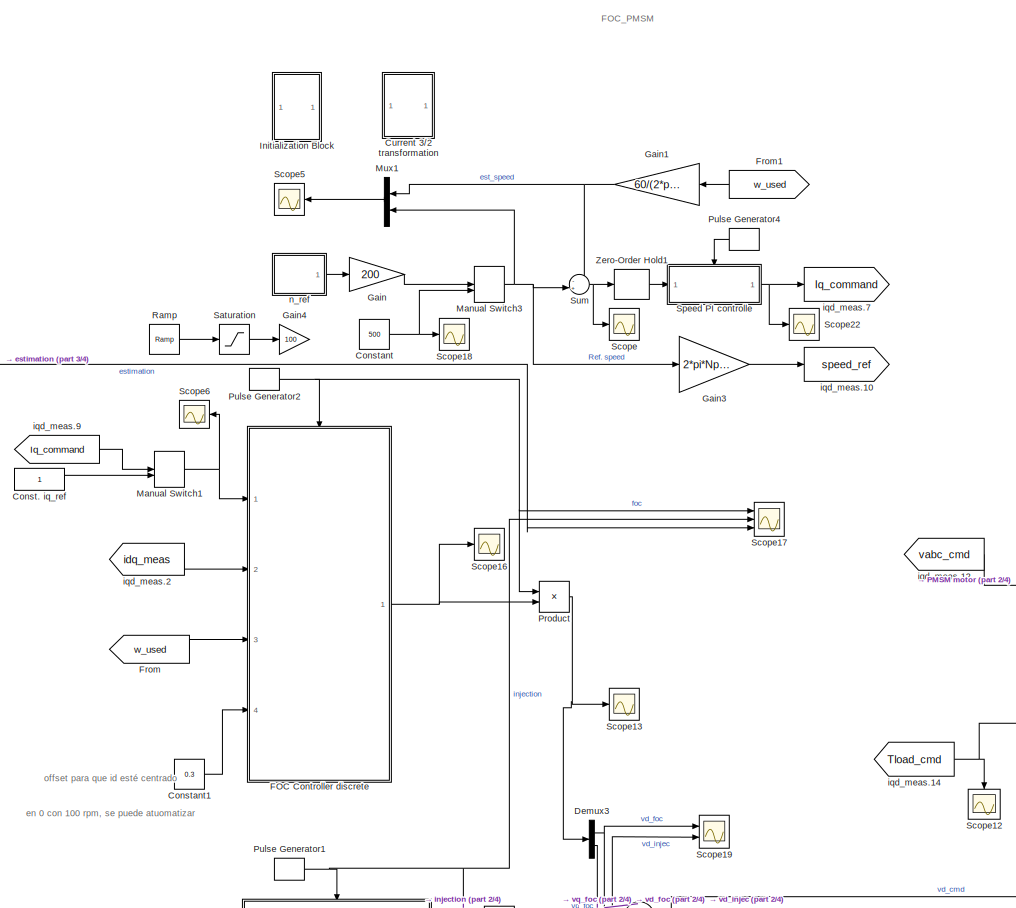
[diagram: root canvas - part 1/4, central region]
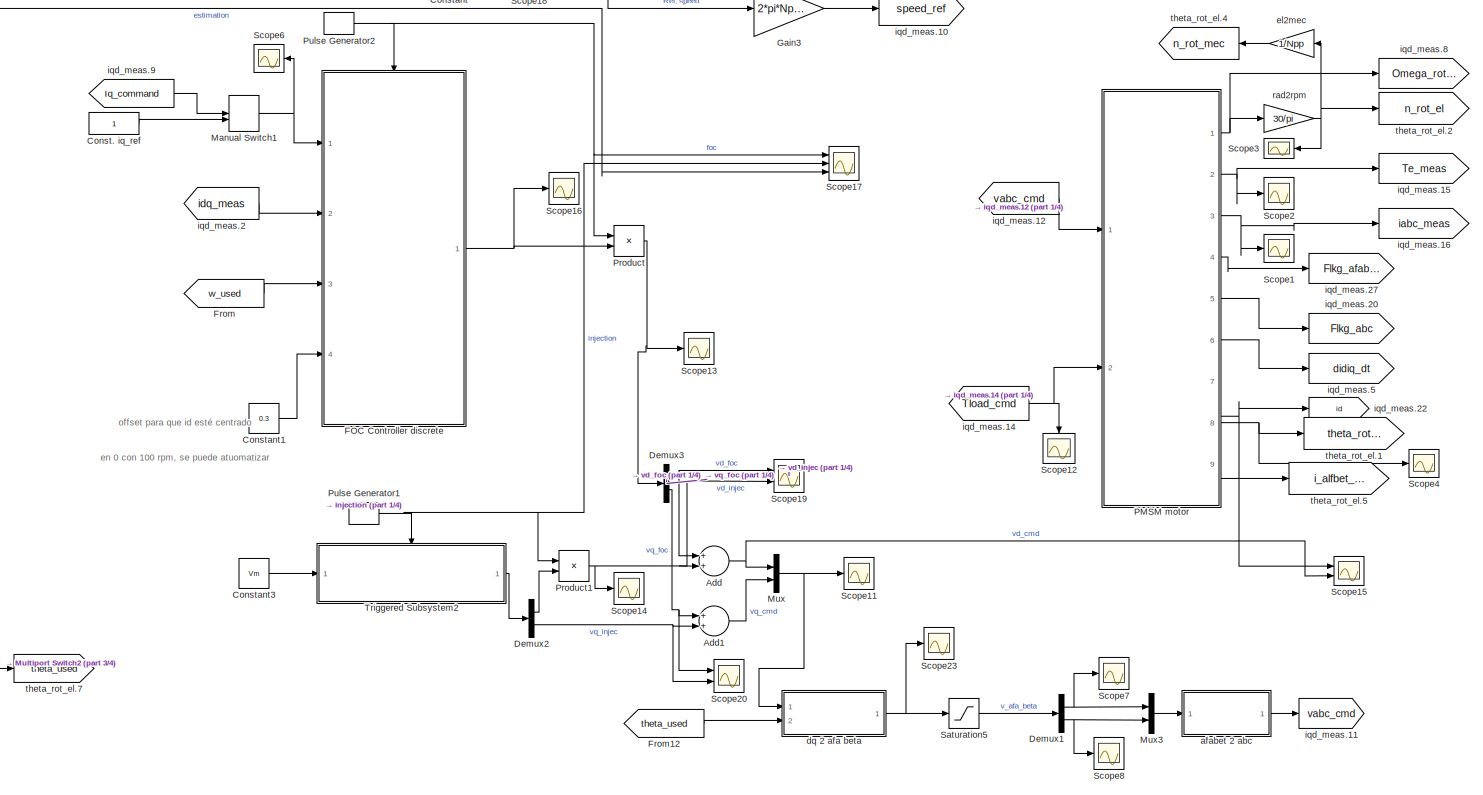
[diagram: root canvas - part 2/4, central region]
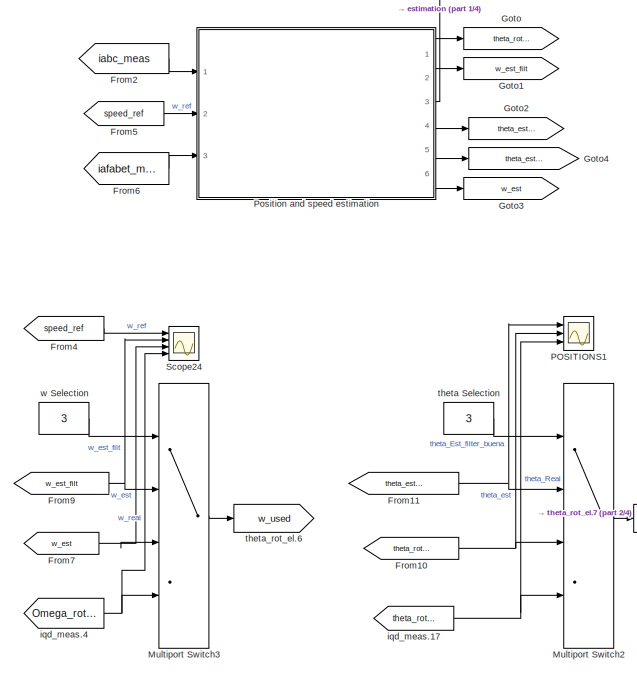
[diagram: root canvas - part 3/4, bottom left region]
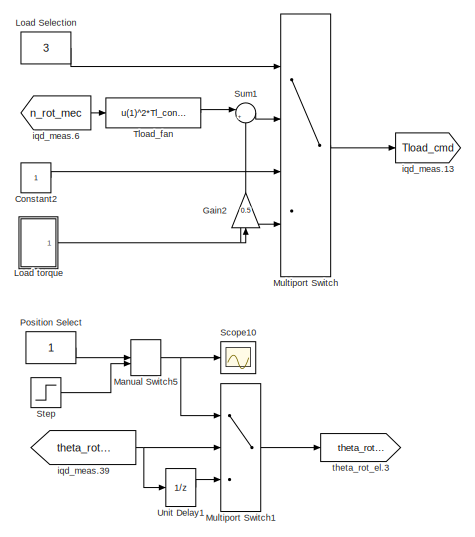
[diagram: root canvas - part 4/4, bottom right region]
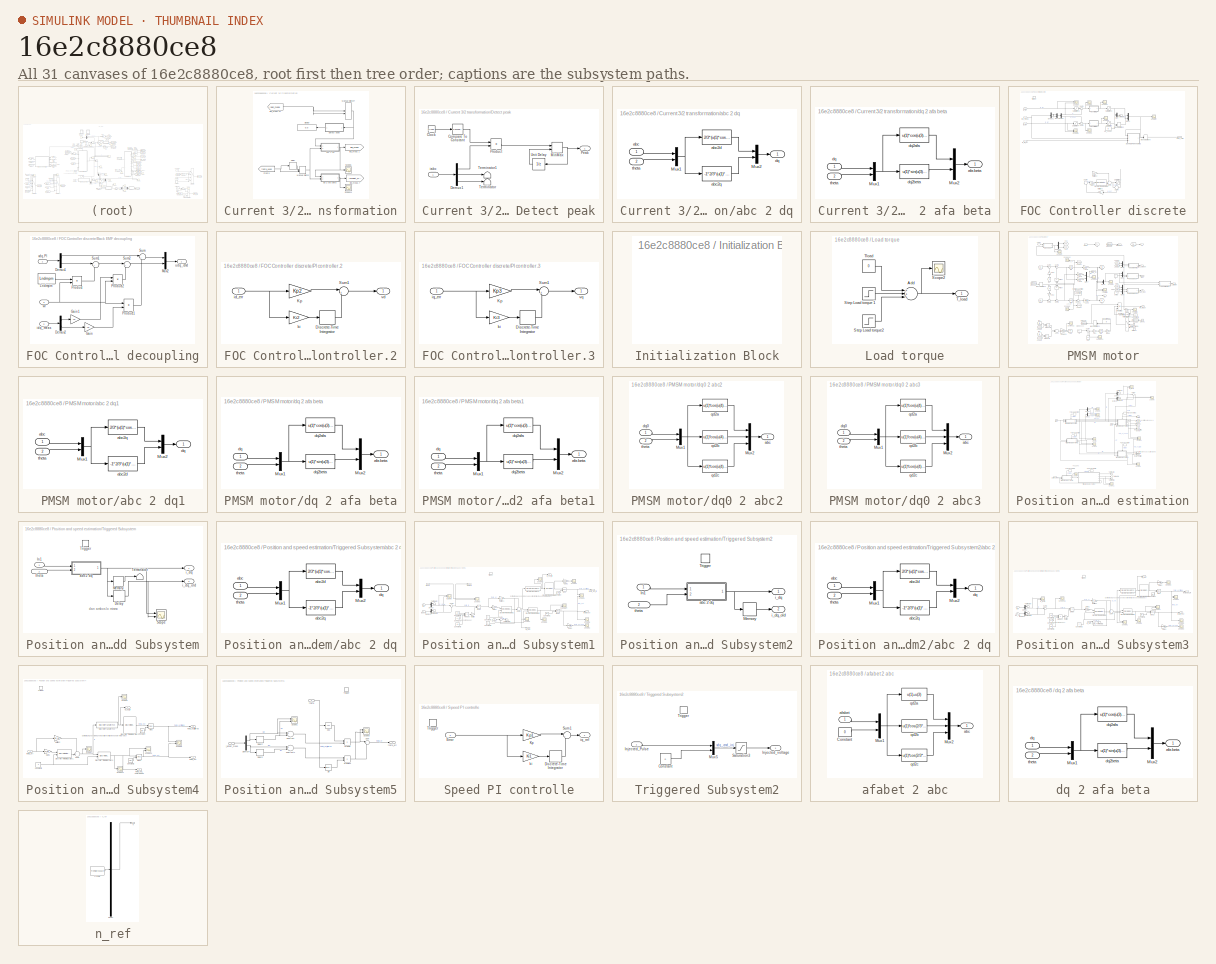
[diagram: thumbnail index - all 31 canvases of the model, root first then tree order]
MODEL slx_16e2c8880ce8
KIND model
CONFIG AbsTol = auto
CONFIG EnableMultiTasking = on
CONFIG FixedStep = 1/fs/4
CONFIG InitFcn = Motor_parameters_Lsrpm7fw
CONFIG MaxStep = 1/fs/2
CONFIG MinStep = auto
CONFIG RelTol = 1e-7
CONFIG SampleTimeConstraint = Unconstrained
CONFIG Solver = VariableStepAuto
CONFIG SolverName = VariableStepAuto
CONFIG StartTime = 0
CONFIG StopTime = 1.5
BLOCK [Sum] Add
  InputSameDT = off
  OutDataTypeStr = Inherit: Inherit via internal rule
  Ports = [2, 1]
  SaturateOnIntegerOverflow = off
BLOCK [Sum] Add1
  InputSameDT = off
  OutDataTypeStr = Inherit: Inherit via internal rule
  Ports = [2, 1]
  SaturateOnIntegerOverflow = off
BLOCK [Constant] Const. iq_ref
BLOCK [Constant] Constant
  Value = 500
BLOCK [Constant] Constant1
  Value = 0.3
BLOCK [Constant] Constant2
BLOCK [Constant] Constant3
  Value = Vm
BLOCK [SubSystem] Current 3//2 transformation
  Ports = []
  RequestExecContextInheritance = off
BLOCK [Delay] Current 3//2 transformation/Delay
  DelayLength = 1
  InputPortMap = u0
  Ports = [1, 1]
BLOCK [SubSystem] Current 3//2 transformation/Detect peak
  Ports = [1, 1]
  RequestExecContextInheritance = off
BLOCK [Clock] Current 3//2 transformation/Detect peak/Clock
BLOCK [Reference] Current 3//2 transformation/Detect peak/Compare To Constant  REF=simulink/Logic and Bit
Operations/Compare
To Constant
  Ports = [1, 1]
  SourceBlock = simulink/Logic and Bit\nOperations/Compare\nTo Constant
  SourceProductBaseCode = SL
  SourceProductName = Simulink
  SourceType = Compare To Constant
BLOCK [Demux] Current 3//2 transformation/Detect peak/Demux1
  DisplayOption = bar
  Outputs = 3
  Ports = [1, 3]
BLOCK [MinMax] Current 3//2 transformation/Detect peak/MinMax
  Function = max
  InputSameDT = off
  Inputs = 2
  Ports = [2, 1]
  SaturateOnIntegerOverflow = off
BLOCK [Outport] Current 3//2 transformation/Detect peak/Peak
  IconDisplay = Port number
  VectorParamsAs1DForOutWhenUnconnected = off
BLOCK [Product] Current 3//2 transformation/Detect peak/Product
  InputSameDT = off
  OutDataTypeStr = Inherit: Inherit via internal rule
  Ports = [2, 1]
  SaturateOnIntegerOverflow = off
BLOCK [Terminator] Current 3//2 transformation/Detect peak/Terminator
BLOCK [Terminator] Current 3//2 transformation/Detect peak/Terminator1
BLOCK [UnitDelay] Current 3//2 transformation/Detect peak/Unit Delay
  HasFrameUpgradeWarning = on
  SampleTime = 1/5e3
BLOCK [Inport] Current 3//2 transformation/Detect peak/iabc
  IconDisplay = Port number
BLOCK [Display] Current 3//2 transformation/Display
  Decimation = 1
  Ports = [1]
BLOCK [From] Current 3//2 transformation/From3
  GotoTag = theta_used
  TagVisibility = global
BLOCK [ManualSwitch] Current 3//2 transformation/Manual Switch
BLOCK [ManualSwitch] Current 3//2 transformation/Manual Switch7
  CurrentSetting = 0
BLOCK [Scope] Current 3//2 transformation/Scope14
  Floating = off
  NumInputPorts = 1
  Ports = [1]
  ScopeSpecificationString = C++SS(StrPVP('Location','[119, 56, 1049, 720]'),StrPVP('Open','off'),MxPVP('AxesTitles',54,'struct(''axes1'',''%<SignalLabel>'')'),StrPVP('ShowLegends','off'),StrPVP('YMin','-5500'),StrPVP('YMax','5500'),StrPVP('SaveName','ScopeData27'),StrPVP('DataFormat','StructureWithTime'),StrPVP('LimitDataPoints','off'),StrPVP('BlockParamSampleTime','0'),StrPVP('Decimation','1'),StrPVP('BlockParamSampleInput'...<+8ch>
BLOCK [Scope] Current 3//2 transformation/Scope6
  Floating = off
  NumInputPorts = 1
  Ports = [1]
  ScopeSpecificationString = C++SS(StrPVP('Location','[533, 264, 1183, 659]'),StrPVP('Open','off'),StrPVP('ZoomMode','xonly'),MxPVP('AxesTitles',54,'struct(''axes1'',''%<SignalLabel>'')'),StrPVP('ShowLegends','off'),StrPVP('SaveName','ScopeData25'),StrPVP('DataFormat','StructureWithTime'),StrPVP('LimitDataPoints','off'),StrPVP('BlockParamSampleTime','0'),StrPVP('Decimation','1'),StrPVP('BlockParamSampleInput','off'))
BLOCK [SubSystem] Current 3//2 transformation/abc 2 dq
  Ports = [2, 1]
  RequestExecContextInheritance = off
BLOCK [Mux] Current 3//2 transformation/abc 2 dq/Mux1
  DisplayOption = bar
  Inputs = 2
  Ports = [2, 1]
BLOCK [Mux] Current 3//2 transformation/abc 2 dq/Mux2
  DisplayOption = bar
  Inputs = 2
  Ports = [2, 1]
BLOCK [Inport] Current 3//2 transformation/abc 2 dq/abc
  IconDisplay = Port number
BLOCK [Fcn] Current 3//2 transformation/abc 2 dq/abc2d
  Expr = 2/3*(u(1)*cos(u(4))+u(2)*cos(u(4)-2*pi/3)+u(3)*cos(u(4)-4*pi/3))
BLOCK [Fcn] Current 3//2 transformation/abc 2 dq/abc2q
  Expr = -1*2/3*(u(1)*sin(u(4))+u(2)*sin(u(4)-2*pi/3)+u(3)*sin(u(4)-4*pi/3))
BLOCK [Outport] Current 3//2 transformation/abc 2 dq/dq
  IconDisplay = Port number
  VectorParamsAs1DForOutWhenUnconnected = off
BLOCK [Inport] Current 3//2 transformation/abc 2 dq/theta
  IconDisplay = Port number
  Port = 2
BLOCK [SubSystem] Current 3//2 transformation/dq 2 afa beta
  Ports = [2, 1]
  RequestExecContextInheritance = off
BLOCK [Mux] Current 3//2 transformation/dq 2 afa beta/Mux1
  DisplayOption = bar
  Inputs = 2
  Ports = [2, 1]
BLOCK [Mux] Current 3//2 transformation/dq 2 afa beta/Mux2
  DisplayOption = bar
  Inputs = 2
  Ports = [2, 1]
BLOCK [Outport] Current 3//2 transformation/dq 2 afa beta/afa beta
  IconDisplay = Port number
  VectorParamsAs1DForOutWhenUnconnected = off
BLOCK [Inport] Current 3//2 transformation/dq 2 afa beta/dq
  IconDisplay = Port number
BLOCK [Fcn] Current 3//2 transformation/dq 2 afa beta/dq2afa
  Expr = u(1)*cos(u(3))-u(2)*sin(u(3))
BLOCK [Fcn] Current 3//2 transformation/dq 2 afa beta/dq2beta
  Expr = u(1)*sin(u(3))+u(2)*cos(u(3))
BLOCK [Inport] Current 3//2 transformation/dq 2 afa beta/theta
  IconDisplay = Port number
  Port = 2
BLOCK [Goto] Current 3//2 transformation/iqd_meas.1
  GotoTag = idq_meas
  TagVisibility = global
BLOCK [From] Current 3//2 transformation/iqd_meas.21
  CloseFcn = tagdialog Close
  GotoTag = iabc_meas
  TagVisibility = global
BLOCK [Goto] Current 3//2 transformation/iqd_meas.7
  GotoTag = iafabet_meas
  TagVisibility = global
BLOCK [Demux] Demux1
  DisplayOption = bar
  Outputs = 2
  Ports = [1, 2]
BLOCK [Demux] Demux2
  DisplayOption = bar
  Outputs = 2
  Ports = [1, 2]
BLOCK [Demux] Demux3
  DisplayOption = bar
  Outputs = 2
  Ports = [1, 2]
BLOCK [SubSystem] FOC Controller discrete
  Ports = [4, 1, 0, 1]
  RequestExecContextInheritance = off
BLOCK [SubSystem] FOC Controller discrete/Back EMF decoupling
  Ports = [3, 1]
  RequestExecContextInheritance = off
BLOCK [Demux] FOC Controller discrete/Back EMF decoupling/Demux1
  DisplayOption = bar
  Outputs = 2
  Ports = [1, 2]
BLOCK [Demux] FOC Controller discrete/Back EMF decoupling/Demux2
  DisplayOption = bar
  Outputs = 2
  Ports = [1, 2]
BLOCK [Gain] FOC Controller discrete/Back EMF decoupling/Gain
  Gain = Lq
  OutDataTypeStr = Inherit: Inherit via internal rule
  ParamDataTypeStr = Inherit: Inherit via internal rule
  SaturateOnIntegerOverflow = off
BLOCK [Gain] FOC Controller discrete/Back EMF decoupling/Gain1
  Gain = Ld
  OutDataTypeStr = Inherit: Inherit via internal rule
  ParamDataTypeStr = Inherit: Inherit via internal rule
  SaturateOnIntegerOverflow = off
BLOCK [Constant] FOC Controller discrete/Back EMF decoupling/Lndmpm
  Value = Lndmpm
BLOCK [Mux] FOC Controller discrete/Back EMF decoupling/Mux2
  DisplayOption = bar
  Inputs = 2
  Ports = [2, 1]
BLOCK [Product] FOC Controller discrete/Back EMF decoupling/Product
  InputSameDT = off
  OutDataTypeStr = Inherit: Inherit via internal rule
  Ports = [2, 1]
  SaturateOnIntegerOverflow = off
BLOCK [Product] FOC Controller discrete/Back EMF decoupling/Product1
  InputSameDT = off
  OutDataTypeStr = Inherit: Inherit via internal rule
  Ports = [2, 1]
  SaturateOnIntegerOverflow = off
BLOCK [Product] FOC Controller discrete/Back EMF decoupling/Product2
  InputSameDT = off
  OutDataTypeStr = Inherit: Inherit via internal rule
  Ports = [2, 1]
  SaturateOnIntegerOverflow = off
BLOCK [Sum] FOC Controller discrete/Back EMF decoupling/Sum
  IconShape = round
  InputSameDT = off
  Inputs = |+-
  OutDataTypeStr = Inherit: Inherit via internal rule
  Ports = [2, 1]
  SaturateOnIntegerOverflow = off
BLOCK [Sum] FOC Controller discrete/Back EMF decoupling/Sum1
  IconShape = round
  InputSameDT = off
  Inputs = |++
  OutDataTypeStr = Inherit: Inherit via internal rule
  Ports = [2, 1]
  SaturateOnIntegerOverflow = off
BLOCK [Sum] FOC Controller discrete/Back EMF decoupling/Sum2
  IconShape = round
  InputSameDT = off
  Inputs = |++
  OutDataTypeStr = Inherit: Inherit via internal rule
  Ports = [2, 1]
  SaturateOnIntegerOverflow = off
BLOCK [Inport] FOC Controller discrete/Back EMF decoupling/idq_meas
  IconDisplay = Port number
  Port = 2
BLOCK [Outport] FOC Controller discrete/Back EMF decoupling/udq_cmd
  IconDisplay = Port number
  VectorParamsAs1DForOutWhenUnconnected = off
BLOCK [Inport] FOC Controller discrete/Back EMF decoupling/vdq,PI
  IconDisplay = Port number
BLOCK [Inport] FOC Controller discrete/Back EMF decoupling/wr
  IconDisplay = Port number
  Port = 3
BLOCK [Demux] FOC Controller discrete/Demux
  DisplayOption = bar
  Outputs = 2
  Ports = [1, 2]
BLOCK [Demux] FOC Controller discrete/Demux1
  DisplayOption = bar
  Outputs = 2
  Ports = [1, 2]
BLOCK [DiscreteIntegrator] FOC Controller discrete/Discrete-Time Integrator4
  ICPrevOutput = DiscIntNeverNeededParam
  ICPrevScaledInput = DiscIntNeverNeededParam
  InitialConditionSetting = Auto
  IntegratorMethod = Integration: Trapezoidal
  Ports = [1, 1]
  SampleTime = -1
  gainval = 1
BLOCK [Gain] FOC Controller discrete/Gain4
  Gain = 10
  OutDataTypeStr = Inherit: Inherit via internal rule
  ParamDataTypeStr = Inherit: Inherit via internal rule
  SaturateOnIntegerOverflow = off
BLOCK [Inport] FOC Controller discrete/Id_ref
  IconDisplay = Port number
  Port = 4
BLOCK [ManualSwitch] FOC Controller discrete/Manual Switch2
BLOCK [ManualSwitch] FOC Controller discrete/Manual Switch6
BLOCK [Gain] FOC Controller discrete/Multiply2
  Gain = 10
  OutDataTypeStr = Inherit: Inherit via internal rule
  ParamDataTypeStr = Inherit: Inherit via internal rule
  SaturateOnIntegerOverflow = off
BLOCK [Gain] FOC Controller discrete/Multiply3
  Gain = 50
  OutDataTypeStr = Inherit: Inherit via internal rule
  ParamDataTypeStr = Inherit: Inherit via internal rule
  SaturateOnIntegerOverflow = off
BLOCK [Mux] FOC Controller discrete/Mux
  DisplayOption = bar
  Inputs = 2
  Ports = [2, 1]
BLOCK [Mux] FOC Controller discrete/Mux3
  DisplayOption = bar
  Inputs = 2
  Ports = [2, 1]
BLOCK [Mux] FOC Controller discrete/Mux4
  DisplayOption = bar
  Inputs = 2
  Ports = [2, 1]
BLOCK [SubSystem] FOC Controller discrete/PI controller.2
  Ports = [1, 1]
  RequestExecContextInheritance = off
BLOCK [DiscreteIntegrator] FOC Controller discrete/PI controller.2/Discrete-Time Integrator
  ICPrevOutput = DiscIntNeverNeededParam
  ICPrevScaledInput = DiscIntNeverNeededParam
  IntegratorMethod = Integration: Trapezoidal
  Ports = [1, 1]
  SampleTime = -1
BLOCK [Gain] FOC Controller discrete/PI controller.2/Kp
  Gain = Kp2
  OutDataTypeStr = Inherit: Inherit via internal rule
  ParamDataTypeStr = Inherit: Inherit via internal rule
  SaturateOnIntegerOverflow = off
BLOCK [Sum] FOC Controller discrete/PI controller.2/Sum1
  IconShape = round
  InputSameDT = off
  Inputs = |++
  OutDataTypeStr = Inherit: Inherit via internal rule
  Ports = [2, 1]
  SaturateOnIntegerOverflow = off
BLOCK [Inport] FOC Controller discrete/PI controller.2/id_err
  IconDisplay = Port number
BLOCK [Gain] FOC Controller discrete/PI controller.2/ki
  Gain = Ki2
  OutDataTypeStr = Inherit: Inherit via internal rule
  ParamDataTypeStr = Inherit: Inherit via internal rule
  SaturateOnIntegerOverflow = off
BLOCK [Outport] FOC Controller discrete/PI controller.2/vd
  IconDisplay = Port number
  VectorParamsAs1DForOutWhenUnconnected = off
BLOCK [SubSystem] FOC Controller discrete/PI controller.3
  Ports = [1, 1]
  RequestExecContextInheritance = off
BLOCK [DiscreteIntegrator] FOC Controller discrete/PI controller.3/Discrete-Time Integrator
  ICPrevOutput = DiscIntNeverNeededParam
  ICPrevScaledInput = DiscIntNeverNeededParam
  IntegratorMethod = Integration: Trapezoidal
  Ports = [1, 1]
  SampleTime = -1
BLOCK [Gain] FOC Controller discrete/PI controller.3/Kp
  Gain = Kp3
  OutDataTypeStr = Inherit: Inherit via internal rule
  ParamDataTypeStr = Inherit: Inherit via internal rule
  SaturateOnIntegerOverflow = off
BLOCK [Sum] FOC Controller discrete/PI controller.3/Sum1
  IconShape = round
  InputSameDT = off
  Inputs = |++
  OutDataTypeStr = Inherit: Inherit via internal rule
  Ports = [2, 1]
  SaturateOnIntegerOverflow = off
BLOCK [Inport] FOC Controller discrete/PI controller.3/iq_err
  IconDisplay = Port number
BLOCK [Gain] FOC Controller discrete/PI controller.3/ki
  Gain = Ki3
  OutDataTypeStr = Inherit: Inherit via internal rule
  ParamDataTypeStr = Inherit: Inherit via internal rule
  SaturateOnIntegerOverflow = off
BLOCK [Outport] FOC Controller discrete/PI controller.3/vq
  IconDisplay = Port number
  VectorParamsAs1DForOutWhenUnconnected = off
BLOCK [Saturate] FOC Controller discrete/Saturation
  InputPortMap = u0
  LowerLimit = -Vph
  Ports = [1, 1]
  UpperLimit = Vph
BLOCK [Saturate] FOC Controller discrete/Saturation1
  InputPortMap = u0
  LowerLimit = -Iphmax
  Ports = [1, 1]
  UpperLimit = Iphmax
BLOCK [Saturate] FOC Controller discrete/Saturation2
  InputPortMap = u0
  LowerLimit = -Vph
  Ports = [1, 1]
  UpperLimit = Vph
BLOCK [Saturate] FOC Controller discrete/Saturation3
  InputPortMap = u0
  Ports = [1, 1]
  UpperLimit = 110*Npp*2*pi/60
BLOCK [Saturate] FOC Controller discrete/Saturation4
  InputPortMap = u0
  LowerLimit = -Iphmax
  Ports = [1, 1]
  UpperLimit = Iphmax
BLOCK [Scope] FOC Controller discrete/Scope1
  Floating = off
  NumInputPorts = 1
  Ports = [1]
  ScopeSpecificationString = Simulink.scopes.TimeScopeBlockCfg('CurrentConfiguration', extmgr.ConfigurationSet(extmgr.Configuration('Core','General UI',true),extmgr.Configuration('Core','Source UI',true),extmgr.Configuration('Sources','WiredSimulink',true,'DataLoggingVariableName','ScopeData18','DataLoggingSaveFormat','StructureWithTime','DataLoggingDecimation','1','DataLoggingDecimateData',true),extmgr.Configuration('Visuals...<+1703ch>
BLOCK [Scope] FOC Controller discrete/Scope2
  Floating = off
  NumInputPorts = 1
  Ports = [1]
  ScopeSpecificationString = Simulink.scopes.TimeScopeBlockCfg('CurrentConfiguration', extmgr.ConfigurationSet(extmgr.Configuration('Core','General UI',true),extmgr.Configuration('Core','Source UI',true),extmgr.Configuration('Sources','WiredSimulink',true,'DataLoggingVariableName','ScopeData20','DataLoggingSaveFormat','StructureWithTime','DataLoggingDecimation','1','DataLoggingDecimateData',true),extmgr.Configuration('Visuals...<+1684ch>
BLOCK [Scope] FOC Controller discrete/Scope3
  Floating = off
  NumInputPorts = 1
  Ports = [1]
  ScopeSpecificationString = Simulink.scopes.TimeScopeBlockCfg('CurrentConfiguration', extmgr.ConfigurationSet(extmgr.Configuration('Core','General UI',true),extmgr.Configuration('Core','Source UI',true),extmgr.Configuration('Sources','WiredSimulink',true,'DataLoggingVariableName','ScopeData21','DataLoggingSaveFormat','StructureWithTime','DataLoggingDecimation','1','DataLoggingDecimateData',true),extmgr.Configuration('Visuals...<+1658ch>
BLOCK [Scope] FOC Controller discrete/Scope4
  Floating = off
  NumInputPorts = 2
  Ports = [2]
  ScopeSpecificationString = Simulink.scopes.TimeScopeBlockCfg('CurrentConfiguration', extmgr.ConfigurationSet(extmgr.Configuration('Core','General UI',true),extmgr.Configuration('Core','Source UI',true),extmgr.Configuration('Sources','WiredSimulink',true,'DataLoggingVariableName','ScopeData5','DataLoggingSaveFormat','StructureWithTime','DataLoggingDecimation','1','DataLoggingDecimateData',true),extmgr.Configuration('Visuals'...<+1789ch>
BLOCK [Scope] FOC Controller discrete/Scope5
  Floating = off
  NumInputPorts = 1
  Ports = [1]
  ScopeSpecificationString = Simulink.scopes.TimeScopeBlockCfg('CurrentConfiguration', extmgr.ConfigurationSet(extmgr.Configuration('Core','General UI',true),extmgr.Configuration('Core','Source UI',true),extmgr.Configuration('Sources','WiredSimulink',true,'DataLoggingVariableName','ScopeData14','DataLoggingSaveFormat','StructureWithTime','DataLoggingDecimation','1','DataLoggingDecimateData',true),extmgr.Configuration('Visuals...<+1643ch>
BLOCK [Scope] FOC Controller discrete/Scope6
  Floating = off
  NumInputPorts = 2
  Ports = [2]
  ScopeSpecificationString = Simulink.scopes.TimeScopeBlockCfg('CurrentConfiguration', extmgr.ConfigurationSet(extmgr.Configuration('Core','General UI',true),extmgr.Configuration('Core','Source UI',true),extmgr.Configuration('Sources','WiredSimulink',true,'DataLoggingVariableName','ScopeData8','DataLoggingSaveFormat','StructureWithTime','DataLoggingDecimation','1','DataLoggingDecimateData',true),extmgr.Configuration('Visuals'...<+1773ch>
BLOCK [Scope] FOC Controller discrete/Scope7
  Floating = off
  NumInputPorts = 1
  Ports = [1]
  ScopeSpecificationString = Simulink.scopes.TimeScopeBlockCfg('CurrentConfiguration', extmgr.ConfigurationSet(extmgr.Configuration('Core','General UI',true),extmgr.Configuration('Core','Source UI',true),extmgr.Configuration('Sources','WiredSimulink',true,'DataLoggingVariableName','ScopeData30','DataLoggingSaveFormat','StructureWithTime','DataLoggingDecimation','1','DataLoggingDecimateData',true),extmgr.Configuration('Visuals...<+1722ch>
BLOCK [Sum] FOC Controller discrete/Sum1
  IconShape = round
  InputSameDT = off
  Inputs = |+-
  OutDataTypeStr = Inherit: Inherit via internal rule
  Ports = [2, 1]
  SaturateOnIntegerOverflow = off
BLOCK [Sum] FOC Controller discrete/Sum2
  IconShape = round
  InputSameDT = off
  Inputs = -+|
  OutDataTypeStr = Inherit: Inherit via internal rule
  Ports = [2, 1]
  SaturateOnIntegerOverflow = off
BLOCK [Sum] FOC Controller discrete/Sum3
  IconShape = round
  InputSameDT = off
  Inputs = ++|
  OutDataTypeStr = Inherit: Inherit via internal rule
  Ports = [2, 1]
  SaturateOnIntegerOverflow = off
BLOCK [Sum] FOC Controller discrete/Sum5
  IconShape = round
  InputSameDT = off
  Inputs = +|-
  OutDataTypeStr = Inherit: Inherit via internal rule
  Ports = [2, 1]
  SaturateOnIntegerOverflow = off
BLOCK [Sum] FOC Controller discrete/Sum6
  IconShape = round
  InputSameDT = off
  Inputs = |++
  OutDataTypeStr = Inherit: Inherit via internal rule
  Ports = [2, 1]
  SaturateOnIntegerOverflow = off
BLOCK [Terminator] FOC Controller discrete/Terminator
BLOCK [TriggerPort] FOC Controller discrete/Trigger
  Ports = []
  StatesWhenEnabling = held
  VariantControl = (inherit)
BLOCK [Inport] FOC Controller discrete/idq_meas
  IconDisplay = Port number
  Port = 2
BLOCK [Inport] FOC Controller discrete/iq_ref
  IconDisplay = Port number
BLOCK [Constant] FOC Controller discrete/ud_const
  Value = 0
BLOCK [Outport] FOC Controller discrete/udq_cmd
  IconDisplay = Port number
  VectorParamsAs1DForOutWhenUnconnected = off
BLOCK [Inport] FOC Controller discrete/w_rot_el
  IconDisplay = Port number
  Port = 3
BLOCK [From] From
  GotoTag = w_used
  TagVisibility = global
BLOCK [From] From1
  GotoTag = w_used
  TagVisibility = global
BLOCK [From] From10
  GotoTag = theta_rot_est
  TagVisibility = global
BLOCK [From] From11
  GotoTag = theta_est_filter_buena
  TagVisibility = global
BLOCK [From] From12
  GotoTag = theta_used
  TagVisibility = global
BLOCK [From] From2
  GotoTag = iabc_meas
  TagVisibility = global
BLOCK [From] From4
  GotoTag = speed_ref
BLOCK [From] From5
  GotoTag = speed_ref
BLOCK [From] From6
  GotoTag = iafabet_meas
  TagVisibility = global
BLOCK [From] From7
  GotoTag = w_est
BLOCK [From] From9
  GotoTag = w_est_filt
BLOCK [Gain] Gain
  Gain = 200
  OutDataTypeStr = Inherit: Inherit via internal rule
  ParamDataTypeStr = Inherit: Inherit via internal rule
  SaturateOnIntegerOverflow = off
BLOCK [Gain] Gain1
  Gain = 60/(2*pi*Npp)
  OutDataTypeStr = Inherit: Inherit via internal rule
  ParamDataTypeStr = Inherit: Inherit via internal rule
  SaturateOnIntegerOverflow = off
BLOCK [Gain] Gain2
  Gain = 0.5
  OutDataTypeStr = Inherit: Inherit via internal rule
  ParamDataTypeStr = Inherit: Inherit via internal rule
  SaturateOnIntegerOverflow = off
BLOCK [Gain] Gain3
  Gain = 2*pi*Npp/60
  OutDataTypeStr = Inherit: Inherit via internal rule
  ParamDataTypeStr = Inherit: Inherit via internal rule
  SaturateOnIntegerOverflow = off
BLOCK [Gain] Gain4
  Commented = on
  Gain = 100
  OutDataTypeStr = Inherit: Inherit via internal rule
  ParamDataTypeStr = Inherit: Inherit via internal rule
  SaturateOnIntegerOverflow = off
BLOCK [Goto] Goto
  GotoTag = theta_rot_est
  TagVisibility = global
BLOCK [Goto] Goto1
  GotoTag = w_est_filt
BLOCK [Goto] Goto2
  GotoTag = theta_est_filtered
BLOCK [Goto] Goto3
  GotoTag = w_est
BLOCK [Goto] Goto4
  GotoTag = theta_est_filter_buena
  TagVisibility = global
BLOCK [SubSystem] Initialization Block
  Ports = []
  RequestExecContextInheritance = off
BLOCK [Constant] Load Selection
  Value = 3
BLOCK [SubSystem] Load torque
  Ports = [0, 1]
  RequestExecContextInheritance = off
BLOCK [Sum] Load torque/Add
  InputSameDT = off
  Inputs = +++
  OutDataTypeStr = Inherit: Inherit via internal rule
  Ports = [3, 1]
  SaturateOnIntegerOverflow = off
BLOCK [Scope] Load torque/Scope2
  Floating = off
  NumInputPorts = 1
  Ports = [1]
  ScopeSpecificationString = Simulink.scopes.TimeScopeBlockCfg('CurrentConfiguration', extmgr.ConfigurationSet(extmgr.Configuration('Core','General UI',true),extmgr.Configuration('Core','Source UI',true),extmgr.Configuration('Sources','WiredSimulink',true,'DataLoggingVariableName','ScopeData17','DataLoggingSaveFormat','StructureWithTime','DataLoggingDecimation','1','DataLoggingDecimateData',true),extmgr.Configuration('Visuals...<+1610ch>
BLOCK [Step] Load torque/Step Load torque 1
  After = Trat
  SampleTime = 0
  Time = 0.5
BLOCK [Step] Load torque/Step Load torque2
  After = -Trat/2
  SampleTime = 0
BLOCK [Outport] Load torque/T_load
  IconDisplay = Port number
  VectorParamsAs1DForOutWhenUnconnected = off
BLOCK [Constant] Load torque/Tload
  Value = 0
BLOCK [ManualSwitch] Manual Switch1
BLOCK [ManualSwitch] Manual Switch3
  CurrentSetting = 0
BLOCK [ManualSwitch] Manual Switch5
BLOCK [MultiPortSwitch] Multiport Switch
  InputSameDT = off
  Ports = [4, 1]
  SaturateOnIntegerOverflow = off
BLOCK [MultiPortSwitch] Multiport Switch1
  InputSameDT = off
  Inputs = 2
  Ports = [3, 1]
  SaturateOnIntegerOverflow = off
BLOCK [MultiPortSwitch] Multiport Switch2
  InputSameDT = off
  Ports = [4, 1]
  SaturateOnIntegerOverflow = off
BLOCK [MultiPortSwitch] Multiport Switch3
  InputSameDT = off
  Ports = [4, 1]
  SaturateOnIntegerOverflow = off
BLOCK [Mux] Mux
  DisplayOption = bar
  Inputs = 2
  Ports = [2, 1]
BLOCK [Mux] Mux1
  DisplayOption = bar
  Inputs = 2
  Ports = [2, 1]
BLOCK [Mux] Mux3
  DisplayOption = bar
  Inputs = 2
  Ports = [2, 1]
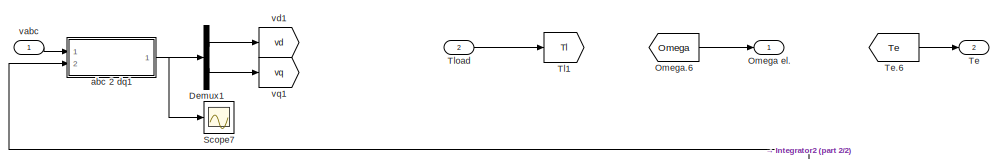
[diagram: PMSM motor - part 1/2, full width, top band]
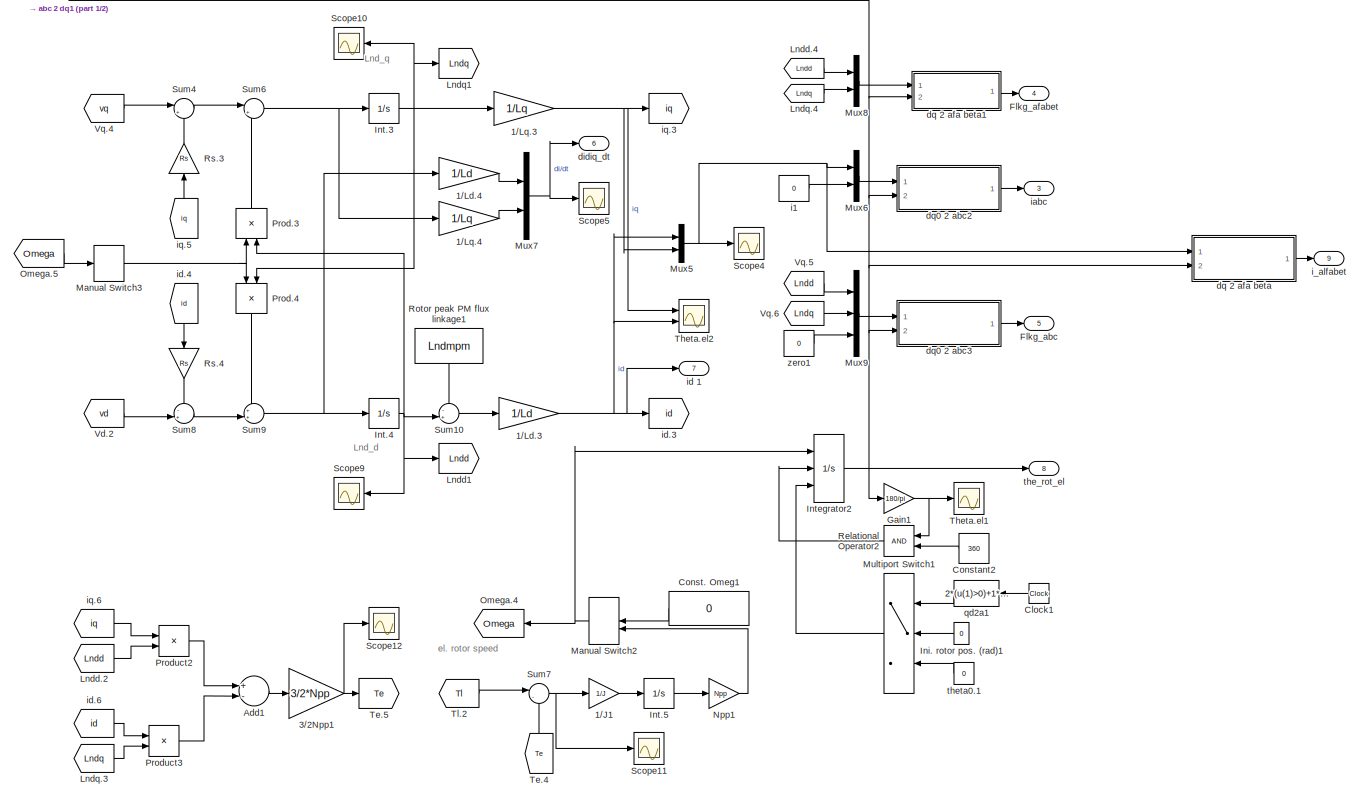
[diagram: PMSM motor - part 2/2, most of the canvas]
BLOCK [SubSystem] PMSM motor
  Ports = [2, 9]
  RequestExecContextInheritance = off
BLOCK [Gain] PMSM motor/1//J1
  Gain = 1/J
  OutDataTypeStr = Inherit: Inherit via internal rule
  ParamDataTypeStr = Inherit: Inherit via internal rule
  SaturateOnIntegerOverflow = off
BLOCK [Gain] PMSM motor/1//Ld.3
  Gain = 1/Ld
  OutDataTypeStr = Inherit: Inherit via internal rule
  ParamDataTypeStr = Inherit: Inherit via internal rule
  SaturateOnIntegerOverflow = off
BLOCK [Gain] PMSM motor/1//Ld.4
  Gain = 1/Ld
  OutDataTypeStr = Inherit: Inherit via internal rule
  ParamDataTypeStr = Inherit: Inherit via internal rule
  SaturateOnIntegerOverflow = off
BLOCK [Gain] PMSM motor/1//Lq.3
  Gain = 1/Lq
  OutDataTypeStr = Inherit: Inherit via internal rule
  ParamDataTypeStr = Inherit: Inherit via internal rule
  SaturateOnIntegerOverflow = off
BLOCK [Gain] PMSM motor/1//Lq.4
  Gain = 1/Lq
  OutDataTypeStr = Inherit: Inherit via internal rule
  ParamDataTypeStr = Inherit: Inherit via internal rule
  SaturateOnIntegerOverflow = off
BLOCK [Gain] PMSM motor/3//2Npp1
  Gain = 3/2*Npp
  OutDataTypeStr = Inherit: Inherit via internal rule
  ParamDataTypeStr = Inherit: Inherit via internal rule
  SaturateOnIntegerOverflow = off
BLOCK [Sum] PMSM motor/Add1
  InputSameDT = off
  Inputs = +-
  OutDataTypeStr = Inherit: Inherit via internal rule
  Ports = [2, 1]
  SaturateOnIntegerOverflow = off
BLOCK [Clock] PMSM motor/Clock1
BLOCK [Constant] PMSM motor/Const. Omeg1
  Value = 0
BLOCK [Constant] PMSM motor/Constant2
  Value = 360
BLOCK [Demux] PMSM motor/Demux1
  DisplayOption = bar
  Outputs = 2
  Ports = [1, 2]
BLOCK [Outport] PMSM motor/Flkg_abc
  IconDisplay = Port number
  Port = 5
  VectorParamsAs1DForOutWhenUnconnected = off
BLOCK [Outport] PMSM motor/Flkg_afabet
  IconDisplay = Port number
  Port = 4
  VectorParamsAs1DForOutWhenUnconnected = off
BLOCK [Gain] PMSM motor/Gain1
  Gain = 180/pi
  OutDataTypeStr = Inherit: Inherit via internal rule
  ParamDataTypeStr = Inherit: Inherit via internal rule
  SaturateOnIntegerOverflow = off
BLOCK [Constant] PMSM motor/Ini. rotor pos. (rad)1
  Value = 0
BLOCK [Integrator] PMSM motor/Int.3
  Ports = [1, 1]
BLOCK [Integrator] PMSM motor/Int.4
  InitialCondition = Lndd_ini
  Ports = [1, 1]
BLOCK [Integrator] PMSM motor/Int.5
  InitialCondition = Omegae_ini/Npp
  Ports = [1, 1]
BLOCK [Integrator] PMSM motor/Integrator2
  ExternalReset = rising
  InitialCondition = pi/3
  InitialConditionSource = external
  Ports = [3, 1]
BLOCK [From] PMSM motor/Lndd.2
  CloseFcn = tagdialog Close
  GotoTag = Lndd
BLOCK [From] PMSM motor/Lndd.4
  CloseFcn = tagdialog Close
  GotoTag = Lndd
BLOCK [Goto] PMSM motor/Lndd1
  GotoTag = Lndd
BLOCK [From] PMSM motor/Lndq.3
  CloseFcn = tagdialog Close
  GotoTag = Lndq
BLOCK [From] PMSM motor/Lndq.4
  CloseFcn = tagdialog Close
  GotoTag = Lndq
BLOCK [Goto] PMSM motor/Lndq1
  GotoTag = Lndq
BLOCK [ManualSwitch] PMSM motor/Manual Switch2
  CurrentSetting = 0
BLOCK [ManualSwitch] PMSM motor/Manual Switch3
BLOCK [MultiPortSwitch] PMSM motor/Multiport Switch1
  InputSameDT = off
  Inputs = 2
  Ports = [3, 1]
  SaturateOnIntegerOverflow = off
BLOCK [Mux] PMSM motor/Mux5
  DisplayOption = bar
  Inputs = 2
  Ports = [2, 1]
BLOCK [Mux] PMSM motor/Mux6
  DisplayOption = bar
  Inputs = 2
  Ports = [2, 1]
BLOCK [Mux] PMSM motor/Mux7
  DisplayOption = bar
  Inputs = 2
  Ports = [2, 1]
BLOCK [Mux] PMSM motor/Mux8
  DisplayOption = bar
  Inputs = 2
  Ports = [2, 1]
BLOCK [Mux] PMSM motor/Mux9
  DisplayOption = bar
  Inputs = 3
  Ports = [3, 1]
BLOCK [Gain] PMSM motor/Npp1
  Gain = Npp
  OutDataTypeStr = Inherit: Inherit via internal rule
  ParamDataTypeStr = Inherit: Inherit via internal rule
  SaturateOnIntegerOverflow = off
BLOCK [Outport] PMSM motor/Omega el.
  IconDisplay = Port number
  VectorParamsAs1DForOutWhenUnconnected = off
BLOCK [Goto] PMSM motor/Omega.4
  GotoTag = Omega
BLOCK [From] PMSM motor/Omega.5
  CloseFcn = tagdialog Close
  GotoTag = Omega
BLOCK [From] PMSM motor/Omega.6
  CloseFcn = tagdialog Close
  GotoTag = Omega
BLOCK [Product] PMSM motor/Prod.3
  InputSameDT = off
  OutDataTypeStr = Inherit: Inherit via internal rule
  Ports = [2, 1]
  SaturateOnIntegerOverflow = off
BLOCK [Product] PMSM motor/Prod.4
  InputSameDT = off
  OutDataTypeStr = Inherit: Inherit via internal rule
  Ports = [2, 1]
  SaturateOnIntegerOverflow = off
BLOCK [Product] PMSM motor/Product2
  InputSameDT = off
  OutDataTypeStr = Inherit: Inherit via internal rule
  Ports = [2, 1]
  SaturateOnIntegerOverflow = off
BLOCK [Product] PMSM motor/Product3
  InputSameDT = off
  OutDataTypeStr = Inherit: Inherit via internal rule
  Ports = [2, 1]
  SaturateOnIntegerOverflow = off
BLOCK [RelationalOperator] PMSM motor/Relational Operator2
  InputSameDT = off
  OutDataTypeStr = boolean
  Ports = [2, 1]
BLOCK [Constant] PMSM motor/Rotor peak PM flux linkage1
  Value = Lndmpm
BLOCK [Gain] PMSM motor/Rs.3
  Gain = Rs
  OutDataTypeStr = Inherit: Inherit via internal rule
  ParamDataTypeStr = Inherit: Inherit via internal rule
  SaturateOnIntegerOverflow = off
BLOCK [Gain] PMSM motor/Rs.4
  Gain = Rs
  OutDataTypeStr = Inherit: Inherit via internal rule
  ParamDataTypeStr = Inherit: Inherit via internal rule
  SaturateOnIntegerOverflow = off
BLOCK [Scope] PMSM motor/Scope10
  Floating = off
  NumInputPorts = 1
  Ports = [1]
  ScopeSpecificationString = Simulink.scopes.TimeScopeBlockCfg('CurrentConfiguration', extmgr.ConfigurationSet(extmgr.Configuration('Core','General UI',true),extmgr.Configuration('Core','Source UI',true),extmgr.Configuration('Sources','WiredSimulink',true,'DataLoggingVariableName','ScopeData1','DataLoggingSaveFormat','StructureWithTime','DataLoggingDecimation','1','DataLoggingDecimateData',true),extmgr.Configuration('Visuals'...<+1652ch>
BLOCK [Scope] PMSM motor/Scope11
  Floating = off
  NumInputPorts = 1
  Ports = [1]
  ScopeSpecificationString = Simulink.scopes.TimeScopeBlockCfg('CurrentConfiguration', extmgr.ConfigurationSet(extmgr.Configuration('Core','General UI',true),extmgr.Configuration('Core','Source UI',true),extmgr.Configuration('Sources','WiredSimulink',true,'DataLoggingVariableName','ScopeData7'),extmgr.Configuration('Visuals','Time Domain',true,'SerializedDisplays',{struct('MinYLimReal','-1.49601','MaxYLimReal','3.46407','YLab...<+1409ch>
BLOCK [Scope] PMSM motor/Scope12
  Floating = off
  NumInputPorts = 1
  Ports = [1]
  ScopeSpecificationString = Simulink.scopes.TimeScopeBlockCfg('CurrentConfiguration', extmgr.ConfigurationSet(extmgr.Configuration('Core','General UI',true),extmgr.Configuration('Core','Source UI',true),extmgr.Configuration('Sources','WiredSimulink',true,'DataLoggingVariableName','ScopeData8'),extmgr.Configuration('Visuals','Time Domain',true,'SerializedDisplays',{struct('MinYLimReal','-1.49601','MaxYLimReal','3.46407','YLab...<+1436ch>
BLOCK [Scope] PMSM motor/Scope4
  Floating = off
  NumInputPorts = 1
  Ports = [1]
  ScopeSpecificationString = Simulink.scopes.TimeScopeBlockCfg('CurrentConfiguration', extmgr.ConfigurationSet(extmgr.Configuration('Core','General UI',true),extmgr.Configuration('Core','Source UI',true),extmgr.Configuration('Sources','WiredSimulink',true,'DataLoggingVariableName','ScopeData2','DataLoggingSaveFormat','StructureWithTime','DataLoggingDecimation','1','DataLoggingDecimateData',true),extmgr.Configuration('Visuals'...<+1740ch>
BLOCK [Scope] PMSM motor/Scope5
  Floating = off
  NumInputPorts = 1
  Ports = [1]
  ScopeSpecificationString = Simulink.scopes.TimeScopeBlockCfg('CurrentConfiguration', extmgr.ConfigurationSet(extmgr.Configuration('Core','General UI',true),extmgr.Configuration('Core','Source UI',true),extmgr.Configuration('Sources','WiredSimulink',true,'DataLoggingVariableName','ScopeData3','DataLoggingSaveFormat','StructureWithTime','DataLoggingDecimation','1','DataLoggingDecimateData',true),extmgr.Configuration('Visuals'...<+1646ch>
BLOCK [Scope] PMSM motor/Scope7
  Floating = off
  NumInputPorts = 1
  Ports = [1]
  ScopeSpecificationString = Simulink.scopes.TimeScopeBlockCfg('CurrentConfiguration', extmgr.ConfigurationSet(extmgr.Configuration('Core','General UI',true),extmgr.Configuration('Core','Source UI',true),extmgr.Configuration('Sources','WiredSimulink',true,'DataLoggingVariableName','ScopeData4','DataLoggingSaveFormat','StructureWithTime','DataLoggingDecimation','1','DataLoggingDecimateData',true),extmgr.Configuration('Visuals'...<+1722ch>
BLOCK [Scope] PMSM motor/Scope9
  Floating = off
  NumInputPorts = 1
  Ports = [1]
  ScopeSpecificationString = Simulink.scopes.TimeScopeBlockCfg('CurrentConfiguration', extmgr.ConfigurationSet(extmgr.Configuration('Core','General UI',true),extmgr.Configuration('Core','Source UI',true),extmgr.Configuration('Sources','WiredSimulink',true,'DataLoggingVariableName','ScopeData5','DataLoggingSaveFormat','StructureWithTime','DataLoggingDecimation','1','DataLoggingDecimateData',true),extmgr.Configuration('Visuals'...<+1737ch>
BLOCK [Sum] PMSM motor/Sum10
  IconShape = round
  InputSameDT = off
  Inputs = -+|
  OutDataTypeStr = Inherit: Inherit via internal rule
  Ports = [2, 1]
  SaturateOnIntegerOverflow = off
BLOCK [Sum] PMSM motor/Sum4
  IconShape = round
  InputSameDT = off
  Inputs = |+-
  OutDataTypeStr = Inherit: Inherit via internal rule
  Ports = [2, 1]
  SaturateOnIntegerOverflow = off
BLOCK [Sum] PMSM motor/Sum6
  IconShape = round
  InputSameDT = off
  Inputs = |+-
  OutDataTypeStr = Inherit: Inherit via internal rule
  Ports = [2, 1]
  SaturateOnIntegerOverflow = off
BLOCK [Sum] PMSM motor/Sum7
  IconShape = round
  InputSameDT = off
  Inputs = |-+
  OutDataTypeStr = Inherit: Inherit via internal rule
  Ports = [2, 1]
  SaturateOnIntegerOverflow = off
BLOCK [Sum] PMSM motor/Sum8
  IconShape = round
  InputSameDT = off
  Inputs = -+|
  OutDataTypeStr = Inherit: Inherit via internal rule
  Ports = [2, 1]
  SaturateOnIntegerOverflow = off
BLOCK [Sum] PMSM motor/Sum9
  IconShape = round
  InputSameDT = off
  Inputs = ++|
  OutDataTypeStr = Inherit: Inherit via internal rule
  Ports = [2, 1]
  SaturateOnIntegerOverflow = off
BLOCK [Outport] PMSM motor/Te
  IconDisplay = Port number
  Port = 2
  VectorParamsAs1DForOutWhenUnconnected = off
BLOCK [From] PMSM motor/Te.4
  CloseFcn = tagdialog Close
  GotoTag = Te
BLOCK [Goto] PMSM motor/Te.5
  GotoTag = Te
BLOCK [From] PMSM motor/Te.6
  CloseFcn = tagdialog Close
  GotoTag = Te
BLOCK [Scope] PMSM motor/Theta.el1
  Floating = off
  NumInputPorts = 1
  Ports = [1]
  ScopeSpecificationString = Simulink.scopes.TimeScopeBlockCfg('CurrentConfiguration', extmgr.ConfigurationSet(extmgr.Configuration('Core','General UI',true),extmgr.Configuration('Core','Source UI',true),extmgr.Configuration('Sources','WiredSimulink',true,'DataLoggingSaveFormat','StructureWithTime','DataLoggingLimitDataPoints',true,'DataLoggingDecimation','1','DataLoggingDecimateData',true,'DataLoggingVariableName','ScopeData...<+1633ch>
BLOCK [Scope] PMSM motor/Theta.el2
  Floating = off
  NumInputPorts = 2
  Ports = [2]
  ScopeSpecificationString = Simulink.scopes.TimeScopeBlockCfg('CurrentConfiguration', extmgr.ConfigurationSet(extmgr.Configuration('Core','General UI',true),extmgr.Configuration('Core','Source UI',true),extmgr.Configuration('Sources','WiredSimulink',true,'DataLoggingSaveFormat','StructureWithTime','DataLoggingLimitDataPoints',true,'DataLoggingDecimation','1','DataLoggingDecimateData',true,'DataLoggingVariableName','ScopeData...<+1757ch>
BLOCK [From] PMSM motor/Tl.2
  CloseFcn = tagdialog Close
  GotoTag = Tl
BLOCK [Goto] PMSM motor/Tl1
  GotoTag = Tl
BLOCK [Inport] PMSM motor/Tload
  IconDisplay = Port number
  Port = 2
BLOCK [From] PMSM motor/Vd.2
  CloseFcn = tagdialog Close
  GotoTag = vd
BLOCK [From] PMSM motor/Vq.4
  CloseFcn = tagdialog Close
  GotoTag = vq
BLOCK [From] PMSM motor/Vq.5
  CloseFcn = tagdialog Close
  GotoTag = Lndd
BLOCK [From] PMSM motor/Vq.6
  CloseFcn = tagdialog Close
  GotoTag = Lndq
BLOCK [SubSystem] PMSM motor/abc 2 dq1
  Ports = [2, 1]
  RequestExecContextInheritance = off
BLOCK [Mux] PMSM motor/abc 2 dq1/Mux1
  DisplayOption = bar
  Inputs = 2
  Ports = [2, 1]
BLOCK [Mux] PMSM motor/abc 2 dq1/Mux2
  DisplayOption = bar
  Inputs = 2
  Ports = [2, 1]
BLOCK [Inport] PMSM motor/abc 2 dq1/abc
  IconDisplay = Port number
BLOCK [Fcn] PMSM motor/abc 2 dq1/abc2d
  Expr = -1*2/3*(u(1)*sin(u(4))+u(2)*sin(u(4)-2*pi/3)+u(3)*sin(u(4)-4*pi/3))
BLOCK [Fcn] PMSM motor/abc 2 dq1/abc2q
  Expr = 2/3*(u(1)*cos(u(4))+u(2)*cos(u(4)-2*pi/3)+u(3)*cos(u(4)-4*pi/3))
BLOCK [Outport] PMSM motor/abc 2 dq1/dq
  IconDisplay = Port number
  VectorParamsAs1DForOutWhenUnconnected = off
BLOCK [Inport] PMSM motor/abc 2 dq1/theta
  IconDisplay = Port number
  Port = 2
BLOCK [Outport] PMSM motor/didiq_dt
  IconDisplay = Port number
  Port = 6
  VectorParamsAs1DForOutWhenUnconnected = off
BLOCK [SubSystem] PMSM motor/dq 2 afa beta
  Ports = [2, 1]
  RequestExecContextInheritance = off
BLOCK [Mux] PMSM motor/dq 2 afa beta/Mux1
  DisplayOption = bar
  Inputs = 2
  Ports = [2, 1]
BLOCK [Mux] PMSM motor/dq 2 afa beta/Mux2
  DisplayOption = bar
  Inputs = 2
  Ports = [2, 1]
BLOCK [Outport] PMSM motor/dq 2 afa beta/afa beta
  IconDisplay = Port number
  VectorParamsAs1DForOutWhenUnconnected = off
BLOCK [Inport] PMSM motor/dq 2 afa beta/dq
  IconDisplay = Port number
BLOCK [Fcn] PMSM motor/dq 2 afa beta/dq2afa
  Expr = u(1)*cos(u(3))-u(2)*sin(u(3))
BLOCK [Fcn] PMSM motor/dq 2 afa beta/dq2beta
  Expr = u(1)*sin(u(3))+u(2)*cos(u(3))
BLOCK [Inport] PMSM motor/dq 2 afa beta/theta
  IconDisplay = Port number
  Port = 2
BLOCK [SubSystem] PMSM motor/dq 2 afa beta1
  Ports = [2, 1]
  RequestExecContextInheritance = off
BLOCK [Mux] PMSM motor/dq 2 afa beta1/Mux1
  DisplayOption = bar
  Inputs = 2
  Ports = [2, 1]
BLOCK [Mux] PMSM motor/dq 2 afa beta1/Mux2
  DisplayOption = bar
  Inputs = 2
  Ports = [2, 1]
BLOCK [Outport] PMSM motor/dq 2 afa beta1/afa beta
  IconDisplay = Port number
  VectorParamsAs1DForOutWhenUnconnected = off
BLOCK [Inport] PMSM motor/dq 2 afa beta1/dq
  IconDisplay = Port number
BLOCK [Fcn] PMSM motor/dq 2 afa beta1/dq2afa
  Expr = u(1)*cos(u(3))-u(2)*sin(u(3))
BLOCK [Fcn] PMSM motor/dq 2 afa beta1/dq2beta
  Expr = u(1)*sin(u(3))+u(2)*cos(u(3))
BLOCK [Inport] PMSM motor/dq 2 afa beta1/theta
  IconDisplay = Port number
  Port = 2
BLOCK [SubSystem] PMSM motor/dq0 2 abc2
  Ports = [2, 1]
  RequestExecContextInheritance = off
BLOCK [Mux] PMSM motor/dq0 2 abc2/Mux1
  DisplayOption = bar
  Inputs = 2
  Ports = [2, 1]
BLOCK [Mux] PMSM motor/dq0 2 abc2/Mux2
  DisplayOption = bar
  Inputs = 3
  Ports = [3, 1]
BLOCK [Outport] PMSM motor/dq0 2 abc2/abc
  IconDisplay = Port number
  VectorParamsAs1DForOutWhenUnconnected = off
BLOCK [Inport] PMSM motor/dq0 2 abc2/dq0
  IconDisplay = Port number
BLOCK [Fcn] PMSM motor/dq0 2 abc2/qd2a
  Expr = u(1)*cos(u(4))-u(2)*sin(u(4))+u(3)
BLOCK [Fcn] PMSM motor/dq0 2 abc2/qd2b
  Expr = u(1)*cos(u(4)-2/3*pi)-u(2)*sin(u(4)-2/3*pi)+u(3)
BLOCK [Fcn] PMSM motor/dq0 2 abc2/qd2c
  Expr = u(1)*cos(u(4)+2/3*pi)-u(2)*sin(u(4)+2/3*pi)+u(3)
BLOCK [Inport] PMSM motor/dq0 2 abc2/theta
  IconDisplay = Port number
  Port = 2
BLOCK [SubSystem] PMSM motor/dq0 2 abc3
  Ports = [2, 1]
  RequestExecContextInheritance = off
BLOCK [Mux] PMSM motor/dq0 2 abc3/Mux1
  DisplayOption = bar
  Inputs = 2
  Ports = [2, 1]
BLOCK [Mux] PMSM motor/dq0 2 abc3/Mux2
  DisplayOption = bar
  Inputs = 3
  Ports = [3, 1]
BLOCK [Outport] PMSM motor/dq0 2 abc3/abc
  IconDisplay = Port number
  VectorParamsAs1DForOutWhenUnconnected = off
BLOCK [Inport] PMSM motor/dq0 2 abc3/dq0
  IconDisplay = Port number
BLOCK [Fcn] PMSM motor/dq0 2 abc3/qd2a
  Expr = u(1)*cos(u(4))-u(2)*sin(u(4))+u(3)
BLOCK [Fcn] PMSM motor/dq0 2 abc3/qd2b
  Expr = u(1)*cos(u(4)-2/3*pi)-u(2)*sin(u(4)-2/3*pi)+u(3)
BLOCK [Fcn] PMSM motor/dq0 2 abc3/qd2c
  Expr = u(1)*cos(u(4)+2/3*pi)-u(2)*sin(u(4)+2/3*pi)+u(3)
BLOCK [Inport] PMSM motor/dq0 2 abc3/theta
  IconDisplay = Port number
  Port = 2
BLOCK [Constant] PMSM motor/i1
  Value = 0
BLOCK [Outport] PMSM motor/i_alfabet
  IconDisplay = Port number
  Port = 9
  VectorParamsAs1DForOutWhenUnconnected = off
BLOCK [Outport] PMSM motor/iabc
  IconDisplay = Port number
  Port = 3
  VectorParamsAs1DForOutWhenUnconnected = off
BLOCK [Outport] PMSM motor/id 1
  IconDisplay = Port number
  Port = 7
  VectorParamsAs1DForOutWhenUnconnected = off
BLOCK [Goto] PMSM motor/id.3
  GotoTag = id
BLOCK [From] PMSM motor/id.4
  CloseFcn = tagdialog Close
  GotoTag = id
BLOCK [From] PMSM motor/id.6
  CloseFcn = tagdialog Close
  GotoTag = id
BLOCK [Goto] PMSM motor/iq.3
  GotoTag = iq
BLOCK [From] PMSM motor/iq.5
  CloseFcn = tagdialog Close
  GotoTag = iq
BLOCK [From] PMSM motor/iq.6
  CloseFcn = tagdialog Close
  GotoTag = iq
BLOCK [Fcn] PMSM motor/qd2a1
  Expr = 2*(u(1)>0)+1*(u(1)==0)
BLOCK [Outport] PMSM motor/the_rot_el
  IconDisplay = Port number
  Port = 8
  VectorParamsAs1DForOutWhenUnconnected = off
BLOCK [Constant] PMSM motor/theta0.1
  Value = 0
BLOCK [Inport] PMSM motor/vabc
  IconDisplay = Port number
BLOCK [Goto] PMSM motor/vd1
  GotoTag = vd
BLOCK [Goto] PMSM motor/vq1
  GotoTag = vq
BLOCK [Constant] PMSM motor/zero1
  Value = 0
BLOCK [Scope] POSITIONS1
  Floating = off
  NumInputPorts = 3
  Ports = [3]
  ScopeSpecificationString = Simulink.scopes.TimeScopeBlockCfg('CurrentConfiguration', extmgr.ConfigurationSet(extmgr.Configuration('Core','General UI',true),extmgr.Configuration('Core','Source UI',true),extmgr.Configuration('Sources','WiredSimulink',true,'DataLoggingVariableName','ScopeData1'),extmgr.Configuration('Visuals','Time Domain',true,'SerializedDisplays',{struct('MinYLimReal','-0.7854','MaxYLimReal','7.06858','YLabe...<+1625ch>
BLOCK [Constant] Position Select
BLOCK [SubSystem] Position and speed estimation
  Ports = [3, 6]
  RequestExecContextInheritance = off
  TreatAsAtomicUnit = on
BLOCK [Demux] Position and speed estimation/Demux
  DisplayOption = bar
  Outputs = 2
  Ports = [1, 2]
BLOCK [Demux] Position and speed estimation/Demux1
  DisplayOption = bar
  Outputs = 2
  Ports = [1, 2]
BLOCK [Demux] Position and speed estimation/Demux2
  DisplayOption = bar
  Outputs = 2
  Ports = [1, 2]
BLOCK [Demux] Position and speed estimation/Demux3
  DisplayOption = bar
  Outputs = 2
  Ports = [1, 2]
BLOCK [Inport] Position and speed estimation/Iabc
  IconDisplay = Port number
BLOCK [Outport] Position and speed estimation/Outport
  IconDisplay = Port number
  Port = 3
BLOCK [DiscretePulseGenerator] Position and speed estimation/Pulse Generator1
  Period = 2/fs
  PhaseDelay = 1/fs
  Ports = [0, 1]
  PulseType = Time based
  PulseWidth = 50
BLOCK [DiscretePulseGenerator] Position and speed estimation/Pulse Generator2
  Period = 1/fs
  Ports = [0, 1]
  PulseType = Time based
  PulseWidth = 50
BLOCK [DiscretePulseGenerator] Position and speed estimation/Pulse Generator3
  Period = 1/fs
  Ports = [0, 1]
  PulseType = Time based
  PulseWidth = 50
BLOCK [DiscretePulseGenerator] Position and speed estimation/Pulse Generator4
  Period = 2/fs
  PhaseDelay = 1/fs
  Ports = [0, 1]
  PulseType = Time based
  PulseWidth = 50
BLOCK [DiscretePulseGenerator] Position and speed estimation/Pulse Generator5
  Period = 2/fs
  PhaseDelay = 1/fs
  Ports = [0, 1]
  PulseType = Time based
  PulseWidth = 50
BLOCK [DiscretePulseGenerator] Position and speed estimation/Pulse Generator6
  Period = 1/fs
  Ports = [0, 1]
  PulseType = Time based
  PulseWidth = 50
BLOCK [Scope] Position and speed estimation/Scope
  Floating = off
  NumInputPorts = 2
  Ports = [2]
  ScopeSpecificationString = Simulink.scopes.TimeScopeBlockCfg('CurrentConfiguration', extmgr.ConfigurationSet(extmgr.Configuration('Core','General UI',true),extmgr.Configuration('Core','Source UI',true),extmgr.Configuration('Sources','WiredSimulink',true,'DataLoggingVariableName','ScopeData1'),extmgr.Configuration('Visuals','Time Domain',true,'SerializedDisplays',{struct('MinYLimReal','-3.50973','MaxYLimReal','5.32049','YLab...<+1552ch>
BLOCK [Scope] Position and speed estimation/Scope1
  Floating = off
  NumInputPorts = 2
  Ports = [2]
  ScopeSpecificationString = Simulink.scopes.TimeScopeBlockCfg('CurrentConfiguration', extmgr.ConfigurationSet(extmgr.Configuration('Core','General UI',true),extmgr.Configuration('Core','Source UI',true),extmgr.Configuration('Sources','WiredSimulink',true,'DataLoggingVariableName','ScopeData2'),extmgr.Configuration('Visuals','Time Domain',true,'SerializedDisplays',{struct('MinYLimReal','-3.659','MaxYLimReal','5.29581','YLabel...<+1413ch>
BLOCK [Scope] Position and speed estimation/Scope11
  Floating = off
  NumInputPorts = 2
  Ports = [2]
  ScopeSpecificationString = Simulink.scopes.TimeScopeBlockCfg('CurrentConfiguration', extmgr.ConfigurationSet(extmgr.Configuration('Core','General UI',true),extmgr.Configuration('Core','Source UI',true),extmgr.Configuration('Sources','WiredSimulink',true,'DataLoggingVariableName','ScopeData5','DataLoggingSaveFormat','StructureWithTime','DataLoggingDecimation','1','DataLoggingDecimateData',true),extmgr.Configuration('Visuals'...<+1781ch>
BLOCK [Scope] Position and speed estimation/Scope2
  Floating = off
  NumInputPorts = 3
  Ports = [3]
  ScopeSpecificationString = Simulink.scopes.TimeScopeBlockCfg('CurrentConfiguration', extmgr.ConfigurationSet(extmgr.Configuration('Core','General UI',true),extmgr.Configuration('Core','Source UI',true),extmgr.Configuration('Sources','WiredSimulink',true,'DataLoggingVariableName','ScopeData3'),extmgr.Configuration('Visuals','Time Domain',true,'SerializedDisplays',{struct('MinYLimReal','-0.78535','MaxYLimReal','7.06819','YLab...<+1478ch>
BLOCK [Scope] Position and speed estimation/Scope3
  Floating = off
  NumInputPorts = 2
  Ports = [2]
  ScopeSpecificationString = Simulink.scopes.TimeScopeBlockCfg('CurrentConfiguration', extmgr.ConfigurationSet(extmgr.Configuration('Core','General UI',true),extmgr.Configuration('Core','Source UI',true),extmgr.Configuration('Sources','WiredSimulink',true,'DataLoggingVariableName','ScopeData4'),extmgr.Configuration('Visuals','Time Domain',true,'SerializedDisplays',{struct('MinYLimReal','-0.78538','MaxYLimReal','7.06842','YLab...<+1535ch>
BLOCK [Scope] Position and speed estimation/Scope4
  Floating = off
  NumInputPorts = 2
  Ports = [2]
  ScopeSpecificationString = Simulink.scopes.TimeScopeBlockCfg('CurrentConfiguration', extmgr.ConfigurationSet(extmgr.Configuration('Core','General UI',true),extmgr.Configuration('Core','Source UI',true),extmgr.Configuration('Sources','WiredSimulink',true,'DataLoggingVariableName','ScopeData5'),extmgr.Configuration('Visuals','Time Domain',true,'SerializedDisplays',{struct('MinYLimReal','-2.04368','MaxYLimReal','5.19913','YLab...<+1561ch>
BLOCK [Scope] Position and speed estimation/Scope5
  Floating = off
  NumInputPorts = 2
  Ports = [2]
  ScopeSpecificationString = Simulink.scopes.TimeScopeBlockCfg('CurrentConfiguration', extmgr.ConfigurationSet(extmgr.Configuration('Core','General UI',true),extmgr.Configuration('Core','Source UI',true),extmgr.Configuration('Sources','WiredSimulink',true,'DataLoggingVariableName','ScopeData6'),extmgr.Configuration('Visuals','Time Domain',true,'SerializedDisplays',{struct('MinYLimReal','-1.07769','MaxYLimReal','1.30755','YLab...<+1440ch>
BLOCK [Scope] Position and speed estimation/Scope6
  Floating = off
  NumInputPorts = 3
  Ports = [3]
  ScopeSpecificationString = Simulink.scopes.TimeScopeBlockCfg('CurrentConfiguration', extmgr.ConfigurationSet(extmgr.Configuration('Core','General UI',true),extmgr.Configuration('Core','Source UI',true),extmgr.Configuration('Sources','WiredSimulink',true,'DataLoggingVariableName','ScopeData2'),extmgr.Configuration('Visuals','Time Domain',true,'SerializedDisplays',{struct('MinYLimReal','-0.77409','MaxYLimReal','0.77409','YLab...<+1580ch>
BLOCK [Scope] Position and speed estimation/Scope7
  Floating = off
  NumInputPorts = 1
  Ports = [1]
  ScopeSpecificationString = Simulink.scopes.TimeScopeBlockCfg('CurrentConfiguration', extmgr.ConfigurationSet(extmgr.Configuration('Core','General UI',true),extmgr.Configuration('Core','Source UI',true),extmgr.Configuration('Sources','WiredSimulink',true,'DataLoggingVariableName','ScopeData8'),extmgr.Configuration('Visuals','Time Domain',true,'SerializedDisplays',{struct('MinYLimReal','-1.07088','MaxYLimReal','0.78306','YLab...<+1379ch>
BLOCK [Sum] Position and speed estimation/Sum3
  IconShape = round
  InputSameDT = off
  Inputs = |+-
  OutDataTypeStr = Inherit: Inherit via internal rule
  Ports = [2, 1]
  SaturateOnIntegerOverflow = off
BLOCK [Terminator] Position and speed estimation/Terminator
BLOCK [Terminator] Position and speed estimation/Terminator1
BLOCK [Terminator] Position and speed estimation/Terminator2
BLOCK [Terminator] Position and speed estimation/Terminator3
BLOCK [Terminator] Position and speed estimation/Terminator4
BLOCK [Terminator] Position and speed estimation/Terminator5
BLOCK [SubSystem] Position and speed estimation/Triggered Subsystem
  Ports = [2, 2, 0, 1]
  RequestExecContextInheritance = off
  TreatAsAtomicUnit = on
BLOCK [Delay] Position and speed estimation/Triggered Subsystem/Delay
  DelayLength = 1
  InputPortMap = u0
  Ports = [1, 1]
BLOCK [Inport] Position and speed estimation/Triggered Subsystem/In1
  IconDisplay = Port number
BLOCK [Memory] Position and speed estimation/Triggered Subsystem/Memory
  InheritSampleTime = on
BLOCK [Scope] Position and speed estimation/Triggered Subsystem/Scope
  Floating = off
  NumInputPorts = 2
  Ports = [2]
  ScopeSpecificationString = Simulink.scopes.TimeScopeBlockCfg('CurrentConfiguration', extmgr.ConfigurationSet(extmgr.Configuration('Core','General UI',true),extmgr.Configuration('Core','Source UI',true),extmgr.Configuration('Sources','WiredSimulink',true,'DataLoggingVariableName','ScopeData3'),extmgr.Configuration('Visuals','Time Domain',true,'SerializedDisplays',{struct('MinYLimReal','-2.13788','MaxYLimReal','4.62937','YLab...<+1564ch>
BLOCK [Terminator] Position and speed estimation/Triggered Subsystem/Terminator
BLOCK [TriggerPort] Position and speed estimation/Triggered Subsystem/Trigger
  Ports = []
  StatesWhenEnabling = held
  VariantControl = Variant
BLOCK [SubSystem] Position and speed estimation/Triggered Subsystem/abc 2 dq
  Ports = [2, 1]
  RequestExecContextInheritance = off
BLOCK [Mux] Position and speed estimation/Triggered Subsystem/abc 2 dq/Mux1
  DisplayOption = bar
  Inputs = 2
  Ports = [2, 1]
BLOCK [Mux] Position and speed estimation/Triggered Subsystem/abc 2 dq/Mux2
  DisplayOption = bar
  Inputs = 2
  Ports = [2, 1]
BLOCK [Inport] Position and speed estimation/Triggered Subsystem/abc 2 dq/abc
  IconDisplay = Port number
BLOCK [Fcn] Position and speed estimation/Triggered Subsystem/abc 2 dq/abc2d
  Expr = 2/3*(u(1)*cos(u(4))+u(2)*cos(u(4)-2*pi/3)+u(3)*cos(u(4)-4*pi/3))
BLOCK [Fcn] Position and speed estimation/Triggered Subsystem/abc 2 dq/abc2q
  Expr = -1*2/3*(u(1)*sin(u(4))+u(2)*sin(u(4)-2*pi/3)+u(3)*sin(u(4)-4*pi/3))
BLOCK [Outport] Position and speed estimation/Triggered Subsystem/abc 2 dq/dq
  IconDisplay = Port number
  VectorParamsAs1DForOutWhenUnconnected = off
BLOCK [Inport] Position and speed estimation/Triggered Subsystem/abc 2 dq/theta
  IconDisplay = Port number
  Port = 2
BLOCK [Outport] Position and speed estimation/Triggered Subsystem/i_dq
  IconDisplay = Port number
BLOCK [Outport] Position and speed estimation/Triggered Subsystem/i_dq_old
  IconDisplay = Port number
  Port = 2
BLOCK [Inport] Position and speed estimation/Triggered Subsystem/theta
  IconDisplay = Port number
  LatchByDelayingOutsideSignal = on
  Port = 2
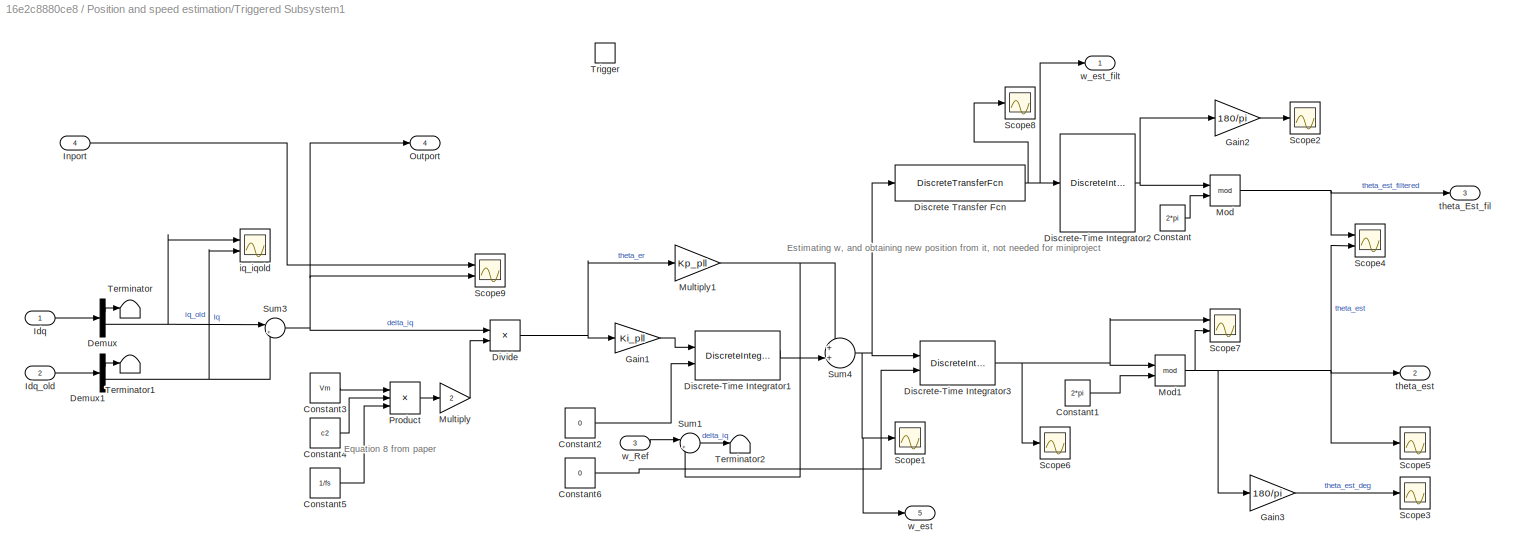
BLOCK [SubSystem] Position and speed estimation/Triggered Subsystem1
  Ports = [4, 5, 0, 1]
  RequestExecContextInheritance = off
  TreatAsAtomicUnit = on
BLOCK [Constant] Position and speed estimation/Triggered Subsystem1/Constant
  Value = 2*pi
BLOCK [Constant] Position and speed estimation/Triggered Subsystem1/Constant1
  Value = 2*pi
BLOCK [Constant] Position and speed estimation/Triggered Subsystem1/Constant2
  Value = 0
BLOCK [Constant] Position and speed estimation/Triggered Subsystem1/Constant3
  Value = Vm
BLOCK [Constant] Position and speed estimation/Triggered Subsystem1/Constant4
  Value = c2
BLOCK [Constant] Position and speed estimation/Triggered Subsystem1/Constant5
  Value = 1/fs
BLOCK [Constant] Position and speed estimation/Triggered Subsystem1/Constant6
  Value = 0
BLOCK [Demux] Position and speed estimation/Triggered Subsystem1/Demux
  DisplayOption = bar
  Outputs = 2
  Ports = [1, 2]
BLOCK [Demux] Position and speed estimation/Triggered Subsystem1/Demux1
  DisplayOption = bar
  Outputs = 2
  Ports = [1, 2]
BLOCK [DiscreteTransferFcn] Position and speed estimation/Triggered Subsystem1/Discrete Transfer Fcn
  Denominator = [(wo+fs) wo-fs]
  InputPortMap = u0
  Numerator = [wo wo]
  Ports = [1, 1]
BLOCK [DiscreteIntegrator] Position and speed estimation/Triggered Subsystem1/Discrete-Time Integrator1
  ICPrevOutput = DiscIntNeverNeededParam
  ICPrevScaledInput = DiscIntNeverNeededParam
  InitialConditionSetting = Auto
  InitialConditionSource = external
  IntegratorMethod = Integration: Trapezoidal
  Ports = [2, 1]
  SampleTime = -1
  gainval = 1
BLOCK [DiscreteIntegrator] Position and speed estimation/Triggered Subsystem1/Discrete-Time Integrator2
  ICPrevOutput = DiscIntNeverNeededParam
  ICPrevScaledInput = DiscIntNeverNeededParam
  InitialConditionSetting = Auto
  IntegratorMethod = Integration: Trapezoidal
  Ports = [1, 1]
  SampleTime = -1
  gainval = 1
BLOCK [DiscreteIntegrator] Position and speed estimation/Triggered Subsystem1/Discrete-Time Integrator3
  ICPrevOutput = DiscIntNeverNeededParam
  ICPrevScaledInput = DiscIntNeverNeededParam
  InitialConditionSetting = Auto
  InitialConditionSource = external
  IntegratorMethod = Integration: Trapezoidal
  Ports = [2, 1]
  SampleTime = -1
  gainval = 1
BLOCK [Product] Position and speed estimation/Triggered Subsystem1/Divide
  InputSameDT = off
  Inputs = */
  OutDataTypeStr = Inherit: Inherit via internal rule
  Ports = [2, 1]
  RndMeth = Floor
  SaturateOnIntegerOverflow = off
BLOCK [Gain] Position and speed estimation/Triggered Subsystem1/Gain1
  Gain = Ki_pll
  OutDataTypeStr = Inherit: Inherit via internal rule
  ParamDataTypeStr = Inherit: Inherit via internal rule
  SaturateOnIntegerOverflow = off
BLOCK [Gain] Position and speed estimation/Triggered Subsystem1/Gain2
  Gain = 180/pi
  OutDataTypeStr = Inherit: Inherit via internal rule
  ParamDataTypeStr = Inherit: Inherit via internal rule
  SaturateOnIntegerOverflow = off
BLOCK [Gain] Position and speed estimation/Triggered Subsystem1/Gain3
  Gain = 180/pi
  OutDataTypeStr = Inherit: Inherit via internal rule
  ParamDataTypeStr = Inherit: Inherit via internal rule
  SaturateOnIntegerOverflow = off
BLOCK [Inport] Position and speed estimation/Triggered Subsystem1/Idq
  IconDisplay = Port number
BLOCK [Inport] Position and speed estimation/Triggered Subsystem1/Idq_old
  IconDisplay = Port number
  Port = 2
BLOCK [Inport] Position and speed estimation/Triggered Subsystem1/Inport
  IconDisplay = Port number
  Port = 4
BLOCK [Math] Position and speed estimation/Triggered Subsystem1/Mod
  Operator = mod
  Ports = [2, 1]
  SignedPower = off
BLOCK [Math] Position and speed estimation/Triggered Subsystem1/Mod1
  Operator = mod
  Ports = [2, 1]
  SignedPower = off
BLOCK [Gain] Position and speed estimation/Triggered Subsystem1/Multiply
  Gain = 2
  OutDataTypeStr = Inherit: Inherit via internal rule
  ParamDataTypeStr = Inherit: Inherit via internal rule
  SaturateOnIntegerOverflow = off
BLOCK [Gain] Position and speed estimation/Triggered Subsystem1/Multiply1
  Gain = Kp_pll
  OutDataTypeStr = Inherit: Inherit via internal rule
  ParamDataTypeStr = Inherit: Inherit via internal rule
  SaturateOnIntegerOverflow = off
BLOCK [Outport] Position and speed estimation/Triggered Subsystem1/Outport
  IconDisplay = Port number
  Port = 4
BLOCK [Product] Position and speed estimation/Triggered Subsystem1/Product
  InputSameDT = off
  Inputs = 3
  OutDataTypeStr = Inherit: Inherit via internal rule
  Ports = [3, 1]
  RndMeth = Floor
  SaturateOnIntegerOverflow = off
BLOCK [Scope] Position and speed estimation/Triggered Subsystem1/Scope1
  Floating = off
  NumInputPorts = 1
  Ports = [1]
  ScopeSpecificationString = Simulink.scopes.TimeScopeBlockCfg('CurrentConfiguration', extmgr.ConfigurationSet(extmgr.Configuration('Core','General UI',true),extmgr.Configuration('Core','Source UI',true),extmgr.Configuration('Sources','WiredSimulink',true,'DataLoggingVariableName','ScopeData2'),extmgr.Configuration('Visuals','Time Domain',true,'SerializedDisplays',{struct('MinYLimReal','-5282.94624','MaxYLimReal','4797.11077'...<+1460ch>
BLOCK [Scope] Position and speed estimation/Triggered Subsystem1/Scope2
  Floating = off
  NumInputPorts = 1
  Ports = [1]
  ScopeSpecificationString = Simulink.scopes.TimeScopeBlockCfg('CurrentConfiguration', extmgr.ConfigurationSet(extmgr.Configuration('Core','General UI',true),extmgr.Configuration('Core','Source UI',true),extmgr.Configuration('Sources','WiredSimulink',true,'DataLoggingVariableName','ScopeData1','DataLoggingSaveFormat','StructureWithTime','DataLoggingDecimation','1','DataLoggingDecimateData',true),extmgr.Configuration('Visuals'...<+1690ch>
BLOCK [Scope] Position and speed estimation/Triggered Subsystem1/Scope3
  Floating = off
  NumInputPorts = 1
  Ports = [1]
  ScopeSpecificationString = Simulink.scopes.TimeScopeBlockCfg('CurrentConfiguration', extmgr.ConfigurationSet(extmgr.Configuration('Core','General UI',true),extmgr.Configuration('Core','Source UI',true),extmgr.Configuration('Sources','WiredSimulink',true,'DataLoggingVariableName','ScopeData2','DataLoggingSaveFormat','StructureWithTime','DataLoggingDecimation','1','DataLoggingDecimateData',true),extmgr.Configuration('Visuals'...<+1690ch>
BLOCK [Scope] Position and speed estimation/Triggered Subsystem1/Scope4
  Floating = off
  NumInputPorts = 2
  Ports = [2]
  ScopeSpecificationString = Simulink.scopes.TimeScopeBlockCfg('CurrentConfiguration', extmgr.ConfigurationSet(extmgr.Configuration('Core','General UI',true),extmgr.Configuration('Core','Source UI',true),extmgr.Configuration('Sources','WiredSimulink',true,'DataLoggingVariableName','ScopeData6','DataLoggingSaveFormat','StructureWithTime','DataLoggingDecimation','1','DataLoggingDecimateData',true),extmgr.Configuration('Visuals'...<+1795ch>
BLOCK [Scope] Position and speed estimation/Triggered Subsystem1/Scope5
  Floating = off
  NumInputPorts = 1
  Ports = [1]
  ScopeSpecificationString = Simulink.scopes.TimeScopeBlockCfg('CurrentConfiguration', extmgr.ConfigurationSet(extmgr.Configuration('Core','General UI',true),extmgr.Configuration('Core','Source UI',true),extmgr.Configuration('Sources','WiredSimulink',true,'DataLoggingVariableName','ScopeData3','DataLoggingSaveFormat','StructureWithTime','DataLoggingDecimation','1','DataLoggingDecimateData',true),extmgr.Configuration('Visuals'...<+1690ch>
BLOCK [Scope] Position and speed estimation/Triggered Subsystem1/Scope6
  Floating = off
  NumInputPorts = 1
  Ports = [1]
  ScopeSpecificationString = Simulink.scopes.TimeScopeBlockCfg('CurrentConfiguration', extmgr.ConfigurationSet(extmgr.Configuration('Core','General UI',true),extmgr.Configuration('Core','Source UI',true),extmgr.Configuration('Sources','WiredSimulink',true,'DataLoggingVariableName','ScopeData2'),extmgr.Configuration('Visuals','Time Domain',true,'SerializedDisplays',{struct('MinYLimReal','-13.28344','MaxYLimReal','104.41915','Y...<+1469ch>
BLOCK [Scope] Position and speed estimation/Triggered Subsystem1/Scope7
  Floating = off
  NumInputPorts = 2
  Ports = [2]
  ScopeSpecificationString = Simulink.scopes.TimeScopeBlockCfg('CurrentConfiguration', extmgr.ConfigurationSet(extmgr.Configuration('Core','General UI',true),extmgr.Configuration('Core','Source UI',true),extmgr.Configuration('Sources','WiredSimulink',true,'DataLoggingVariableName','ScopeData9','DataLoggingSaveFormat','StructureWithTime','DataLoggingDecimation','1','DataLoggingDecimateData',true),extmgr.Configuration('Visuals'...<+1798ch>
BLOCK [Scope] Position and speed estimation/Triggered Subsystem1/Scope8
  Floating = off
  NumInputPorts = 1
  Ports = [1]
  ScopeSpecificationString = Simulink.scopes.TimeScopeBlockCfg('CurrentConfiguration', extmgr.ConfigurationSet(extmgr.Configuration('Core','General UI',true),extmgr.Configuration('Core','Source UI',true),extmgr.Configuration('Sources','WiredSimulink',true,'DataLoggingVariableName','ScopeData1'),extmgr.Configuration('Visuals','Time Domain',true,'SerializedDisplays',{struct('MinYLimReal','-88.24236','MaxYLimReal','800.70627','Y...<+1465ch>
BLOCK [Scope] Position and speed estimation/Triggered Subsystem1/Scope9
  Floating = off
  NumInputPorts = 2
  Ports = [2]
  ScopeSpecificationString = Simulink.scopes.TimeScopeBlockCfg('CurrentConfiguration', extmgr.ConfigurationSet(extmgr.Configuration('Core','General UI',true),extmgr.Configuration('Core','Source UI',true),extmgr.Configuration('Sources','WiredSimulink',true,'DataLoggingVariableName','ScopeData4'),extmgr.Configuration('Visuals','Time Domain',true,'SerializedDisplays',{struct('MinYLimReal','-0.09755','MaxYLimReal','0.8304','YLabe...<+1447ch>
BLOCK [Sum] Position and speed estimation/Triggered Subsystem1/Sum1
  IconShape = round
  InputSameDT = off
  Inputs = |+-
  OutDataTypeStr = Inherit: Inherit via internal rule
  Ports = [2, 1]
  SaturateOnIntegerOverflow = off
BLOCK [Sum] Position and speed estimation/Triggered Subsystem1/Sum3
  IconShape = round
  InputSameDT = off
  Inputs = |+-
  OutDataTypeStr = Inherit: Inherit via internal rule
  Ports = [2, 1]
  SaturateOnIntegerOverflow = off
BLOCK [Sum] Position and speed estimation/Triggered Subsystem1/Sum4
  IconShape = round
  InputSameDT = off
  Inputs = ++|
  OutDataTypeStr = Inherit: Inherit via internal rule
  Ports = [2, 1]
  SaturateOnIntegerOverflow = off
BLOCK [Terminator] Position and speed estimation/Triggered Subsystem1/Terminator
BLOCK [Terminator] Position and speed estimation/Triggered Subsystem1/Terminator1
BLOCK [Terminator] Position and speed estimation/Triggered Subsystem1/Terminator2
BLOCK [TriggerPort] Position and speed estimation/Triggered Subsystem1/Trigger
  Ports = []
  StatesWhenEnabling = held
  VariantControl = Variant
BLOCK [Scope] Position and speed estimation/Triggered Subsystem1/iq_iqold
  Floating = off
  NumInputPorts = 2
  Ports = [2]
  ScopeSpecificationString = Simulink.scopes.TimeScopeBlockCfg('CurrentConfiguration', extmgr.ConfigurationSet(extmgr.Configuration('Core','General UI',true),extmgr.Configuration('Core','Source UI',true),extmgr.Configuration('Sources','WiredSimulink',true,'DataLoggingVariableName','ScopeData4'),extmgr.Configuration('Visuals','Time Domain',true,'SerializedDisplays',{struct('MinYLimReal','-0.80345','MaxYLimReal','4.29422','YLab...<+1513ch>
BLOCK [Outport] Position and speed estimation/Triggered Subsystem1/theta_Est_fil
  IconDisplay = Port number
  Port = 3
BLOCK [Outport] Position and speed estimation/Triggered Subsystem1/theta_est
  IconDisplay = Port number
  Port = 2
BLOCK [Inport] Position and speed estimation/Triggered Subsystem1/w_Ref
  IconDisplay = Port number
  Port = 3
BLOCK [Outport] Position and speed estimation/Triggered Subsystem1/w_est
  IconDisplay = Port number
  Port = 5
BLOCK [Outport] Position and speed estimation/Triggered Subsystem1/w_est_filt
  IconDisplay = Port number
BLOCK [SubSystem] Position and speed estimation/Triggered Subsystem2
  Ports = [2, 2, 0, 1]
  RequestExecContextInheritance = off
  TreatAsAtomicUnit = on
BLOCK [Inport] Position and speed estimation/Triggered Subsystem2/In1
  IconDisplay = Port number
BLOCK [Memory] Position and speed estimation/Triggered Subsystem2/Memory
  InheritSampleTime = on
BLOCK [TriggerPort] Position and speed estimation/Triggered Subsystem2/Trigger
  Ports = []
  StatesWhenEnabling = held
  VariantControl = Variant
BLOCK [SubSystem] Position and speed estimation/Triggered Subsystem2/abc 2 dq
  Ports = [2, 1]
  RequestExecContextInheritance = off
BLOCK [Mux] Position and speed estimation/Triggered Subsystem2/abc 2 dq/Mux1
  DisplayOption = bar
  Inputs = 2
  Ports = [2, 1]
BLOCK [Mux] Position and speed estimation/Triggered Subsystem2/abc 2 dq/Mux2
  DisplayOption = bar
  Inputs = 2
  Ports = [2, 1]
BLOCK [Inport] Position and speed estimation/Triggered Subsystem2/abc 2 dq/abc
  IconDisplay = Port number
BLOCK [Fcn] Position and speed estimation/Triggered Subsystem2/abc 2 dq/abc2d
  Expr = 2/3*(u(1)*cos(u(4))+u(2)*cos(u(4)-2*pi/3)+u(3)*cos(u(4)-4*pi/3))
BLOCK [Fcn] Position and speed estimation/Triggered Subsystem2/abc 2 dq/abc2q
  Expr = -1*2/3*(u(1)*sin(u(4))+u(2)*sin(u(4)-2*pi/3)+u(3)*sin(u(4)-4*pi/3))
BLOCK [Outport] Position and speed estimation/Triggered Subsystem2/abc 2 dq/dq
  IconDisplay = Port number
  VectorParamsAs1DForOutWhenUnconnected = off
BLOCK [Inport] Position and speed estimation/Triggered Subsystem2/abc 2 dq/theta
  IconDisplay = Port number
  Port = 2
BLOCK [Outport] Position and speed estimation/Triggered Subsystem2/i_dq
  IconDisplay = Port number
BLOCK [Outport] Position and speed estimation/Triggered Subsystem2/i_dq_old
  IconDisplay = Port number
  Port = 2
BLOCK [Inport] Position and speed estimation/Triggered Subsystem2/theta
  IconDisplay = Port number
  LatchByDelayingOutsideSignal = on
  Port = 2
BLOCK [SubSystem] Position and speed estimation/Triggered Subsystem3
  Ports = [3, 3, 0, 1]
  RequestExecContextInheritance = off
  TreatAsAtomicUnit = on
BLOCK [Constant] Position and speed estimation/Triggered Subsystem3/Constant
  Value = 2*pi
BLOCK [Constant] Position and speed estimation/Triggered Subsystem3/Constant1
  Value = 2*pi
BLOCK [Constant] Position and speed estimation/Triggered Subsystem3/Constant2
  Value = 0
BLOCK [Constant] Position and speed estimation/Triggered Subsystem3/Constant3
  Value = Vm
BLOCK [Constant] Position and speed estimation/Triggered Subsystem3/Constant4
  Value = c2
BLOCK [Constant] Position and speed estimation/Triggered Subsystem3/Constant5
  Value = 1/fs
BLOCK [Demux] Position and speed estimation/Triggered Subsystem3/Demux
  DisplayOption = bar
  Outputs = 2
  Ports = [1, 2]
BLOCK [Demux] Position and speed estimation/Triggered Subsystem3/Demux1
  DisplayOption = bar
  Outputs = 2
  Ports = [1, 2]
BLOCK [DiscreteTransferFcn] Position and speed estimation/Triggered Subsystem3/Discrete Transfer Fcn
  Denominator = [(wo+fs) wo-fs]
  InputPortMap = u0
  Numerator = [wo wo]
  Ports = [1, 1]
BLOCK [DiscreteIntegrator] Position and speed estimation/Triggered Subsystem3/Discrete-Time Integrator1
  ICPrevOutput = DiscIntNeverNeededParam
  ICPrevScaledInput = DiscIntNeverNeededParam
  InitialConditionSetting = Auto
  InitialConditionSource = external
  IntegratorMethod = Integration: Trapezoidal
  Ports = [2, 1]
  SampleTime = -1
  gainval = 1
BLOCK [DiscreteIntegrator] Position and speed estimation/Triggered Subsystem3/Discrete-Time Integrator2
  ICPrevOutput = DiscIntNeverNeededParam
  ICPrevScaledInput = DiscIntNeverNeededParam
  InitialConditionSetting = Auto
  IntegratorMethod = Integration: Trapezoidal
  Ports = [1, 1]
  SampleTime = -1
  gainval = 1
BLOCK [DiscreteIntegrator] Position and speed estimation/Triggered Subsystem3/Discrete-Time Integrator3
  ICPrevOutput = DiscIntNeverNeededParam
  ICPrevScaledInput = DiscIntNeverNeededParam
  InitialConditionSetting = Auto
  InitialConditionSource = external
  IntegratorMethod = Integration: Trapezoidal
  Ports = [2, 1]
  SampleTime = -1
  gainval = 1
BLOCK [Product] Position and speed estimation/Triggered Subsystem3/Divide
  InputSameDT = off
  Inputs = */
  OutDataTypeStr = Inherit: Inherit via internal rule
  Ports = [2, 1]
  RndMeth = Floor
  SaturateOnIntegerOverflow = off
BLOCK [Gain] Position and speed estimation/Triggered Subsystem3/Gain1
  Gain = Ki_pll
  OutDataTypeStr = Inherit: Inherit via internal rule
  ParamDataTypeStr = Inherit: Inherit via internal rule
  SaturateOnIntegerOverflow = off
BLOCK [Gain] Position and speed estimation/Triggered Subsystem3/Gain2
  Gain = 180/pi
  OutDataTypeStr = Inherit: Inherit via internal rule
  ParamDataTypeStr = Inherit: Inherit via internal rule
  SaturateOnIntegerOverflow = off
BLOCK [Gain] Position and speed estimation/Triggered Subsystem3/Gain3
  Gain = 180/pi
  OutDataTypeStr = Inherit: Inherit via internal rule
  ParamDataTypeStr = Inherit: Inherit via internal rule
  SaturateOnIntegerOverflow = off
BLOCK [Inport] Position and speed estimation/Triggered Subsystem3/Idq
  IconDisplay = Port number
BLOCK [Inport] Position and speed estimation/Triggered Subsystem3/Idq_old
  IconDisplay = Port number
  Port = 2
BLOCK [Math] Position and speed estimation/Triggered Subsystem3/Mod
  Operator = mod
  Ports = [2, 1]
  SignedPower = off
BLOCK [Math] Position and speed estimation/Triggered Subsystem3/Mod1
  Operator = mod
  Ports = [2, 1]
  SignedPower = off
BLOCK [Gain] Position and speed estimation/Triggered Subsystem3/Multiply
  Gain = 2
  OutDataTypeStr = Inherit: Inherit via internal rule
  ParamDataTypeStr = Inherit: Inherit via internal rule
  SaturateOnIntegerOverflow = off
BLOCK [Gain] Position and speed estimation/Triggered Subsystem3/Multiply1
  Gain = Kp_pll
  OutDataTypeStr = Inherit: Inherit via internal rule
  ParamDataTypeStr = Inherit: Inherit via internal rule
  SaturateOnIntegerOverflow = off
BLOCK [Product] Position and speed estimation/Triggered Subsystem3/Product
  InputSameDT = off
  Inputs = 3
  OutDataTypeStr = Inherit: Inherit via internal rule
  Ports = [3, 1]
  RndMeth = Floor
  SaturateOnIntegerOverflow = off
BLOCK [Scope] Position and speed estimation/Triggered Subsystem3/Scope1
  Floating = off
  NumInputPorts = 2
  Ports = [2]
  ScopeSpecificationString = Simulink.scopes.TimeScopeBlockCfg('CurrentConfiguration', extmgr.ConfigurationSet(extmgr.Configuration('Core','General UI',true),extmgr.Configuration('Core','Source UI',true),extmgr.Configuration('Sources','WiredSimulink',true,'DataLoggingVariableName','ScopeData1'),extmgr.Configuration('Visuals','Time Domain',true,'SerializedDisplays',{struct('MinYLimReal','-631.87467','MaxYLimReal','622.37547','...<+1477ch>
BLOCK [Scope] Position and speed estimation/Triggered Subsystem3/Scope15
  Floating = off
  NumInputPorts = 1
  Ports = [1]
  ScopeSpecificationString = Simulink.scopes.TimeScopeBlockCfg('CurrentConfiguration', extmgr.ConfigurationSet(extmgr.Configuration('Core','General UI',true),extmgr.Configuration('Core','Source UI',true),extmgr.Configuration('Sources','WiredSimulink',true,'DataLoggingVariableName','ScopeData3'),extmgr.Configuration('Visuals','Time Domain',true,'SerializedDisplays',{struct('MinYLimReal','-1.19037','MaxYLimReal','2.20487','YLab...<+1442ch>
BLOCK [Scope] Position and speed estimation/Triggered Subsystem3/Scope2
  Floating = off
  NumInputPorts = 1
  Ports = [1]
  ScopeSpecificationString = Simulink.scopes.TimeScopeBlockCfg('CurrentConfiguration', extmgr.ConfigurationSet(extmgr.Configuration('Core','General UI',true),extmgr.Configuration('Core','Source UI',true),extmgr.Configuration('Sources','WiredSimulink',true,'DataLoggingVariableName','ScopeData1','DataLoggingSaveFormat','StructureWithTime','DataLoggingDecimation','1','DataLoggingDecimateData',true),extmgr.Configuration('Visuals'...<+1690ch>
BLOCK [Scope] Position and speed estimation/Triggered Subsystem3/Scope3
  Floating = off
  NumInputPorts = 1
  Ports = [1]
  ScopeSpecificationString = Simulink.scopes.TimeScopeBlockCfg('CurrentConfiguration', extmgr.ConfigurationSet(extmgr.Configuration('Core','General UI',true),extmgr.Configuration('Core','Source UI',true),extmgr.Configuration('Sources','WiredSimulink',true,'DataLoggingVariableName','ScopeData2','DataLoggingSaveFormat','StructureWithTime','DataLoggingDecimation','1','DataLoggingDecimateData',true),extmgr.Configuration('Visuals'...<+1690ch>
BLOCK [Scope] Position and speed estimation/Triggered Subsystem3/Scope4
  Floating = off
  NumInputPorts = 2
  Ports = [2]
  ScopeSpecificationString = Simulink.scopes.TimeScopeBlockCfg('CurrentConfiguration', extmgr.ConfigurationSet(extmgr.Configuration('Core','General UI',true),extmgr.Configuration('Core','Source UI',true),extmgr.Configuration('Sources','WiredSimulink',true,'DataLoggingVariableName','ScopeData6','DataLoggingSaveFormat','StructureWithTime','DataLoggingDecimation','1','DataLoggingDecimateData',true),extmgr.Configuration('Visuals'...<+1795ch>
BLOCK [Scope] Position and speed estimation/Triggered Subsystem3/Scope5
  Floating = off
  NumInputPorts = 1
  Ports = [1]
  ScopeSpecificationString = Simulink.scopes.TimeScopeBlockCfg('CurrentConfiguration', extmgr.ConfigurationSet(extmgr.Configuration('Core','General UI',true),extmgr.Configuration('Core','Source UI',true),extmgr.Configuration('Sources','WiredSimulink',true,'DataLoggingVariableName','ScopeData3','DataLoggingSaveFormat','StructureWithTime','DataLoggingDecimation','1','DataLoggingDecimateData',true),extmgr.Configuration('Visuals'...<+1690ch>
BLOCK [Scope] Position and speed estimation/Triggered Subsystem3/Scope6
  Floating = off
  NumInputPorts = 1
  Ports = [1]
  ScopeSpecificationString = Simulink.scopes.TimeScopeBlockCfg('CurrentConfiguration', extmgr.ConfigurationSet(extmgr.Configuration('Core','General UI',true),extmgr.Configuration('Core','Source UI',true),extmgr.Configuration('Sources','WiredSimulink',true,'DataLoggingVariableName','ScopeData2'),extmgr.Configuration('Visuals','Time Domain',true,'SerializedDisplays',{struct('MinYLimReal','-13.28344','MaxYLimReal','104.41915','Y...<+1469ch>
BLOCK [Scope] Position and speed estimation/Triggered Subsystem3/Scope7
  Floating = off
  NumInputPorts = 2
  Ports = [2]
  ScopeSpecificationString = Simulink.scopes.TimeScopeBlockCfg('CurrentConfiguration', extmgr.ConfigurationSet(extmgr.Configuration('Core','General UI',true),extmgr.Configuration('Core','Source UI',true),extmgr.Configuration('Sources','WiredSimulink',true,'DataLoggingVariableName','ScopeData9','DataLoggingSaveFormat','StructureWithTime','DataLoggingDecimation','1','DataLoggingDecimateData',true),extmgr.Configuration('Visuals'...<+1798ch>
BLOCK [Sum] Position and speed estimation/Triggered Subsystem3/Sum1
  IconShape = round
  InputSameDT = off
  Inputs = |+-
  OutDataTypeStr = Inherit: Inherit via internal rule
  Ports = [2, 1]
  SaturateOnIntegerOverflow = off
BLOCK [Sum] Position and speed estimation/Triggered Subsystem3/Sum3
  IconShape = round
  InputSameDT = off
  Inputs = |+-
  OutDataTypeStr = Inherit: Inherit via internal rule
  Ports = [2, 1]
  SaturateOnIntegerOverflow = off
BLOCK [Sum] Position and speed estimation/Triggered Subsystem3/Sum4
  IconShape = round
  InputSameDT = off
  Inputs = ++|
  OutDataTypeStr = Inherit: Inherit via internal rule
  Ports = [2, 1]
  SaturateOnIntegerOverflow = off
BLOCK [Terminator] Position and speed estimation/Triggered Subsystem3/Terminator
BLOCK [Terminator] Position and speed estimation/Triggered Subsystem3/Terminator1
BLOCK [Terminator] Position and speed estimation/Triggered Subsystem3/Terminator2
BLOCK [TriggerPort] Position and speed estimation/Triggered Subsystem3/Trigger
  Ports = []
  StatesWhenEnabling = held
  VariantControl = Variant
BLOCK [Scope] Position and speed estimation/Triggered Subsystem3/iq_iqold
  Floating = off
  NumInputPorts = 2
  Ports = [2]
  ScopeSpecificationString = Simulink.scopes.TimeScopeBlockCfg('CurrentConfiguration', extmgr.ConfigurationSet(extmgr.Configuration('Core','General UI',true),extmgr.Configuration('Core','Source UI',true),extmgr.Configuration('Sources','WiredSimulink',true,'DataLoggingVariableName','ScopeData4'),extmgr.Configuration('Visuals','Time Domain',true,'SerializedDisplays',{struct('MinYLimReal','-0.91876','MaxYLimReal','1.26633','YLab...<+1490ch>
BLOCK [Outport] Position and speed estimation/Triggered Subsystem3/theta_Est_fil
  IconDisplay = Port number
  Port = 3
BLOCK [Outport] Position and speed estimation/Triggered Subsystem3/theta_est
  IconDisplay = Port number
  Port = 2
BLOCK [Inport] Position and speed estimation/Triggered Subsystem3/w_Ref
  IconDisplay = Port number
  Port = 3
BLOCK [Outport] Position and speed estimation/Triggered Subsystem3/w_est
  IconDisplay = Port number
BLOCK [SubSystem] Position and speed estimation/Triggered Subsystem4
  Ports = [1, 4, 0, 1]
  RequestExecContextInheritance = off
  TreatAsAtomicUnit = on
BLOCK [Constant] Position and speed estimation/Triggered Subsystem4/Constant
  Value = 2*pi
BLOCK [Constant] Position and speed estimation/Triggered Subsystem4/Constant1
  Value = 2*pi
BLOCK [Constant] Position and speed estimation/Triggered Subsystem4/Constant2
  Value = 0
BLOCK [DiscreteTransferFcn] Position and speed estimation/Triggered Subsystem4/Discrete Transfer Fcn
  Denominator = [(wo+fs) wo-fs]
  InputPortMap = u0
  Numerator = [wo wo]
  Ports = [1, 1]
BLOCK [DiscreteIntegrator] Position and speed estimation/Triggered Subsystem4/Discrete-Time Integrator1
  ICPrevOutput = DiscIntNeverNeededParam
  ICPrevScaledInput = DiscIntNeverNeededParam
  InitialConditionSetting = Auto
  InitialConditionSource = external
  IntegratorMethod = Integration: Trapezoidal
  Ports = [2, 1]
  SampleTime = -1
  gainval = 1
BLOCK [DiscreteIntegrator] Position and speed estimation/Triggered Subsystem4/Discrete-Time Integrator2
  ICPrevOutput = DiscIntNeverNeededParam
  ICPrevScaledInput = DiscIntNeverNeededParam
  InitialConditionSetting = Auto
  IntegratorMethod = Integration: Trapezoidal
  Ports = [1, 1]
  SampleTime = -1
  gainval = 1
BLOCK [DiscreteIntegrator] Position and speed estimation/Triggered Subsystem4/Discrete-Time Integrator3
  ICPrevOutput = DiscIntNeverNeededParam
  ICPrevScaledInput = DiscIntNeverNeededParam
  InitialConditionSetting = Auto
  InitialConditionSource = external
  IntegratorMethod = Integration: Trapezoidal
  Ports = [2, 1]
  SampleTime = -1
  gainval = 1
BLOCK [Gain] Position and speed estimation/Triggered Subsystem4/Gain1
  Gain = Ki_pll
  OutDataTypeStr = Inherit: Inherit via internal rule
  ParamDataTypeStr = Inherit: Inherit via internal rule
  SaturateOnIntegerOverflow = off
BLOCK [Math] Position and speed estimation/Triggered Subsystem4/Mod
  Operator = mod
  Ports = [2, 1]
  SignedPower = off
BLOCK [Math] Position and speed estimation/Triggered Subsystem4/Mod1
  Operator = mod
  Ports = [2, 1]
  SignedPower = off
BLOCK [Gain] Position and speed estimation/Triggered Subsystem4/Multiply2
  Gain = Kp_pll
  OutDataTypeStr = Inherit: Inherit via internal rule
  ParamDataTypeStr = Inherit: Inherit via internal rule
  SaturateOnIntegerOverflow = off
BLOCK [Scope] Position and speed estimation/Triggered Subsystem4/Scope1
  Floating = off
  NumInputPorts = 1
  Ports = [1]
  ScopeSpecificationString = Simulink.scopes.TimeScopeBlockCfg('CurrentConfiguration', extmgr.ConfigurationSet(extmgr.Configuration('Core','General UI',true),extmgr.Configuration('Core','Source UI',true),extmgr.Configuration('Sources','WiredSimulink',true,'DataLoggingVariableName','ScopeData1'),extmgr.Configuration('Visuals','Time Domain',true,'SerializedDisplays',{struct('MinYLimReal','-85.076','MaxYLimReal','64.29083','YLab...<+1433ch>
BLOCK [Scope] Position and speed estimation/Triggered Subsystem4/Scope12
  Floating = off
  NumInputPorts = 1
  Ports = [1]
  ScopeSpecificationString = Simulink.scopes.TimeScopeBlockCfg('CurrentConfiguration', extmgr.ConfigurationSet(extmgr.Configuration('Core','General UI',true),extmgr.Configuration('Core','Source UI',true),extmgr.Configuration('Sources','WiredSimulink',true,'DataLoggingVariableName','ScopeData6'),extmgr.Configuration('Visuals','Time Domain',true,'SerializedDisplays',{struct('MinYLimReal','-13.28344','MaxYLimReal','104.41915','Y...<+1469ch>
BLOCK [Scope] Position and speed estimation/Triggered Subsystem4/Scope13
  Floating = off
  NumInputPorts = 2
  Ports = [2]
  ScopeSpecificationString = Simulink.scopes.TimeScopeBlockCfg('CurrentConfiguration', extmgr.ConfigurationSet(extmgr.Configuration('Core','General UI',true),extmgr.Configuration('Core','Source UI',true),extmgr.Configuration('Sources','WiredSimulink',true,'DataLoggingVariableName','ScopeData7','DataLoggingSaveFormat','StructureWithTime','DataLoggingDecimation','1','DataLoggingDecimateData',true),extmgr.Configuration('Visuals'...<+1802ch>
BLOCK [Scope] Position and speed estimation/Triggered Subsystem4/Scope8
  Floating = off
  NumInputPorts = 2
  Ports = [2]
  ScopeSpecificationString = Simulink.scopes.TimeScopeBlockCfg('CurrentConfiguration', extmgr.ConfigurationSet(extmgr.Configuration('Core','General UI',true),extmgr.Configuration('Core','Source UI',true),extmgr.Configuration('Sources','WiredSimulink',true,'DataLoggingVariableName','ScopeData2','DataLoggingSaveFormat','StructureWithTime','DataLoggingDecimation','1','DataLoggingDecimateData',true),extmgr.Configuration('Visuals'...<+1795ch>
BLOCK [Scope] Position and speed estimation/Triggered Subsystem4/Scope9
  Floating = off
  NumInputPorts = 1
  Ports = [1]
  ScopeSpecificationString = Simulink.scopes.TimeScopeBlockCfg('CurrentConfiguration', extmgr.ConfigurationSet(extmgr.Configuration('Core','General UI',true),extmgr.Configuration('Core','Source UI',true),extmgr.Configuration('Sources','WiredSimulink',true,'DataLoggingVariableName','ScopeData3'),extmgr.Configuration('Visuals','Time Domain',true,'SerializedDisplays',{struct('MinYLimReal','-17.8012','MaxYLimReal','49.41549','YLa...<+1459ch>
BLOCK [Sum] Position and speed estimation/Triggered Subsystem4/Sum4
  IconShape = round
  InputSameDT = off
  Inputs = ++|
  OutDataTypeStr = Inherit: Inherit via internal rule
  Ports = [2, 1]
  SaturateOnIntegerOverflow = off
BLOCK [TriggerPort] Position and speed estimation/Triggered Subsystem4/Trigger
  Ports = []
  StatesWhenEnabling = held
  VariantControl = Variant
BLOCK [Inport] Position and speed estimation/Triggered Subsystem4/theta_err
  IconDisplay = Port number
BLOCK [Outport] Position and speed estimation/Triggered Subsystem4/theta_est
  IconDisplay = Port number
  Port = 3
BLOCK [Outport] Position and speed estimation/Triggered Subsystem4/theta_est_filtered
  IconDisplay = Port number
  Port = 2
BLOCK [Outport] Position and speed estimation/Triggered Subsystem4/theta_est_unwrapped
  IconDisplay = Port number
  Port = 4
BLOCK [Outport] Position and speed estimation/Triggered Subsystem4/w_est_fil
  IconDisplay = Port number
BLOCK [SubSystem] Position and speed estimation/Triggered Subsystem5
  Ports = [2, 1, 0, 1]
  RequestExecContextInheritance = off
  TreatAsAtomicUnit = on
BLOCK [Trigonometry] Position and speed estimation/Triggered Subsystem5/Cos
  Operator = cos
  Ports = [1, 1]
BLOCK [Delay] Position and speed estimation/Triggered Subsystem5/Delay2
  DelayLength = 1
  InputPortMap = u0
  Ports = [1, 1]
BLOCK [Delay] Position and speed estimation/Triggered Subsystem5/Delay3
  DelayLength = 1
  InputPortMap = u0
  Ports = [1, 1]
BLOCK [Demux] Position and speed estimation/Triggered Subsystem5/Demux4
  DisplayOption = bar
  Outputs = 2
  Ports = [1, 2]
BLOCK [Product] Position and speed estimation/Triggered Subsystem5/Multiply
  InputSameDT = off
  OutDataTypeStr = Inherit: Inherit via internal rule
  Ports = [2, 1]
  RndMeth = Floor
  SaturateOnIntegerOverflow = off
BLOCK [Product] Position and speed estimation/Triggered Subsystem5/Multiply1
  InputSameDT = off
  OutDataTypeStr = Inherit: Inherit via internal rule
  Ports = [2, 1]
  RndMeth = Floor
  SaturateOnIntegerOverflow = off
BLOCK [Scope] Position and speed estimation/Triggered Subsystem5/Scope1
  Floating = off
  NumInputPorts = 2
  Ports = [2]
  ScopeSpecificationString = Simulink.scopes.TimeScopeBlockCfg('CurrentConfiguration', extmgr.ConfigurationSet(extmgr.Configuration('Core','General UI',true),extmgr.Configuration('Core','Source UI',true),extmgr.Configuration('Sources','WiredSimulink',true,'DataLoggingVariableName','ScopeData4','DataLoggingSaveFormat','StructureWithTime','DataLoggingDecimation','1','DataLoggingDecimateData',true),extmgr.Configuration('Visuals'...<+1774ch>
BLOCK [Scope] Position and speed estimation/Triggered Subsystem5/Scope3
  Floating = off
  NumInputPorts = 2
  Ports = [2]
  ScopeSpecificationString = Simulink.scopes.TimeScopeBlockCfg('CurrentConfiguration', extmgr.ConfigurationSet(extmgr.Configuration('Core','General UI',true),extmgr.Configuration('Core','Source UI',true),extmgr.Configuration('Sources','WiredSimulink',true,'DataLoggingVariableName','ScopeData9','DataLoggingSaveFormat','StructureWithTime','DataLoggingDecimation','1','DataLoggingDecimateData',true),extmgr.Configuration('Visuals'...<+1785ch>
BLOCK [Trigonometry] Position and speed estimation/Triggered Subsystem5/Sin
  Ports = [1, 1]
BLOCK [Sum] Position and speed estimation/Triggered Subsystem5/Subtract
  InputSameDT = off
  Inputs = +-
  OutDataTypeStr = Inherit: Inherit via internal rule
  Ports = [2, 1]
  SaturateOnIntegerOverflow = off
BLOCK [Sum] Position and speed estimation/Triggered Subsystem5/Subtract1
  InputSameDT = off
  Inputs = +-
  OutDataTypeStr = Inherit: Inherit via internal rule
  Ports = [2, 1]
  SaturateOnIntegerOverflow = off
BLOCK [Sum] Position and speed estimation/Triggered Subsystem5/Sum
  IconShape = round
  InputSameDT = off
  Inputs = |++
  OutDataTypeStr = Inherit: Inherit via internal rule
  Ports = [2, 1]
  SaturateOnIntegerOverflow = off
BLOCK [TriggerPort] Position and speed estimation/Triggered Subsystem5/Trigger
  Ports = []
  StatesWhenEnabling = held
  VariantControl = Variant
BLOCK [Inport] Position and speed estimation/Triggered Subsystem5/i_alfbet_meas
  IconDisplay = Port number
BLOCK [Inport] Position and speed estimation/Triggered Subsystem5/theta
  IconDisplay = Port number
  LatchByDelayingOutsideSignal = on
  Port = 2
BLOCK [Outport] Position and speed estimation/Triggered Subsystem5/theta_err
  IconDisplay = Port number
BLOCK [Inport] Position and speed estimation/i_alfbet_meas
  IconDisplay = Port number
  Port = 3
BLOCK [Scope] Position and speed estimation/iq_iqold
  Floating = off
  NumInputPorts = 2
  Ports = [2]
  ScopeSpecificationString = Simulink.scopes.TimeScopeBlockCfg('CurrentConfiguration', extmgr.ConfigurationSet(extmgr.Configuration('Core','General UI',true),extmgr.Configuration('Core','Source UI',true),extmgr.Configuration('Sources','WiredSimulink',true,'DataLoggingVariableName','ScopeData1'),extmgr.Configuration('Visuals','Time Domain',true,'SerializedDisplays',{struct('MinYLimReal','-0.72053','MaxYLimReal','1.35908','YLab...<+1515ch>
BLOCK [Outport] Position and speed estimation/theta_est
  IconDisplay = Port number
BLOCK [Outport] Position and speed estimation/theta_est_filter
  IconDisplay = Port number
  Port = 4
BLOCK [Outport] Position and speed estimation/theta_est_filter_buena
  IconDisplay = Port number
  Port = 5
BLOCK [Outport] Position and speed estimation/w_est
  IconDisplay = Port number
  Port = 6
BLOCK [Outport] Position and speed estimation/w_est_fil
  IconDisplay = Port number
  Port = 2
BLOCK [Inport] Position and speed estimation/w_ref
  IconDisplay = Port number
  Port = 2
BLOCK [Product] Product
  InputSameDT = off
  OutDataTypeStr = Inherit: Inherit via internal rule
  Ports = [2, 1]
  RndMeth = Floor
  SaturateOnIntegerOverflow = off
BLOCK [Product] Product1
  InputSameDT = off
  OutDataTypeStr = Inherit: Inherit via internal rule
  Ports = [2, 1]
  RndMeth = Floor
  SaturateOnIntegerOverflow = off
BLOCK [DiscretePulseGenerator] Pulse Generator1
  Period = 2/fs
  PhaseDelay = 1/fs
  Ports = [0, 1]
  PulseType = Time based
  PulseWidth = 50
BLOCK [DiscretePulseGenerator] Pulse Generator2
  Period = 2/fs
  Ports = [0, 1]
  PulseType = Time based
  PulseWidth = 50
BLOCK [DiscretePulseGenerator] Pulse Generator4
  Period = 2/fs
  Ports = [0, 1]
  PulseType = Time based
  PulseWidth = 50
BLOCK [Reference] Ramp  REF=simulink/Sources/Ramp
  Commented = on
  Ports = [0, 1]
  SourceBlock = simulink/Sources/Ramp
  SourceProductBaseCode = SL
  SourceProductName = Simulink
  SourceType = Ramp
BLOCK [Saturate] Saturation
  Commented = on
  InputPortMap = u0
  Ports = [1, 1]
  UpperLimit = 1
BLOCK [Saturate] Saturation5
  InputPortMap = u0
  LowerLimit = -Vph
  Ports = [1, 1]
  UpperLimit = Vph
BLOCK [Scope] Scope
  Floating = off
  NumInputPorts = 1
  Ports = [1]
  ScopeSpecificationString = Simulink.scopes.TimeScopeBlockCfg('CurrentConfiguration', extmgr.ConfigurationSet(extmgr.Configuration('Core','General UI',true),extmgr.Configuration('Core','Source UI',true),extmgr.Configuration('Sources','WiredSimulink',true,'DataLoggingVariableName','ScopeData6'),extmgr.Configuration('Visuals','Time Domain',true,'SerializedDisplays',{struct('MinYLimReal','-100.4563','MaxYLimReal','136.0093','YL...<+1474ch>
BLOCK [Scope] Scope1
  Floating = off
  NumInputPorts = 1
  Ports = [1]
  ScopeSpecificationString = Simulink.scopes.TimeScopeBlockCfg('CurrentConfiguration', extmgr.ConfigurationSet(extmgr.Configuration('Core','General UI',true),extmgr.Configuration('Core','Source UI',true),extmgr.Configuration('Sources','WiredSimulink',true,'DataLoggingVariableName','ScopeData6','DataLoggingSaveFormat','StructureWithTime','DataLoggingDecimation','1','DataLoggingDecimateData',true),extmgr.Configuration('Visuals'...<+1819ch>
BLOCK [Scope] Scope10
  Floating = off
  NumInputPorts = 1
  Ports = [1]
  ScopeSpecificationString = C++SS(StrPVP('Location','[24, 90, 674, 485]'),StrPVP('Open','off'),StrPVP('ZoomMode','xonly'),MxPVP('AxesTitles',54,'struct(''axes1'',''%<SignalLabel>'')'),MxPVP('ScopeGraphics',57,'struct(''FigureColor'',''[0.5 0.5 0.5]'',''AxesColor'',''[0 0 0]'',''AxesTickColor'',''[1 1 1]'',''LineColors'',''[1 1 0;1 0 1;0 1 1;1 0 0;0 1 0;0 0 1]'',''LineStyles'',''-|-|-|-|-|-'',''LineWidths'',''[0.5 0.5 0.5 0.5...<+362ch>
BLOCK [Scope] Scope11
  Floating = off
  NumInputPorts = 1
  Ports = [1]
  ScopeSpecificationString = Simulink.scopes.TimeScopeBlockCfg('CurrentConfiguration', extmgr.ConfigurationSet(extmgr.Configuration('Core','General UI',true),extmgr.Configuration('Core','Source UI',true),extmgr.Configuration('Sources','WiredSimulink',true,'DataLoggingVariableName','ScopeData1'),extmgr.Configuration('Visuals','Time Domain',true,'SerializedDisplays',{struct('MinYLimReal','-85.13024','MaxYLimReal','71.9211','YLa...<+1496ch>
BLOCK [Scope] Scope12
  Floating = off
  NumInputPorts = 1
  Ports = [1]
  ScopeSpecificationString = Simulink.scopes.TimeScopeBlockCfg('CurrentConfiguration', extmgr.ConfigurationSet(extmgr.Configuration('Core','General UI',true),extmgr.Configuration('Core','Source UI',true),extmgr.Configuration('Sources','WiredSimulink',true,'DataLoggingVariableName','ScopeData9','DataLoggingSaveFormat','StructureWithTime','DataLoggingDecimation','1','DataLoggingDecimateData',true),extmgr.Configuration('Visuals'...<+1685ch>
BLOCK [Scope] Scope13
  Floating = off
  NumInputPorts = 1
  Ports = [1]
  ScopeSpecificationString = Simulink.scopes.TimeScopeBlockCfg('CurrentConfiguration', extmgr.ConfigurationSet(extmgr.Configuration('Core','General UI',true),extmgr.Configuration('Core','Source UI',true),extmgr.Configuration('Sources','WiredSimulink',true,'DataLoggingVariableName','ScopeData3'),extmgr.Configuration('Visuals','Time Domain',true,'SerializedDisplays',{struct('MinYLimReal','-636.3961','MaxYLimReal','636.3961','YL...<+1531ch>
BLOCK [Scope] Scope14
  Floating = off
  NumInputPorts = 1
  Ports = [1]
  ScopeSpecificationString = Simulink.scopes.TimeScopeBlockCfg('CurrentConfiguration', extmgr.ConfigurationSet(extmgr.Configuration('Core','General UI',true),extmgr.Configuration('Core','Source UI',true),extmgr.Configuration('Sources','WiredSimulink',true,'DataLoggingVariableName','ScopeData4'),extmgr.Configuration('Visuals','Time Domain',true,'SerializedDisplays',{struct('MinYLimReal','-76.46992','MaxYLimReal','54.28127','YL...<+1471ch>
BLOCK [Scope] Scope15
  Floating = off
  NumInputPorts = 2
  Ports = [2]
  ScopeSpecificationString = Simulink.scopes.TimeScopeBlockCfg('CurrentConfiguration', extmgr.ConfigurationSet(extmgr.Configuration('Core','General UI',true),extmgr.Configuration('Core','Source UI',true),extmgr.Configuration('Sources','WiredSimulink',true,'DataLoggingVariableName','ScopeData5','DataLoggingSaveFormat','StructureWithTime','DataLoggingDecimation','1','DataLoggingDecimateData',true),extmgr.Configuration('Visuals'...<+1837ch>
BLOCK [Scope] Scope16
  Floating = off
  NumInputPorts = 1
  Ports = [1]
  ScopeSpecificationString = Simulink.scopes.TimeScopeBlockCfg('CurrentConfiguration', extmgr.ConfigurationSet(extmgr.Configuration('Core','General UI',true),extmgr.Configuration('Core','Source UI',true),extmgr.Configuration('Sources','WiredSimulink',true,'DataLoggingVariableName','ScopeData5'),extmgr.Configuration('Visuals','Time Domain',true,'SerializedDisplays',{struct('MinYLimReal','-636.3961','MaxYLimReal','636.3961','YL...<+1491ch>
BLOCK [Scope] Scope17
  Floating = off
  NumInputPorts = 3
  Ports = [3]
  ScopeSpecificationString = Simulink.scopes.TimeScopeBlockCfg('CurrentConfiguration', extmgr.ConfigurationSet(extmgr.Configuration('Core','General UI',true),extmgr.Configuration('Core','Source UI',true),extmgr.Configuration('Sources','WiredSimulink',true,'DataLoggingVariableName','ScopeData1'),extmgr.Configuration('Visuals','Time Domain',true,'SerializedDisplays',{struct('MinYLimReal','-0.125','MaxYLimReal','1.125','YLabelRe...<+1541ch>
BLOCK [Scope] Scope18
  Floating = off
  NumInputPorts = 1
  Ports = [1]
  ScopeSpecificationString = Simulink.scopes.TimeScopeBlockCfg('CurrentConfiguration', extmgr.ConfigurationSet(extmgr.Configuration('Core','General UI',true),extmgr.Configuration('Core','Source UI',true),extmgr.Configuration('Sources','WiredSimulink',true,'DataLoggingVariableName','ScopeData3'),extmgr.Configuration('Visuals','Time Domain',true,'SerializedDisplays',{struct('MinYLimReal','10.00000','MaxYLimReal','110.00000','YL...<+1483ch>
BLOCK [Scope] Scope19
  Floating = off
  NumInputPorts = 2
  Ports = [2]
  ScopeSpecificationString = Simulink.scopes.TimeScopeBlockCfg('CurrentConfiguration', extmgr.ConfigurationSet(extmgr.Configuration('Core','General UI',true),extmgr.Configuration('Core','Source UI',true),extmgr.Configuration('Sources','WiredSimulink',true,'DataLoggingVariableName','ScopeData4'),extmgr.Configuration('Visuals','Time Domain',true,'SerializedDisplays',{struct('MinYLimReal','-358.44063','MaxYLimReal','184.57813','...<+1488ch>
BLOCK [Scope] Scope2
  Floating = off
  NumInputPorts = 1
  Ports = [1]
  ScopeSpecificationString = Simulink.scopes.TimeScopeBlockCfg('CurrentConfiguration', extmgr.ConfigurationSet(extmgr.Configuration('Core','General UI',true),extmgr.Configuration('Core','Source UI',true),extmgr.Configuration('Sources','WiredSimulink',true,'DataLoggingVariableName','ScopeData4','DataLoggingSaveFormat','StructureWithTime','DataLoggingDecimation','1','DataLoggingDecimateData',true),extmgr.Configuration('Visuals'...<+1746ch>
BLOCK [Scope] Scope20
  Floating = off
  NumInputPorts = 2
  Ports = [2]
  ScopeSpecificationString = Simulink.scopes.TimeScopeBlockCfg('CurrentConfiguration', extmgr.ConfigurationSet(extmgr.Configuration('Core','General UI',true),extmgr.Configuration('Core','Source UI',true),extmgr.Configuration('Sources','WiredSimulink',true,'DataLoggingVariableName','ScopeData5'),extmgr.Configuration('Visuals','Time Domain',true,'SerializedDisplays',{struct('MinYLimReal','-6.96129','MaxYLimReal','62.65161','YLa...<+1478ch>
BLOCK [Scope] Scope22
  Floating = off
  NumInputPorts = 1
  Ports = [1]
  ScopeSpecificationString = Simulink.scopes.TimeScopeBlockCfg('CurrentConfiguration', extmgr.ConfigurationSet(extmgr.Configuration('Core','General UI',true),extmgr.Configuration('Core','Source UI',true),extmgr.Configuration('Sources','WiredSimulink',true,'DataLoggingVariableName','ScopeData8'),extmgr.Configuration('Visuals','Time Domain',true,'SerializedDisplays',{struct('MinYLimReal','-47.60295','MaxYLimReal','88.78473','YL...<+1483ch>
BLOCK [Scope] Scope23
  Floating = off
  NumInputPorts = 1
  Ports = [1]
  ScopeSpecificationString = Simulink.scopes.TimeScopeBlockCfg('CurrentConfiguration', extmgr.ConfigurationSet(extmgr.Configuration('Core','General UI',true),extmgr.Configuration('Core','Source UI',true),extmgr.Configuration('Sources','WiredSimulink',true,'DataLoggingVariableName','ScopeData2'),extmgr.Configuration('Visuals','Time Domain',true,'SerializedDisplays',{struct('MinYLimReal','-338.97531','MaxYLimReal','357.73513','...<+1524ch>
BLOCK [Scope] Scope24
  Floating = off
  NumInputPorts = 4
  Ports = [4]
  ScopeSpecificationString = Simulink.scopes.TimeScopeBlockCfg('CurrentConfiguration', extmgr.ConfigurationSet(extmgr.Configuration('Core','General UI',true),extmgr.Configuration('Core','Source UI',true),extmgr.Configuration('Sources','WiredSimulink',true,'DataLoggingVariableName','ScopeData2'),extmgr.Configuration('Visuals','Time Domain',true,'SerializedDisplays',{struct('MinYLimReal','-321.61585','MaxYLimReal','404.89996','...<+1628ch>
BLOCK [Scope] Scope3
  Floating = off
  NumInputPorts = 1
  Ports = [1]
  ScopeSpecificationString = C++SS(StrPVP('Location','[525, 297, 1175, 692]'),StrPVP('Open','off'),MxPVP('AxesTitles',54,'struct(''axes1'',''%<SignalLabel>'')'),MxPVP('ScopeGraphics',57,'struct(''FigureColor'',''[0.5 0.5 0.5]'',''AxesColor'',''[0 0 0]'',''AxesTickColor'',''[1 1 1]'',''LineColors'',''[1 1 0;1 0 1;0 1 1;1 0 0;0 1 0;0 0 1]'',''LineStyles'',''-|-|-|-|-|-'',''LineWidths'',''[0.5 0.5 0.5 0.5 0.5 0.5]'',''MarkerStyl...<+358ch>
BLOCK [Scope] Scope4
  Floating = off
  NumInputPorts = 1
  Ports = [1]
  ScopeSpecificationString = Simulink.scopes.TimeScopeBlockCfg('CurrentConfiguration', extmgr.ConfigurationSet(extmgr.Configuration('Core','General UI',true),extmgr.Configuration('Core','Source UI',true),extmgr.Configuration('Sources','WiredSimulink',true,'DataLoggingVariableName','ScopeData16','DataLoggingSaveFormat','StructureWithTime','DataLoggingDecimation','1','DataLoggingDecimateData',true),extmgr.Configuration('Visuals...<+1751ch>
BLOCK [Scope] Scope5
  Floating = off
  NumInputPorts = 1
  Ports = [1]
  ScopeSpecificationString = Simulink.scopes.TimeScopeBlockCfg('CurrentConfiguration', extmgr.ConfigurationSet(extmgr.Configuration('Core','General UI',true),extmgr.Configuration('Core','Source UI',true),extmgr.Configuration('Sources','WiredSimulink',true,'DataLoggingVariableName','ScopeData13','DataLoggingSaveFormat','StructureWithTime','DataLoggingDecimation','1','DataLoggingDecimateData',true),extmgr.Configuration('Visuals...<+1901ch>
BLOCK [Scope] Scope6
  Floating = off
  NumInputPorts = 1
  Ports = [1]
  ScopeSpecificationString = Simulink.scopes.TimeScopeBlockCfg('CurrentConfiguration', extmgr.ConfigurationSet(extmgr.Configuration('Core','General UI',true),extmgr.Configuration('Core','Source UI',true),extmgr.Configuration('Sources','WiredSimulink',true,'DataLoggingVariableName','ScopeData7','DataLoggingSaveFormat','StructureWithTime','DataLoggingDecimation','1','DataLoggingDecimateData',true),extmgr.Configuration('Visuals'...<+1819ch>
BLOCK [Scope] Scope7
  Floating = off
  NumInputPorts = 1
  Ports = [1]
  ScopeSpecificationString = Simulink.scopes.TimeScopeBlockCfg('CurrentConfiguration', extmgr.ConfigurationSet(extmgr.Configuration('Core','General UI',true),extmgr.Configuration('Core','Source UI',true),extmgr.Configuration('Sources','WiredSimulink',true,'DataLoggingVariableName','ScopeData1','DataLoggingSaveFormat','StructureWithTime','DataLoggingDecimation','1','DataLoggingDecimateData',true),extmgr.Configuration('Visuals'...<+1672ch>
BLOCK [Scope] Scope8
  Floating = off
  NumInputPorts = 1
  Ports = [1]
  ScopeSpecificationString = C++SS(StrPVP('Location','[289, 358, 939, 753]'),StrPVP('Open','off'),StrPVP('ZoomMode','xonly'),MxPVP('AxesTitles',54,'struct(''axes1'',''%<SignalLabel>'')'),MxPVP('ScopeGraphics',57,'struct(''FigureColor'',''[0.5 0.5 0.5]'',''AxesColor'',''[0 0 0]'',''AxesTickColor'',''[1 1 1]'',''LineColors'',''[1 1 0;1 0 1;0 1 1;1 0 0;0 1 0;0 0 1]'',''LineStyles'',''-|-|-|-|-|-'',''LineWidths'',''[0.5 0.5 0.5 0...<+299ch>
BLOCK [SubSystem] Speed PI controlle
  Ports = [1, 1, 0, 1]
  RequestExecContextInheritance = off
BLOCK [DiscreteIntegrator] Speed PI controlle/Discrete-Time Integrator
  ICPrevOutput = DiscIntNeverNeededParam
  ICPrevScaledInput = DiscIntNeverNeededParam
  IntegratorMethod = Integration: Trapezoidal
  Ports = [1, 1]
  SampleTime = -1
BLOCK [Inport] Speed PI controlle/Error
  IconDisplay = Port number
BLOCK [Gain] Speed PI controlle/Kp
  Gain = Kp1
  OutDataTypeStr = Inherit: Inherit via internal rule
  ParamDataTypeStr = Inherit: Inherit via internal rule
  SaturateOnIntegerOverflow = off
BLOCK [Sum] Speed PI controlle/Sum1
  IconShape = round
  InputSameDT = off
  Inputs = |++
  OutDataTypeStr = Inherit: Inherit via internal rule
  Ports = [2, 1]
  SaturateOnIntegerOverflow = off
BLOCK [TriggerPort] Speed PI controlle/Trigger
  Ports = []
  StatesWhenEnabling = held
  VariantControl = (inherit)
BLOCK [Outport] Speed PI controlle/iq_ref
  IconDisplay = Port number
  VectorParamsAs1DForOutWhenUnconnected = off
BLOCK [Gain] Speed PI controlle/ki
  Gain = Ki1
  OutDataTypeStr = Inherit: Inherit via internal rule
  ParamDataTypeStr = Inherit: Inherit via internal rule
  SaturateOnIntegerOverflow = off
BLOCK [Step] Step
  After = 2
  Before = 1
  SampleTime = 0
  Time = 0
BLOCK [Sum] Sum
  IconShape = round
  InputSameDT = off
  Inputs = -+|
  OutDataTypeStr = Inherit: Inherit via internal rule
  Ports = [2, 1]
  SaturateOnIntegerOverflow = off
BLOCK [Sum] Sum1
  IconShape = round
  InputSameDT = off
  Inputs = |++
  OutDataTypeStr = Inherit: Inherit via internal rule
  Ports = [2, 1]
  SaturateOnIntegerOverflow = off
BLOCK [Fcn] Tload_fan
  Expr = u(1)^2*Tl_const
BLOCK [SubSystem] Triggered Subsystem2
  Ports = [1, 1, 0, 1]
  RequestExecContextInheritance = off
  TreatAsAtomicUnit = on
BLOCK [Constant] Triggered Subsystem2/Constant
  Value = 0
BLOCK [Inport] Triggered Subsystem2/Injected_Pulse
  IconDisplay = Port number
BLOCK [Outport] Triggered Subsystem2/Injected_voltage 
  IconDisplay = Port number
BLOCK [Mux] Triggered Subsystem2/Mux5
  DisplayOption = bar
  Inputs = 2
  Ports = [2, 1]
BLOCK [Saturate] Triggered Subsystem2/Saturation3
  InputPortMap = u0
  LowerLimit = -Vph
  Ports = [1, 1]
  UpperLimit = Vph
BLOCK [TriggerPort] Triggered Subsystem2/Trigger
  Ports = []
  StatesWhenEnabling = held
  VariantControl = Variant
BLOCK [UnitDelay] Unit Delay1
  HasFrameUpgradeWarning = on
  SampleTime = (1/fs)*4
BLOCK [ZeroOrderHold] Zero-Order Hold1
  SampleTime = 1/5e3
BLOCK [SubSystem] afabet 2 abc
  Ports = [1, 1]
  RequestExecContextInheritance = off
BLOCK [Constant] afabet 2 abc/Constant
  Value = 0
BLOCK [Mux] afabet 2 abc/Mux1
  DisplayOption = bar
  Inputs = 2
  Ports = [2, 1]
BLOCK [Mux] afabet 2 abc/Mux2
  DisplayOption = bar
  Inputs = 3
  Ports = [3, 1]
BLOCK [Outport] afabet 2 abc/abc
  IconDisplay = Port number
  VectorParamsAs1DForOutWhenUnconnected = off
BLOCK [Inport] afabet 2 abc/afabet
  IconDisplay = Port number
BLOCK [Fcn] afabet 2 abc/qd2a
  Expr = u(1)+u(3)
BLOCK [Fcn] afabet 2 abc/qd2b
  Expr = u(1)*cos(2/3*pi)+u(2)*sin(2/3*pi)+u(3)
BLOCK [Fcn] afabet 2 abc/qd2c
  Expr = u(1)*cos(2/3*pi)-u(2)*sin(2/3*pi)+u(3)
BLOCK [SubSystem] dq 2 afa beta
  Ports = [2, 1]
  RequestExecContextInheritance = off
BLOCK [Mux] dq 2 afa beta/Mux1
  DisplayOption = bar
  Inputs = 2
  Ports = [2, 1]
BLOCK [Mux] dq 2 afa beta/Mux2
  DisplayOption = bar
  Inputs = 2
  Ports = [2, 1]
BLOCK [Outport] dq 2 afa beta/afa beta
  IconDisplay = Port number
  VectorParamsAs1DForOutWhenUnconnected = off
BLOCK [Inport] dq 2 afa beta/dq
  IconDisplay = Port number
BLOCK [Fcn] dq 2 afa beta/dq2afa
  Expr = u(1)*cos(u(3))-u(2)*sin(u(3))
BLOCK [Fcn] dq 2 afa beta/dq2beta
  Expr = u(1)*sin(u(3))+u(2)*cos(u(3))
BLOCK [Inport] dq 2 afa beta/theta
  IconDisplay = Port number
  Port = 2
BLOCK [Gain] el2mec
  Gain = 1/Npp
  OutDataTypeStr = Inherit: Inherit via internal rule
  ParamDataTypeStr = Inherit: Inherit via internal rule
  SaturateOnIntegerOverflow = off
BLOCK [Goto] iqd_meas.10
  GotoTag = speed_ref
BLOCK [Goto] iqd_meas.11
  GotoTag = vabc_cmd
BLOCK [From] iqd_meas.12
  CloseFcn = tagdialog Close
  GotoTag = vabc_cmd
BLOCK [Goto] iqd_meas.13
  GotoTag = Tload_cmd
BLOCK [From] iqd_meas.14
  CloseFcn = tagdialog Close
  GotoTag = Tload_cmd
BLOCK [Goto] iqd_meas.15
  GotoTag = Te_meas
BLOCK [Goto] iqd_meas.16
  GotoTag = iabc_meas
  TagVisibility = global
BLOCK [From] iqd_meas.17
  CloseFcn = tagdialog Close
  GotoTag = theta_rot_el
  TagVisibility = global
BLOCK [From] iqd_meas.2
  CloseFcn = tagdialog Close
  GotoTag = idq_meas
  TagVisibility = global
BLOCK [Goto] iqd_meas.20
  GotoTag = Flkg_abc
BLOCK [Goto] iqd_meas.22
  GotoTag = id
BLOCK [Goto] iqd_meas.27
  GotoTag = Flkg_afabet
BLOCK [From] iqd_meas.39
  CloseFcn = tagdialog Close
  GotoTag = theta_rot_el_meas
  TagVisibility = global
BLOCK [From] iqd_meas.4
  CloseFcn = tagdialog Close
  GotoTag = Omega_rot_el
BLOCK [Goto] iqd_meas.5
  GotoTag = didiq_dt
BLOCK [From] iqd_meas.6
  CloseFcn = tagdialog Close
  GotoTag = n_rot_mec
BLOCK [Goto] iqd_meas.7
  GotoTag = Iq_command
BLOCK [Goto] iqd_meas.8
  GotoTag = Omega_rot_el
BLOCK [From] iqd_meas.9
  CloseFcn = tagdialog Close
  GotoTag = Iq_command
BLOCK [SubSystem] n_ref
  ClipboardFcn = sigbuilder_block('clipboard');
  CloseFcn = sigbuilder_block('close');
  ContinueFcn = sigbuilder_block('continue')
  CopyFcn = sigbuilder_block('copy');
  DeleteFcn = sigbuilder_block('delete');
  LoadFcn = sigbuilder_block('load');
  MaskHideContents = on
  ModelCloseFcn = sigbuilder_block('modelClose');
  NameChangeFcn = sigbuilder_block('namechange');
  OpenFcn = sigbuilder_block('open',[72.75 116.25 550.5 363.75 ]);
  PauseFcn = sigbuilder_block('pause')
  Ports = [0, 1]
  PreSaveFcn = sigbuilder_block('preSave');
  RequestExecContextInheritance = off
  StartFcn = sigbuilder_block('start');
  StopFcn = sigbuilder_block('stop');
  Tag = STV Subsys
BLOCK [Demux] n_ref/Demux
  Outputs = 1
  Ports = [1, 1]
  Tag = STV Demux
BLOCK [FromWorkspace] n_ref/FromWs
  SampleTime = 0
  Tag = STV FromWs
  VariableName = tuvar
  ZeroCross = on
BLOCK [Outport] n_ref/n
  IconDisplay = Port number
  Tag = STV Outport
  VectorParamsAs1DForOutWhenUnconnected = off
BLOCK [Gain] rad2rpm
  Gain = 30/pi
  OutDataTypeStr = Inherit: Inherit via internal rule
  ParamDataTypeStr = Inherit: Inherit via internal rule
  SaturateOnIntegerOverflow = off
BLOCK [Constant] theta Selection
  Value = 3
BLOCK [Goto] theta_rot_el.1
  GotoTag = theta_rot_el_meas
  TagVisibility = global
BLOCK [Goto] theta_rot_el.2
  GotoTag = n_rot_el
BLOCK [Goto] theta_rot_el.3
  GotoTag = theta_rot_el
  TagVisibility = global
BLOCK [Goto] theta_rot_el.4
  GotoTag = n_rot_mec
BLOCK [Goto] theta_rot_el.5
  GotoTag = i_alfbet_meas
  TagVisibility = global
BLOCK [Goto] theta_rot_el.6
  GotoTag = w_used
  TagVisibility = global
BLOCK [Goto] theta_rot_el.7
  GotoTag = theta_used
  TagVisibility = global
BLOCK [Constant] w Selection
  Value = 3
ANNOTATION (root): FOC_PMSM
ANNOTATION (root): offset para que id esté centrado en 0 con 100 rpm, se puede atuomatizar
ANNOTATION PMSM motor: Lnd_d
ANNOTATION PMSM motor: Lnd_q
ANNOTATION PMSM motor: el. rotor speed
ANNOTATION Position and speed estimation: FREDERIK :
ANNOTATION Position and speed estimation: usando filtro para feedback, al principio mal
ANNOTATION Position and speed estimation: usando sin filtro para feedback
ANNOTATION Position and speed estimation/Triggered Subsystem: dan ambos lo mismo
ANNOTATION Position and speed estimation/Triggered Subsystem1: Equation 8 from paper
ANNOTATION Position and speed estimation/Triggered Subsystem1: Estimating w, and obtaining new position from it, not needed for miniproject
ANNOTATION Position and speed estimation/Triggered Subsystem3: Equation 8 from paper
ANNOTATION Position and speed estimation/Triggered Subsystem3: Estimating w, and obtaining new position from it, not needed for miniproject
ANNOTATION Position and speed estimation/Triggered Subsystem4: Estimating w, and obtaining new position from it, not needed for miniproject
LINE Add1:1 -> Mux:2
NET Add:1 -> Mux:1, Scope15:2
LINE Const. iq_ref:1 -> Manual Switch1:2
LINE Constant1:1 -> FOC Controller discrete:4
LINE Constant2:1 -> Multiport Switch:3
LINE Constant3:1 -> Triggered Subsystem2:1
NET Constant:1 -> Manual Switch3:2, Scope18:1
LINE Current 3//2 transformation/Delay:1 -> Current 3//2 transformation/Manual Switch:1
LINE Current 3//2 transformation/Detect peak/Clock:1 -> Current 3//2 transformation/Detect peak/Compare To Constant:1
LINE Current 3//2 transformation/Detect peak/Compare To Constant:1 -> Current 3//2 transformation/Detect peak/Product:1
LINE Current 3//2 transformation/Detect peak/Demux1:1 -> Current 3//2 transformation/Detect peak/Product:2
LINE Current 3//2 transformation/Detect peak/Demux1:2 -> Current 3//2 transformation/Detect peak/Terminator1:1
LINE Current 3//2 transformation/Detect peak/Demux1:3 -> Current 3//2 transformation/Detect peak/Terminator:1
NET Current 3//2 transformation/Detect peak/MinMax:1 -> Current 3//2 transformation/Detect peak/Peak:1, Current 3//2 transformation/Detect peak/Unit Delay:1
LINE Current 3//2 transformation/Detect peak/Product:1 -> Current 3//2 transformation/Detect peak/MinMax:1
LINE Current 3//2 transformation/Detect peak/Unit Delay:1 -> Current 3//2 transformation/Detect peak/MinMax:2
LINE Current 3//2 transformation/Detect peak/iabc:1 -> Current 3//2 transformation/Detect peak/Demux1:1
LINE Current 3//2 transformation/Detect peak:1 -> Current 3//2 transformation/Display:1
NET Current 3//2 transformation/From3:1 -> Current 3//2 transformation/Delay:1, Current 3//2 transformation/Manual Switch:2
NET Current 3//2 transformation/Manual Switch7:1 -> Current 3//2 transformation/Detect peak:1, Current 3//2 transformation/abc 2 dq:1
NET Current 3//2 transformation/Manual Switch:1 -> Current 3//2 transformation/abc 2 dq:2, Current 3//2 transformation/dq 2 afa beta:2
NET Current 3//2 transformation/abc 2 dq/Mux1:1 -> Current 3//2 transformation/abc 2 dq/abc2d:1, Current 3//2 transformation/abc 2 dq/abc2q:1
LINE Current 3//2 transformation/abc 2 dq/Mux2:1 -> Current 3//2 transformation/abc 2 dq/dq:1
LINE Current 3//2 transformation/abc 2 dq/abc2d:1 -> Current 3//2 transformation/abc 2 dq/Mux2:1
LINE Current 3//2 transformation/abc 2 dq/abc2q:1 -> Current 3//2 transformation/abc 2 dq/Mux2:2
LINE Current 3//2 transformation/abc 2 dq/abc:1 -> Current 3//2 transformation/abc 2 dq/Mux1:1
LINE Current 3//2 transformation/abc 2 dq/theta:1 -> Current 3//2 transformation/abc 2 dq/Mux1:2
NET Current 3//2 transformation/abc 2 dq:1 -> Current 3//2 transformation/Scope6:1, Current 3//2 transformation/dq 2 afa beta:1, Current 3//2 transformation/iqd_meas.1:1
NET Current 3//2 transformation/dq 2 afa beta/Mux1:1 -> Current 3//2 transformation/dq 2 afa beta/dq2afa:1, Current 3//2 transformation/dq 2 afa beta/dq2beta:1
LINE Current 3//2 transformation/dq 2 afa beta/Mux2:1 -> Current 3//2 transformation/dq 2 afa beta/afa beta:1
LINE Current 3//2 transformation/dq 2 afa beta/dq2afa:1 -> Current 3//2 transformation/dq 2 afa beta/Mux2:1
LINE Current 3//2 transformation/dq 2 afa beta/dq2beta:1 -> Current 3//2 transformation/dq 2 afa beta/Mux2:2
LINE Current 3//2 transformation/dq 2 afa beta/dq:1 -> Current 3//2 transformation/dq 2 afa beta/Mux1:1
LINE Current 3//2 transformation/dq 2 afa beta/theta:1 -> Current 3//2 transformation/dq 2 afa beta/Mux1:2
NET Current 3//2 transformation/dq 2 afa beta:1 -> Current 3//2 transformation/Scope14:1, Current 3//2 transformation/iqd_meas.7:1
NET Current 3//2 transformation/iqd_meas.21:1 -> Current 3//2 transformation/Manual Switch7:1, Current 3//2 transformation/Manual Switch7:2
NET Demux1:1 -> Mux3:1, Scope7:1
NET Demux1:2 -> Mux3:2, Scope8:1
LINE Demux2:1 -> Product1:2
NET Demux2:2 -> Add1:2, Scope20:2
NET Demux3:1 -> Add:1, Scope19:1
NET Demux3:2 -> Add1:1, Scope20:1
LINE FOC Controller discrete/Back EMF decoupling/Demux1:1 -> FOC Controller discrete/Back EMF decoupling/Sum:1
LINE FOC Controller discrete/Back EMF decoupling/Demux1:2 -> FOC Controller discrete/Back EMF decoupling/Sum1:1
LINE FOC Controller discrete/Back EMF decoupling/Demux2:1 -> FOC Controller discrete/Back EMF decoupling/Gain1:1
LINE FOC Controller discrete/Back EMF decoupling/Demux2:2 -> FOC Controller discrete/Back EMF decoupling/Gain:1
LINE FOC Controller discrete/Back EMF decoupling/Gain1:1 -> FOC Controller discrete/Back EMF decoupling/Product2:1
LINE FOC Controller discrete/Back EMF decoupling/Gain:1 -> FOC Controller discrete/Back EMF decoupling/Product1:2
LINE FOC Controller discrete/Back EMF decoupling/Lndmpm:1 -> FOC Controller discrete/Back EMF decoupling/Product:1
LINE FOC Controller discrete/Back EMF decoupling/Mux2:1 -> FOC Controller discrete/Back EMF decoupling/udq_cmd:1
LINE FOC Controller discrete/Back EMF decoupling/Product1:1 -> FOC Controller discrete/Back EMF decoupling/Sum:2
LINE FOC Controller discrete/Back EMF decoupling/Product2:1 -> FOC Controller discrete/Back EMF decoupling/Sum2:2
LINE FOC Controller discrete/Back EMF decoupling/Product:1 -> FOC Controller discrete/Back EMF decoupling/Sum1:2
LINE FOC Controller discrete/Back EMF decoupling/Sum1:1 -> FOC Controller discrete/Back EMF decoupling/Sum2:1
LINE FOC Controller discrete/Back EMF decoupling/Sum2:1 -> FOC Controller discrete/Back EMF decoupling/Mux2:2
LINE FOC Controller discrete/Back EMF decoupling/Sum:1 -> FOC Controller discrete/Back EMF decoupling/Mux2:1
LINE FOC Controller discrete/Back EMF decoupling/idq_meas:1 -> FOC Controller discrete/Back EMF decoupling/Demux2:1
LINE FOC Controller discrete/Back EMF decoupling/vdq,PI:1 -> FOC Controller discrete/Back EMF decoupling/Demux1:1
NET FOC Controller discrete/Back EMF decoupling/wr:1 -> FOC Controller discrete/Back EMF decoupling/Product1:1, FOC Controller discrete/Back EMF decoupling/Product2:2, FOC Controller discrete/Back EMF decoupling/Product:2
LINE FOC Controller discrete/Back EMF decoupling:1 -> FOC Controller discrete/Manual Switch6:2
LINE FOC Controller discrete/Demux1:1 -> FOC Controller discrete/Mux3:2
LINE FOC Controller discrete/Demux1:2 -> FOC Controller discrete/Mux3:1
NET FOC Controller discrete/Demux:1 -> FOC Controller discrete/Scope4:2, FOC Controller discrete/Sum1:2
NET FOC Controller discrete/Demux:2 -> FOC Controller discrete/Scope6:2, FOC Controller discrete/Sum2:1
LINE FOC Controller discrete/Discrete-Time Integrator4:1 -> FOC Controller discrete/Sum3:2
LINE FOC Controller discrete/Gain4:1 -> FOC Controller discrete/Discrete-Time Integrator4:1
NET FOC Controller discrete/Id_ref:1 -> FOC Controller discrete/Saturation4:1, FOC Controller discrete/Scope6:1
LINE FOC Controller discrete/Manual Switch2:1 -> FOC Controller discrete/Mux4:1
LINE FOC Controller discrete/Manual Switch6:1 -> FOC Controller discrete/udq_cmd:1
LINE FOC Controller discrete/Multiply2:1 -> FOC Controller discrete/Sum3:1
LINE FOC Controller discrete/Multiply3:1 -> FOC Controller discrete/Sum6:2
LINE FOC Controller discrete/Mux3:1 -> FOC Controller discrete/Demux:1
NET FOC Controller discrete/Mux4:1 -> FOC Controller discrete/Back EMF decoupling:1, FOC Controller discrete/Manual Switch6:1, FOC Controller discrete/Scope7:1
LINE FOC Controller discrete/Mux:1 -> FOC Controller discrete/Terminator:1
LINE FOC Controller discrete/PI controller.2/Discrete-Time Integrator:1 -> FOC Controller discrete/PI controller.2/Sum1:2
LINE FOC Controller discrete/PI controller.2/Kp:1 -> FOC Controller discrete/PI controller.2/Sum1:1
LINE FOC Controller discrete/PI controller.2/Sum1:1 -> FOC Controller discrete/PI controller.2/vd:1
NET FOC Controller discrete/PI controller.2/id_err:1 -> FOC Controller discrete/PI controller.2/Kp:1, FOC Controller discrete/PI controller.2/ki:1
LINE FOC Controller discrete/PI controller.2/ki:1 -> FOC Controller discrete/PI controller.2/Discrete-Time Integrator:1
NET FOC Controller discrete/PI controller.2:1 -> FOC Controller discrete/Saturation:1, FOC Controller discrete/Scope3:1
LINE FOC Controller discrete/PI controller.3/Discrete-Time Integrator:1 -> FOC Controller discrete/PI controller.3/Sum1:2
LINE FOC Controller discrete/PI controller.3/Kp:1 -> FOC Controller discrete/PI controller.3/Sum1:1
LINE FOC Controller discrete/PI controller.3/Sum1:1 -> FOC Controller discrete/PI controller.3/vq:1
NET FOC Controller discrete/PI controller.3/iq_err:1 -> FOC Controller discrete/PI controller.3/Kp:1, FOC Controller discrete/PI controller.3/ki:1
LINE FOC Controller discrete/PI controller.3/ki:1 -> FOC Controller discrete/PI controller.3/Discrete-Time Integrator:1
NET FOC Controller discrete/PI controller.3:1 -> FOC Controller discrete/Saturation2:1, FOC Controller discrete/Scope2:1
LINE FOC Controller discrete/Saturation1:1 -> FOC Controller discrete/Sum1:1
NET FOC Controller discrete/Saturation2:1 -> FOC Controller discrete/Mux4:2, FOC Controller discrete/Mux:1
LINE FOC Controller discrete/Saturation3:1 -> FOC Controller discrete/Sum5:2
LINE FOC Controller discrete/Saturation4:1 -> FOC Controller discrete/Sum2:2
NET FOC Controller discrete/Saturation:1 -> FOC Controller discrete/Manual Switch2:1, FOC Controller discrete/Mux:2
NET FOC Controller discrete/Sum1:1 -> FOC Controller discrete/PI controller.3:1, FOC Controller discrete/Scope5:1
NET FOC Controller discrete/Sum2:1 -> FOC Controller discrete/PI controller.2:1, FOC Controller discrete/Scope1:1
NET FOC Controller discrete/Sum3:1 -> FOC Controller discrete/Saturation3:1, FOC Controller discrete/Sum5:1
LINE FOC Controller discrete/Sum5:1 -> FOC Controller discrete/Multiply3:1
LINE FOC Controller discrete/Sum6:1 -> FOC Controller discrete/Gain4:1
NET FOC Controller discrete/idq_meas:1 -> FOC Controller discrete/Back EMF decoupling:2, FOC Controller discrete/Demux1:1
NET FOC Controller discrete/iq_ref:1 -> FOC Controller discrete/Saturation1:1, FOC Controller discrete/Scope4:1
LINE FOC Controller discrete/ud_const:1 -> FOC Controller discrete/Manual Switch2:2
LINE FOC Controller discrete/w_rot_el:1 -> FOC Controller discrete/Back EMF decoupling:3
NET FOC Controller discrete:1 -> Product:2, Scope16:1
NET From10:1 -> Multiport Switch2:3, POSITIONS1:2
NET From11:1 -> Multiport Switch2:2, POSITIONS1:1
LINE From12:1 -> dq 2 afa beta:2
LINE From1:1 -> Gain1:1
LINE From2:1 -> Position and speed estimation:1
LINE From4:1 -> Scope24:1
LINE From5:1 -> Position and speed estimation:2
LINE From6:1 -> Position and speed estimation:3
NET From7:1 -> Multiport Switch3:3, Scope24:3
NET From9:1 -> Multiport Switch3:2, Scope24:2
LINE From:1 -> FOC Controller discrete:3
NET Gain1:1 -> Mux1:1, Sum:1
LINE Gain2:1 -> Sum1:2
LINE Gain3:1 -> iqd_meas.10:1
LINE Gain:1 -> Manual Switch3:1
LINE Load Selection:1 -> Multiport Switch:1
NET Load torque/Add:1 -> Load torque/Scope2:1, Load torque/T_load:1
LINE Load torque/Step Load torque 1:1 -> Load torque/Add:2
LINE Load torque/Step Load torque2:1 -> Load torque/Add:3
LINE Load torque/Tload:1 -> Load torque/Add:1
NET Load torque:1 -> Gain2:1, Multiport Switch:4
NET Manual Switch1:1 -> FOC Controller discrete:1, Scope6:1
NET Manual Switch3:1 -> Gain3:1, Mux1:2, Sum:2
NET Manual Switch5:1 -> Multiport Switch1:1, Scope10:1
LINE Multiport Switch1:1 -> theta_rot_el.3:1
LINE Multiport Switch2:1 -> theta_rot_el.7:1
LINE Multiport Switch3:1 -> theta_rot_el.6:1
LINE Multiport Switch:1 -> iqd_meas.13:1
LINE Mux1:1 -> Scope5:1
LINE Mux3:1 -> afabet 2 abc:1
NET Mux:1 -> Scope11:1, dq 2 afa beta:1
LINE PMSM motor/1//J1:1 -> PMSM motor/Int.5:1
NET PMSM motor/1//Ld.3:1 -> PMSM motor/Mux5:1, PMSM motor/Theta.el2:2, PMSM motor/id 1:1, PMSM motor/id.3:1
LINE PMSM motor/1//Ld.4:1 -> PMSM motor/Mux7:1
NET PMSM motor/1//Lq.3:1 -> PMSM motor/Mux5:2, PMSM motor/Theta.el2:1, PMSM motor/iq.3:1
LINE PMSM motor/1//Lq.4:1 -> PMSM motor/Mux7:2
NET PMSM motor/3//2Npp1:1 -> PMSM motor/Scope12:1, PMSM motor/Te.5:1
LINE PMSM motor/Add1:1 -> PMSM motor/3//2Npp1:1
LINE PMSM motor/Clock1:1 -> PMSM motor/qd2a1:1
LINE PMSM motor/Const. Omeg1:1 -> PMSM motor/Manual Switch2:1
LINE PMSM motor/Constant2:1 -> PMSM motor/Relational Operator2:2
LINE PMSM motor/Demux1:1 -> PMSM motor/vd1:1
LINE PMSM motor/Demux1:2 -> PMSM motor/vq1:1
NET PMSM motor/Gain1:1 -> PMSM motor/Relational Operator2:1, PMSM motor/Theta.el1:1
LINE PMSM motor/Ini. rotor pos. (rad)1:1 -> PMSM motor/Multiport Switch1:2
NET PMSM motor/Int.3:1 -> PMSM motor/1//Lq.3:1, PMSM motor/Lndq1:1, PMSM motor/Prod.4:2, PMSM motor/Scope10:1
NET PMSM motor/Int.4:1 -> PMSM motor/Lndd1:1, PMSM motor/Prod.3:2, PMSM motor/Scope9:1, PMSM motor/Sum10:2
LINE PMSM motor/Int.5:1 -> PMSM motor/Npp1:1
NET PMSM motor/Integrator2:1 -> PMSM motor/Gain1:1, PMSM motor/abc 2 dq1:2, PMSM motor/dq 2 afa beta1:2, PMSM motor/dq 2 afa beta:2, PMSM motor/dq0 2 abc2:2, PMSM motor/dq0 2 abc3:2, PMSM motor/the_rot_el:1
LINE PMSM motor/Lndd.2:1 -> PMSM motor/Product2:2
LINE PMSM motor/Lndd.4:1 -> PMSM motor/Mux8:1
LINE PMSM motor/Lndq.3:1 -> PMSM motor/Product3:2
LINE PMSM motor/Lndq.4:1 -> PMSM motor/Mux8:2
NET PMSM motor/Manual Switch2:1 -> PMSM motor/Integrator2:1, PMSM motor/Omega.4:1
NET PMSM motor/Manual Switch3:1 -> PMSM motor/Prod.3:1, PMSM motor/Prod.4:1
LINE PMSM motor/Multiport Switch1:1 -> PMSM motor/Integrator2:3
NET PMSM motor/Mux5:1 -> PMSM motor/Mux6:1, PMSM motor/Scope4:1, PMSM motor/dq 2 afa beta:1
LINE PMSM motor/Mux6:1 -> PMSM motor/dq0 2 abc2:1
NET PMSM motor/Mux7:1 -> PMSM motor/Scope5:1, PMSM motor/didiq_dt:1
LINE PMSM motor/Mux8:1 -> PMSM motor/dq 2 afa beta1:1
LINE PMSM motor/Mux9:1 -> PMSM motor/dq0 2 abc3:1
LINE PMSM motor/Npp1:1 -> PMSM motor/Manual Switch2:2
LINE PMSM motor/Omega.5:1 -> PMSM motor/Manual Switch3:1
LINE PMSM motor/Omega.6:1 -> PMSM motor/Omega el.:1
LINE PMSM motor/Prod.3:1 -> PMSM motor/Sum6:2
LINE PMSM motor/Prod.4:1 -> PMSM motor/Sum9:1
LINE PMSM motor/Product2:1 -> PMSM motor/Add1:1
LINE PMSM motor/Product3:1 -> PMSM motor/Add1:2
LINE PMSM motor/Relational Operator2:1 -> PMSM motor/Integrator2:2
LINE PMSM motor/Rotor peak PM flux linkage1:1 -> PMSM motor/Sum10:1
LINE PMSM motor/Rs.3:1 -> PMSM motor/Sum4:2
LINE PMSM motor/Rs.4:1 -> PMSM motor/Sum8:1
LINE PMSM motor/Sum10:1 -> PMSM motor/1//Ld.3:1
LINE PMSM motor/Sum4:1 -> PMSM motor/Sum6:1
NET PMSM motor/Sum6:1 -> PMSM motor/1//Lq.4:1, PMSM motor/Int.3:1
NET PMSM motor/Sum7:1 -> PMSM motor/1//J1:1, PMSM motor/Scope11:1
LINE PMSM motor/Sum8:1 -> PMSM motor/Sum9:2
NET PMSM motor/Sum9:1 -> PMSM motor/1//Ld.4:1, PMSM motor/Int.4:1
LINE PMSM motor/Te.4:1 -> PMSM motor/Sum7:2
LINE PMSM motor/Te.6:1 -> PMSM motor/Te:1
LINE PMSM motor/Tl.2:1 -> PMSM motor/Sum7:1
LINE PMSM motor/Tload:1 -> PMSM motor/Tl1:1
LINE PMSM motor/Vd.2:1 -> PMSM motor/Sum8:2
LINE PMSM motor/Vq.4:1 -> PMSM motor/Sum4:1
LINE PMSM motor/Vq.5:1 -> PMSM motor/Mux9:1
LINE PMSM motor/Vq.6:1 -> PMSM motor/Mux9:2
NET PMSM motor/abc 2 dq1/Mux1:1 -> PMSM motor/abc 2 dq1/abc2d:1, PMSM motor/abc 2 dq1/abc2q:1
LINE PMSM motor/abc 2 dq1/Mux2:1 -> PMSM motor/abc 2 dq1/dq:1
LINE PMSM motor/abc 2 dq1/abc2d:1 -> PMSM motor/abc 2 dq1/Mux2:2
LINE PMSM motor/abc 2 dq1/abc2q:1 -> PMSM motor/abc 2 dq1/Mux2:1
LINE PMSM motor/abc 2 dq1/abc:1 -> PMSM motor/abc 2 dq1/Mux1:1
LINE PMSM motor/abc 2 dq1/theta:1 -> PMSM motor/abc 2 dq1/Mux1:2
NET PMSM motor/abc 2 dq1:1 -> PMSM motor/Demux1:1, PMSM motor/Scope7:1
NET PMSM motor/dq 2 afa beta/Mux1:1 -> PMSM motor/dq 2 afa beta/dq2afa:1, PMSM motor/dq 2 afa beta/dq2beta:1
LINE PMSM motor/dq 2 afa beta/Mux2:1 -> PMSM motor/dq 2 afa beta/afa beta:1
LINE PMSM motor/dq 2 afa beta/dq2afa:1 -> PMSM motor/dq 2 afa beta/Mux2:1
LINE PMSM motor/dq 2 afa beta/dq2beta:1 -> PMSM motor/dq 2 afa beta/Mux2:2
LINE PMSM motor/dq 2 afa beta/dq:1 -> PMSM motor/dq 2 afa beta/Mux1:1
LINE PMSM motor/dq 2 afa beta/theta:1 -> PMSM motor/dq 2 afa beta/Mux1:2
NET PMSM motor/dq 2 afa beta1/Mux1:1 -> PMSM motor/dq 2 afa beta1/dq2afa:1, PMSM motor/dq 2 afa beta1/dq2beta:1
LINE PMSM motor/dq 2 afa beta1/Mux2:1 -> PMSM motor/dq 2 afa beta1/afa beta:1
LINE PMSM motor/dq 2 afa beta1/dq2afa:1 -> PMSM motor/dq 2 afa beta1/Mux2:1
LINE PMSM motor/dq 2 afa beta1/dq2beta:1 -> PMSM motor/dq 2 afa beta1/Mux2:2
LINE PMSM motor/dq 2 afa beta1/dq:1 -> PMSM motor/dq 2 afa beta1/Mux1:1
LINE PMSM motor/dq 2 afa beta1/theta:1 -> PMSM motor/dq 2 afa beta1/Mux1:2
LINE PMSM motor/dq 2 afa beta1:1 -> PMSM motor/Flkg_afabet:1
LINE PMSM motor/dq 2 afa beta:1 -> PMSM motor/i_alfabet:1
NET PMSM motor/dq0 2 abc2/Mux1:1 -> PMSM motor/dq0 2 abc2/qd2a:1, PMSM motor/dq0 2 abc2/qd2b:1, PMSM motor/dq0 2 abc2/qd2c:1
LINE PMSM motor/dq0 2 abc2/Mux2:1 -> PMSM motor/dq0 2 abc2/abc:1
LINE PMSM motor/dq0 2 abc2/dq0:1 -> PMSM motor/dq0 2 abc2/Mux1:1
LINE PMSM motor/dq0 2 abc2/qd2a:1 -> PMSM motor/dq0 2 abc2/Mux2:1
LINE PMSM motor/dq0 2 abc2/qd2b:1 -> PMSM motor/dq0 2 abc2/Mux2:2
LINE PMSM motor/dq0 2 abc2/qd2c:1 -> PMSM motor/dq0 2 abc2/Mux2:3
LINE PMSM motor/dq0 2 abc2/theta:1 -> PMSM motor/dq0 2 abc2/Mux1:2
LINE PMSM motor/dq0 2 abc2:1 -> PMSM motor/iabc:1
NET PMSM motor/dq0 2 abc3/Mux1:1 -> PMSM motor/dq0 2 abc3/qd2a:1, PMSM motor/dq0 2 abc3/qd2b:1, PMSM motor/dq0 2 abc3/qd2c:1
LINE PMSM motor/dq0 2 abc3/Mux2:1 -> PMSM motor/dq0 2 abc3/abc:1
LINE PMSM motor/dq0 2 abc3/dq0:1 -> PMSM motor/dq0 2 abc3/Mux1:1
LINE PMSM motor/dq0 2 abc3/qd2a:1 -> PMSM motor/dq0 2 abc3/Mux2:1
LINE PMSM motor/dq0 2 abc3/qd2b:1 -> PMSM motor/dq0 2 abc3/Mux2:2
LINE PMSM motor/dq0 2 abc3/qd2c:1 -> PMSM motor/dq0 2 abc3/Mux2:3
LINE PMSM motor/dq0 2 abc3/theta:1 -> PMSM motor/dq0 2 abc3/Mux1:2
LINE PMSM motor/dq0 2 abc3:1 -> PMSM motor/Flkg_abc:1
LINE PMSM motor/i1:1 -> PMSM motor/Mux6:2
LINE PMSM motor/id.4:1 -> PMSM motor/Rs.4:1
LINE PMSM motor/id.6:1 -> PMSM motor/Product3:1
LINE PMSM motor/iq.5:1 -> PMSM motor/Rs.3:1
LINE PMSM motor/iq.6:1 -> PMSM motor/Product2:1
LINE PMSM motor/qd2a1:1 -> PMSM motor/Multiport Switch1:1
LINE PMSM motor/theta0.1:1 -> PMSM motor/Multiport Switch1:3
LINE PMSM motor/vabc:1 -> PMSM motor/abc 2 dq1:1
LINE PMSM motor/zero1:1 -> PMSM motor/Mux9:3
NET PMSM motor:1 -> iqd_meas.8:1, rad2rpm:1
NET PMSM motor:2 -> Scope2:1, iqd_meas.15:1
NET PMSM motor:3 -> Scope1:1, iqd_meas.16:1
LINE PMSM motor:4 -> iqd_meas.27:1
LINE PMSM motor:5 -> iqd_meas.20:1
LINE PMSM motor:6 -> iqd_meas.5:1
NET PMSM motor:7 -> Scope15:1, iqd_meas.22:1
NET PMSM motor:8 -> Scope4:1, theta_rot_el.1:1
LINE PMSM motor:9 -> theta_rot_el.5:1
LINE Position Select:1 -> Manual Switch5:1
LINE Position and speed estimation/Demux1:1 -> Position and speed estimation/Scope4:2
LINE Position and speed estimation/Demux1:2 -> Position and speed estimation/Scope5:2
LINE Position and speed estimation/Demux2:1 -> Position and speed estimation/Terminator:1
NET Position and speed estimation/Demux2:2 -> Position and speed estimation/Sum3:1, Position and speed estimation/iq_iqold:1
LINE Position and speed estimation/Demux3:1 -> Position and speed estimation/Terminator1:1
NET Position and speed estimation/Demux3:2 -> Position and speed estimation/Sum3:2, Position and speed estimation/iq_iqold:2
LINE Position and speed estimation/Demux:1 -> Position and speed estimation/Scope4:1
LINE Position and speed estimation/Demux:2 -> Position and speed estimation/Scope5:1
NET Position and speed estimation/Iabc:1 -> Position and speed estimation/Triggered Subsystem2:1, Position and speed estimation/Triggered Subsystem:1
NET Position and speed estimation/Pulse Generator1:1 -> Position and speed estimation/Outport:1, Position and speed estimation/Triggered Subsystem1:trigger
LINE Position and speed estimation/Pulse Generator2:1 -> Position and speed estimation/Triggered Subsystem:trigger
LINE Position and speed estimation/Pulse Generator3:1 -> Position and speed estimation/Triggered Subsystem2:trigger
LINE Position and speed estimation/Pulse Generator4:1 -> Position and speed estimation/Triggered Subsystem3:trigger
LINE Position and speed estimation/Pulse Generator5:1 -> Position and speed estimation/Triggered Subsystem4:trigger
LINE Position and speed estimation/Pulse Generator6:1 -> Position and speed estimation/Triggered Subsystem5:trigger
NET Position and speed estimation/Sum3:1 -> Position and speed estimation/Scope6:1, Position and speed estimation/Triggered Subsystem1:4
NET Position and speed estimation/Triggered Subsystem/Delay:1 -> Position and speed estimation/Triggered Subsystem/Scope:2, Position and speed estimation/Triggered Subsystem/i_dq_old:1
LINE Position and speed estimation/Triggered Subsystem/In1:1 -> Position and speed estimation/Triggered Subsystem/abc 2 dq:1
LINE Position and speed estimation/Triggered Subsystem/Memory:1 -> Position and speed estimation/Triggered Subsystem/Terminator:1
NET Position and speed estimation/Triggered Subsystem/abc 2 dq/Mux1:1 -> Position and speed estimation/Triggered Subsystem/abc 2 dq/abc2d:1, Position and speed estimation/Triggered Subsystem/abc 2 dq/abc2q:1
LINE Position and speed estimation/Triggered Subsystem/abc 2 dq/Mux2:1 -> Position and speed estimation/Triggered Subsystem/abc 2 dq/dq:1
LINE Position and speed estimation/Triggered Subsystem/abc 2 dq/abc2d:1 -> Position and speed estimation/Triggered Subsystem/abc 2 dq/Mux2:1
LINE Position and speed estimation/Triggered Subsystem/abc 2 dq/abc2q:1 -> Position and speed estimation/Triggered Subsystem/abc 2 dq/Mux2:2
LINE Position and speed estimation/Triggered Subsystem/abc 2 dq/abc:1 -> Position and speed estimation/Triggered Subsystem/abc 2 dq/Mux1:1
LINE Position and speed estimation/Triggered Subsystem/abc 2 dq/theta:1 -> Position and speed estimation/Triggered Subsystem/abc 2 dq/Mux1:2
NET Position and speed estimation/Triggered Subsystem/abc 2 dq:1 -> Position and speed estimation/Triggered Subsystem/Delay:1, Position and speed estimation/Triggered Subsystem/Memory:1, Position and speed estimation/Triggered Subsystem/Scope:1, Position and speed estimation/Triggered Subsystem/i_dq:1
LINE Position and speed estimation/Triggered Subsystem/theta:1 -> Position and speed estimation/Triggered Subsystem/abc 2 dq:2
LINE Position and speed estimation/Triggered Subsystem1/Constant1:1 -> Position and speed estimation/Triggered Subsystem1/Mod1:2
LINE Position and speed estimation/Triggered Subsystem1/Constant2:1 -> Position and speed estimation/Triggered Subsystem1/Discrete-Time Integrator1:2
LINE Position and speed estimation/Triggered Subsystem1/Constant3:1 -> Position and speed estimation/Triggered Subsystem1/Product:1
LINE Position and speed estimation/Triggered Subsystem1/Constant4:1 -> Position and speed estimation/Triggered Subsystem1/Product:2
LINE Position and speed estimation/Triggered Subsystem1/Constant5:1 -> Position and speed estimation/Triggered Subsystem1/Product:3
LINE Position and speed estimation/Triggered Subsystem1/Constant6:1 -> Position and speed estimation/Triggered Subsystem1/Discrete-Time Integrator3:2
LINE Position and speed estimation/Triggered Subsystem1/Constant:1 -> Position and speed estimation/Triggered Subsystem1/Mod:2
LINE Position and speed estimation/Triggered Subsystem1/Demux1:1 -> Position and speed estimation/Triggered Subsystem1/Terminator1:1
NET Position and speed estimation/Triggered Subsystem1/Demux1:2 -> Position and speed estimation/Triggered Subsystem1/Sum3:2, Position and speed estimation/Triggered Subsystem1/iq_iqold:2
LINE Position and speed estimation/Triggered Subsystem1/Demux:1 -> Position and speed estimation/Triggered Subsystem1/Terminator:1
NET Position and speed estimation/Triggered Subsystem1/Demux:2 -> Position and speed estimation/Triggered Subsystem1/Sum3:1, Position and speed estimation/Triggered Subsystem1/iq_iqold:1
NET Position and speed estimation/Triggered Subsystem1/Discrete Transfer Fcn:1 -> Position and speed estimation/Triggered Subsystem1/Discrete-Time Integrator2:1, Position and speed estimation/Triggered Subsystem1/Scope8:1, Position and speed estimation/Triggered Subsystem1/w_est_filt:1
LINE Position and speed estimation/Triggered Subsystem1/Discrete-Time Integrator1:1 -> Position and speed estimation/Triggered Subsystem1/Sum4:2
NET Position and speed estimation/Triggered Subsystem1/Discrete-Time Integrator2:1 -> Position and speed estimation/Triggered Subsystem1/Gain2:1, Position and speed estimation/Triggered Subsystem1/Mod:1
NET Position and speed estimation/Triggered Subsystem1/Discrete-Time Integrator3:1 -> Position and speed estimation/Triggered Subsystem1/Mod1:1, Position and speed estimation/Triggered Subsystem1/Scope6:1, Position and speed estimation/Triggered Subsystem1/Scope7:1
NET Position and speed estimation/Triggered Subsystem1/Divide:1 -> Position and speed estimation/Triggered Subsystem1/Gain1:1, Position and speed estimation/Triggered Subsystem1/Multiply1:1
LINE Position and speed estimation/Triggered Subsystem1/Gain1:1 -> Position and speed estimation/Triggered Subsystem1/Discrete-Time Integrator1:1
LINE Position and speed estimation/Triggered Subsystem1/Gain2:1 -> Position and speed estimation/Triggered Subsystem1/Scope2:1
LINE Position and speed estimation/Triggered Subsystem1/Gain3:1 -> Position and speed estimation/Triggered Subsystem1/Scope3:1
LINE Position and speed estimation/Triggered Subsystem1/Idq:1 -> Position and speed estimation/Triggered Subsystem1/Demux:1
LINE Position and speed estimation/Triggered Subsystem1/Idq_old:1 -> Position and speed estimation/Triggered Subsystem1/Demux1:1
LINE Position and speed estimation/Triggered Subsystem1/Inport:1 -> Position and speed estimation/Triggered Subsystem1/Scope9:1
NET Position and speed estimation/Triggered Subsystem1/Mod1:1 -> Position and speed estimation/Triggered Subsystem1/Gain3:1, Position and speed estimation/Triggered Subsystem1/Scope4:2, Position and speed estimation/Triggered Subsystem1/Scope5:1, Position and speed estimation/Triggered Subsystem1/Scope7:2, Position and speed estimation/Triggered Subsystem1/theta_est:1
NET Position and speed estimation/Triggered Subsystem1/Mod:1 -> Position and speed estimation/Triggered Subsystem1/Scope4:1, Position and speed estimation/Triggered Subsystem1/theta_Est_fil:1
NET Position and speed estimation/Triggered Subsystem1/Multiply1:1 -> Position and speed estimation/Triggered Subsystem1/Sum1:2, Position and speed estimation/Triggered Subsystem1/Sum4:1
LINE Position and speed estimation/Triggered Subsystem1/Multiply:1 -> Position and speed estimation/Triggered Subsystem1/Divide:2
LINE Position and speed estimation/Triggered Subsystem1/Product:1 -> Position and speed estimation/Triggered Subsystem1/Multiply:1
LINE Position and speed estimation/Triggered Subsystem1/Sum1:1 -> Position and speed estimation/Triggered Subsystem1/Terminator2:1
NET Position and speed estimation/Triggered Subsystem1/Sum3:1 -> Position and speed estimation/Triggered Subsystem1/Divide:1, Position and speed estimation/Triggered Subsystem1/Outport:1, Position and speed estimation/Triggered Subsystem1/Scope9:2
NET Position and speed estimation/Triggered Subsystem1/Sum4:1 -> Position and speed estimation/Triggered Subsystem1/Discrete Transfer Fcn:1, Position and speed estimation/Triggered Subsystem1/Discrete-Time Integrator3:1, Position and speed estimation/Triggered Subsystem1/Scope1:1, Position and speed estimation/Triggered Subsystem1/w_est:1
LINE Position and speed estimation/Triggered Subsystem1/w_Ref:1 -> Position and speed estimation/Triggered Subsystem1/Sum1:1
LINE Position and speed estimation/Triggered Subsystem1:1 -> Position and speed estimation/w_est_fil:1
NET Position and speed estimation/Triggered Subsystem1:2 -> Position and speed estimation/Scope2:1, Position and speed estimation/Triggered Subsystem:2, Position and speed estimation/theta_est:1
NET Position and speed estimation/Triggered Subsystem1:3 -> Position and speed estimation/Scope2:2, Position and speed estimation/theta_est_filter_buena:1
LINE Position and speed estimation/Triggered Subsystem1:4 -> Position and speed estimation/Scope6:2
LINE Position and speed estimation/Triggered Subsystem1:5 -> Position and speed estimation/w_est:1
LINE Position and speed estimation/Triggered Subsystem2/In1:1 -> Position and speed estimation/Triggered Subsystem2/abc 2 dq:1
LINE Position and speed estimation/Triggered Subsystem2/Memory:1 -> Position and speed estimation/Triggered Subsystem2/i_dq_old:1
NET Position and speed estimation/Triggered Subsystem2/abc 2 dq/Mux1:1 -> Position and speed estimation/Triggered Subsystem2/abc 2 dq/abc2d:1, Position and speed estimation/Triggered Subsystem2/abc 2 dq/abc2q:1
LINE Position and speed estimation/Triggered Subsystem2/abc 2 dq/Mux2:1 -> Position and speed estimation/Triggered Subsystem2/abc 2 dq/dq:1
LINE Position and speed estimation/Triggered Subsystem2/abc 2 dq/abc2d:1 -> Position and speed estimation/Triggered Subsystem2/abc 2 dq/Mux2:1
LINE Position and speed estimation/Triggered Subsystem2/abc 2 dq/abc2q:1 -> Position and speed estimation/Triggered Subsystem2/abc 2 dq/Mux2:2
LINE Position and speed estimation/Triggered Subsystem2/abc 2 dq/abc:1 -> Position and speed estimation/Triggered Subsystem2/abc 2 dq/Mux1:1
LINE Position and speed estimation/Triggered Subsystem2/abc 2 dq/theta:1 -> Position and speed estimation/Triggered Subsystem2/abc 2 dq/Mux1:2
NET Position and speed estimation/Triggered Subsystem2/abc 2 dq:1 -> Position and speed estimation/Triggered Subsystem2/Memory:1, Position and speed estimation/Triggered Subsystem2/i_dq:1
LINE Position and speed estimation/Triggered Subsystem2/theta:1 -> Position and speed estimation/Triggered Subsystem2/abc 2 dq:2
NET Position and speed estimation/Triggered Subsystem2:1 -> Position and speed estimation/Demux1:1, Position and speed estimation/Scope:2, Position and speed estimation/Triggered Subsystem3:1
NET Position and speed estimation/Triggered Subsystem2:2 -> Position and speed estimation/Scope1:2, Position and speed estimation/Triggered Subsystem3:2
LINE Position and speed estimation/Triggered Subsystem3/Constant1:1 -> Position and speed estimation/Triggered Subsystem3/Mod1:2
NET Position and speed estimation/Triggered Subsystem3/Constant2:1 -> Position and speed estimation/Triggered Subsystem3/Discrete-Time Integrator1:2, Position and speed estimation/Triggered Subsystem3/Discrete-Time Integrator3:2
LINE Position and speed estimation/Triggered Subsystem3/Constant3:1 -> Position and speed estimation/Triggered Subsystem3/Product:1
LINE Position and speed estimation/Triggered Subsystem3/Constant4:1 -> Position and speed estimation/Triggered Subsystem3/Product:2
LINE Position and speed estimation/Triggered Subsystem3/Constant5:1 -> Position and speed estimation/Triggered Subsystem3/Product:3
LINE Position and speed estimation/Triggered Subsystem3/Constant:1 -> Position and speed estimation/Triggered Subsystem3/Mod:2
LINE Position and speed estimation/Triggered Subsystem3/Demux1:1 -> Position and speed estimation/Triggered Subsystem3/Terminator1:1
NET Position and speed estimation/Triggered Subsystem3/Demux1:2 -> Position and speed estimation/Triggered Subsystem3/Sum3:2, Position and speed estimation/Triggered Subsystem3/iq_iqold:2
LINE Position and speed estimation/Triggered Subsystem3/Demux:1 -> Position and speed estimation/Triggered Subsystem3/Terminator:1
NET Position and speed estimation/Triggered Subsystem3/Demux:2 -> Position and speed estimation/Triggered Subsystem3/Sum3:1, Position and speed estimation/Triggered Subsystem3/iq_iqold:1
NET Position and speed estimation/Triggered Subsystem3/Discrete Transfer Fcn:1 -> Position and speed estimation/Triggered Subsystem3/Discrete-Time Integrator2:1, Position and speed estimation/Triggered Subsystem3/Scope1:1, Position and speed estimation/Triggered Subsystem3/w_est:1
LINE Position and speed estimation/Triggered Subsystem3/Discrete-Time Integrator1:1 -> Position and speed estimation/Triggered Subsystem3/Sum4:2
NET Position and speed estimation/Triggered Subsystem3/Discrete-Time Integrator2:1 -> Position and speed estimation/Triggered Subsystem3/Gain2:1, Position and speed estimation/Triggered Subsystem3/Mod:1
NET Position and speed estimation/Triggered Subsystem3/Discrete-Time Integrator3:1 -> Position and speed estimation/Triggered Subsystem3/Mod1:1, Position and speed estimation/Triggered Subsystem3/Scope6:1, Position and speed estimation/Triggered Subsystem3/Scope7:1
NET Position and speed estimation/Triggered Subsystem3/Divide:1 -> Position and speed estimation/Triggered Subsystem3/Gain1:1, Position and speed estimation/Triggered Subsystem3/Multiply1:1
LINE Position and speed estimation/Triggered Subsystem3/Gain1:1 -> Position and speed estimation/Triggered Subsystem3/Discrete-Time Integrator1:1
LINE Position and speed estimation/Triggered Subsystem3/Gain2:1 -> Position and speed estimation/Triggered Subsystem3/Scope2:1
LINE Position and speed estimation/Triggered Subsystem3/Gain3:1 -> Position and speed estimation/Triggered Subsystem3/Scope3:1
LINE Position and speed estimation/Triggered Subsystem3/Idq:1 -> Position and speed estimation/Triggered Subsystem3/Demux:1
LINE Position and speed estimation/Triggered Subsystem3/Idq_old:1 -> Position and speed estimation/Triggered Subsystem3/Demux1:1
NET Position and speed estimation/Triggered Subsystem3/Mod1:1 -> Position and speed estimation/Triggered Subsystem3/Gain3:1, Position and speed estimation/Triggered Subsystem3/Scope4:2, Position and speed estimation/Triggered Subsystem3/Scope5:1, Position and speed estimation/Triggered Subsystem3/Scope7:2, Position and speed estimation/Triggered Subsystem3/theta_est:1
NET Position and speed estimation/Triggered Subsystem3/Mod:1 -> Position and speed estimation/Triggered Subsystem3/Scope4:1, Position and speed estimation/Triggered Subsystem3/theta_Est_fil:1
NET Position and speed estimation/Triggered Subsystem3/Multiply1:1 -> Position and speed estimation/Triggered Subsystem3/Sum1:2, Position and speed estimation/Triggered Subsystem3/Sum4:1
LINE Position and speed estimation/Triggered Subsystem3/Multiply:1 -> Position and speed estimation/Triggered Subsystem3/Divide:2
LINE Position and speed estimation/Triggered Subsystem3/Product:1 -> Position and speed estimation/Triggered Subsystem3/Multiply:1
LINE Position and speed estimation/Triggered Subsystem3/Sum1:1 -> Position and speed estimation/Triggered Subsystem3/Terminator2:1
NET Position and speed estimation/Triggered Subsystem3/Sum3:1 -> Position and speed estimation/Triggered Subsystem3/Divide:1, Position and speed estimation/Triggered Subsystem3/Scope15:1
NET Position and speed estimation/Triggered Subsystem3/Sum4:1 -> Position and speed estimation/Triggered Subsystem3/Discrete Transfer Fcn:1, Position and speed estimation/Triggered Subsystem3/Discrete-Time Integrator3:1, Position and speed estimation/Triggered Subsystem3/Scope1:2
LINE Position and speed estimation/Triggered Subsystem3/w_Ref:1 -> Position and speed estimation/Triggered Subsystem3/Sum1:1
LINE Position and speed estimation/Triggered Subsystem3:1 -> Position and speed estimation/Terminator2:1
NET Position and speed estimation/Triggered Subsystem3:2 -> Position and speed estimation/Scope2:3, Position and speed estimation/Scope3:1, Position and speed estimation/theta_est_filter:1
NET Position and speed estimation/Triggered Subsystem3:3 -> Position and speed estimation/Scope3:2, Position and speed estimation/Triggered Subsystem2:2
LINE Position and speed estimation/Triggered Subsystem4/Constant1:1 -> Position and speed estimation/Triggered Subsystem4/Mod1:2
NET Position and speed estimation/Triggered Subsystem4/Constant2:1 -> Position and speed estimation/Triggered Subsystem4/Discrete-Time Integrator1:2, Position and speed estimation/Triggered Subsystem4/Discrete-Time Integrator3:2
LINE Position and speed estimation/Triggered Subsystem4/Constant:1 -> Position and speed estimation/Triggered Subsystem4/Mod:2
NET Position and speed estimation/Triggered Subsystem4/Discrete Transfer Fcn:1 -> Position and speed estimation/Triggered Subsystem4/Discrete-Time Integrator2:1, Position and speed estimation/Triggered Subsystem4/Scope9:1, Position and speed estimation/Triggered Subsystem4/w_est_fil:1
LINE Position and speed estimation/Triggered Subsystem4/Discrete-Time Integrator1:1 -> Position and speed estimation/Triggered Subsystem4/Sum4:2
LINE Position and speed estimation/Triggered Subsystem4/Discrete-Time Integrator2:1 -> Position and speed estimation/Triggered Subsystem4/Mod:1
NET Position and speed estimation/Triggered Subsystem4/Discrete-Time Integrator3:1 -> Position and speed estimation/Triggered Subsystem4/Mod1:1, Position and speed estimation/Triggered Subsystem4/Scope12:1, Position and speed estimation/Triggered Subsystem4/Scope13:1, Position and speed estimation/Triggered Subsystem4/theta_est_unwrapped:1
LINE Position and speed estimation/Triggered Subsystem4/Gain1:1 -> Position and speed estimation/Triggered Subsystem4/Discrete-Time Integrator1:1
NET Position and speed estimation/Triggered Subsystem4/Mod1:1 -> Position and speed estimation/Triggered Subsystem4/Scope13:2, Position and speed estimation/Triggered Subsystem4/Scope8:2, Position and speed estimation/Triggered Subsystem4/theta_est:1
NET Position and speed estimation/Triggered Subsystem4/Mod:1 -> Position and speed estimation/Triggered Subsystem4/Scope8:1, Position and speed estimation/Triggered Subsystem4/theta_est_filtered:1
LINE Position and speed estimation/Triggered Subsystem4/Multiply2:1 -> Position and speed estimation/Triggered Subsystem4/Sum4:1
NET Position and speed estimation/Triggered Subsystem4/Sum4:1 -> Position and speed estimation/Triggered Subsystem4/Discrete Transfer Fcn:1, Position and speed estimation/Triggered Subsystem4/Discrete-Time Integrator3:1, Position and speed estimation/Triggered Subsystem4/Scope1:1
NET Position and speed estimation/Triggered Subsystem4/theta_err:1 -> Position and speed estimation/Triggered Subsystem4/Gain1:1, Position and speed estimation/Triggered Subsystem4/Multiply2:1
LINE Position and speed estimation/Triggered Subsystem4:1 -> Position and speed estimation/Terminator3:1
NET Position and speed estimation/Triggered Subsystem4:2 -> Position and speed estimation/Scope11:1, Position and speed estimation/Terminator4:1
NET Position and speed estimation/Triggered Subsystem4:3 -> Position and speed estimation/Scope11:2, Position and speed estimation/Terminator5:1
LINE Position and speed estimation/Triggered Subsystem4:4 -> Position and speed estimation/Triggered Subsystem5:2
LINE Position and speed estimation/Triggered Subsystem5/Cos:1 -> Position and speed estimation/Triggered Subsystem5/Multiply:1
NET Position and speed estimation/Triggered Subsystem5/Delay2:1 -> Position and speed estimation/Triggered Subsystem5/Scope1:2, Position and speed estimation/Triggered Subsystem5/Subtract:2
LINE Position and speed estimation/Triggered Subsystem5/Delay3:1 -> Position and speed estimation/Triggered Subsystem5/Subtract1:2
NET Position and speed estimation/Triggered Subsystem5/Demux4:1 -> Position and speed estimation/Triggered Subsystem5/Delay2:1, Position and speed estimation/Triggered Subsystem5/Scope1:1, Position and speed estimation/Triggered Subsystem5/Subtract:1
NET Position and speed estimation/Triggered Subsystem5/Demux4:2 -> Position and speed estimation/Triggered Subsystem5/Delay3:1, Position and speed estimation/Triggered Subsystem5/Subtract1:1
NET Position and speed estimation/Triggered Subsystem5/Multiply1:1 -> Position and speed estimation/Triggered Subsystem5/Scope3:2, Position and speed estimation/Triggered Subsystem5/Sum:2
NET Position and speed estimation/Triggered Subsystem5/Multiply:1 -> Position and speed estimation/Triggered Subsystem5/Scope3:1, Position and speed estimation/Triggered Subsystem5/Sum:1
LINE Position and speed estimation/Triggered Subsystem5/Sin:1 -> Position and speed estimation/Triggered Subsystem5/Multiply1:2
LINE Position and speed estimation/Triggered Subsystem5/Subtract1:1 -> Position and speed estimation/Triggered Subsystem5/Multiply1:1
LINE Position and speed estimation/Triggered Subsystem5/Subtract:1 -> Position and speed estimation/Triggered Subsystem5/Multiply:2
LINE Position and speed estimation/Triggered Subsystem5/Sum:1 -> Position and speed estimation/Triggered Subsystem5/theta_err:1
LINE Position and speed estimation/Triggered Subsystem5/i_alfbet_meas:1 -> Position and speed estimation/Triggered Subsystem5/Demux4:1
NET Position and speed estimation/Triggered Subsystem5/theta:1 -> Position and speed estimation/Triggered Subsystem5/Cos:1, Position and speed estimation/Triggered Subsystem5/Sin:1
NET Position and speed estimation/Triggered Subsystem5:1 -> Position and speed estimation/Scope7:1, Position and speed estimation/Triggered Subsystem4:1
NET Position and speed estimation/Triggered Subsystem:1 -> Position and speed estimation/Demux2:1, Position and speed estimation/Demux:1, Position and speed estimation/Scope:1, Position and speed estimation/Triggered Subsystem1:1
NET Position and speed estimation/Triggered Subsystem:2 -> Position and speed estimation/Demux3:1, Position and speed estimation/Scope1:1, Position and speed estimation/Triggered Subsystem1:2
LINE Position and speed estimation/i_alfbet_meas:1 -> Position and speed estimation/Triggered Subsystem5:1
NET Position and speed estimation/w_ref:1 -> Position and speed estimation/Triggered Subsystem1:3, Position and speed estimation/Triggered Subsystem3:3
LINE Position and speed estimation:1 -> Goto:1
LINE Position and speed estimation:2 -> Goto1:1
LINE Position and speed estimation:3 -> Scope17:3
LINE Position and speed estimation:4 -> Goto2:1
LINE Position and speed estimation:5 -> Goto4:1
LINE Position and speed estimation:6 -> Goto3:1
NET Product1:1 -> Add:2, Scope14:1, Scope19:2
NET Product:1 -> Demux3:1, Scope13:1
NET Pulse Generator1:1 -> Product1:1, Scope17:2, Triggered Subsystem2:trigger
NET Pulse Generator2:1 -> FOC Controller discrete:trigger, Product:1, Scope17:1
LINE Pulse Generator4:1 -> Speed PI controlle:trigger
LINE Ramp:1 -> Saturation:1
LINE Saturation5:1 -> Demux1:1
LINE Saturation:1 -> Gain4:1
LINE Speed PI controlle/Discrete-Time Integrator:1 -> Speed PI controlle/Sum1:2
NET Speed PI controlle/Error:1 -> Speed PI controlle/Kp:1, Speed PI controlle/ki:1
LINE Speed PI controlle/Kp:1 -> Speed PI controlle/Sum1:1
LINE Speed PI controlle/Sum1:1 -> Speed PI controlle/iq_ref:1
LINE Speed PI controlle/ki:1 -> Speed PI controlle/Discrete-Time Integrator:1
NET Speed PI controlle:1 -> Scope22:1, iqd_meas.7:1
LINE Step:1 -> Manual Switch5:2
LINE Sum1:1 -> Multiport Switch:2
NET Sum:1 -> Scope:1, Zero-Order Hold1:1
LINE Tload_fan:1 -> Sum1:1
LINE Triggered Subsystem2/Constant:1 -> Triggered Subsystem2/Mux5:2
LINE Triggered Subsystem2/Injected_Pulse:1 -> Triggered Subsystem2/Mux5:1
LINE Triggered Subsystem2/Mux5:1 -> Triggered Subsystem2/Saturation3:1
LINE Triggered Subsystem2/Saturation3:1 -> Triggered Subsystem2/Injected_voltage :1
LINE Triggered Subsystem2:1 -> Demux2:1
LINE Unit Delay1:1 -> Multiport Switch1:3
LINE Zero-Order Hold1:1 -> Speed PI controlle:1
LINE afabet 2 abc/Constant:1 -> afabet 2 abc/Mux1:2
NET afabet 2 abc/Mux1:1 -> afabet 2 abc/qd2a:1, afabet 2 abc/qd2b:1, afabet 2 abc/qd2c:1
LINE afabet 2 abc/Mux2:1 -> afabet 2 abc/abc:1
LINE afabet 2 abc/afabet:1 -> afabet 2 abc/Mux1:1
LINE afabet 2 abc/qd2a:1 -> afabet 2 abc/Mux2:1
LINE afabet 2 abc/qd2b:1 -> afabet 2 abc/Mux2:2
LINE afabet 2 abc/qd2c:1 -> afabet 2 abc/Mux2:3
LINE afabet 2 abc:1 -> iqd_meas.11:1
NET dq 2 afa beta/Mux1:1 -> dq 2 afa beta/dq2afa:1, dq 2 afa beta/dq2beta:1
LINE dq 2 afa beta/Mux2:1 -> dq 2 afa beta/afa beta:1
LINE dq 2 afa beta/dq2afa:1 -> dq 2 afa beta/Mux2:1
LINE dq 2 afa beta/dq2beta:1 -> dq 2 afa beta/Mux2:2
LINE dq 2 afa beta/dq:1 -> dq 2 afa beta/Mux1:1
LINE dq 2 afa beta/theta:1 -> dq 2 afa beta/Mux1:2
NET dq 2 afa beta:1 -> Saturation5:1, Scope23:1
LINE el2mec:1 -> theta_rot_el.4:1
LINE iqd_meas.12:1 -> PMSM motor:1
NET iqd_meas.14:1 -> PMSM motor:2, Scope12:1
NET iqd_meas.17:1 -> Multiport Switch2:4, POSITIONS1:3
LINE iqd_meas.2:1 -> FOC Controller discrete:2
NET iqd_meas.39:1 -> Multiport Switch1:2, Unit Delay1:1
NET iqd_meas.4:1 -> Multiport Switch3:4, Scope24:4
LINE iqd_meas.6:1 -> Tload_fan:1
LINE iqd_meas.9:1 -> Manual Switch1:1
LINE n_ref/Demux:1 -> n_ref/n:1
LINE n_ref/FromWs:1 -> n_ref/Demux:1
LINE n_ref:1 -> Gain:1
NET rad2rpm:1 -> Scope3:1, el2mec:1, theta_rot_el.2:1
LINE theta Selection:1 -> Multiport Switch2:1
LINE w Selection:1 -> Multiport Switch3:1
note: NET lines group one-source signal fan-out (src -> all destinations, sorted); 1:1 wires keep LINE
